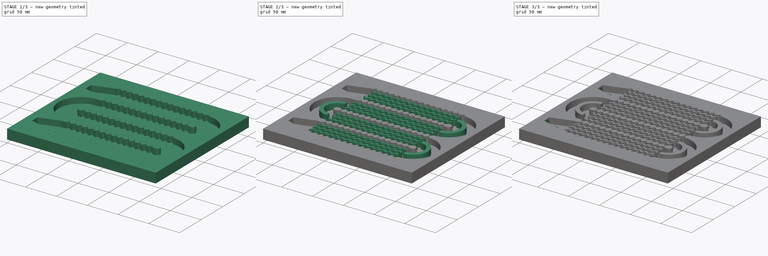
[diagram: build sequence overview — one tinted view per stage of 3, left to right]
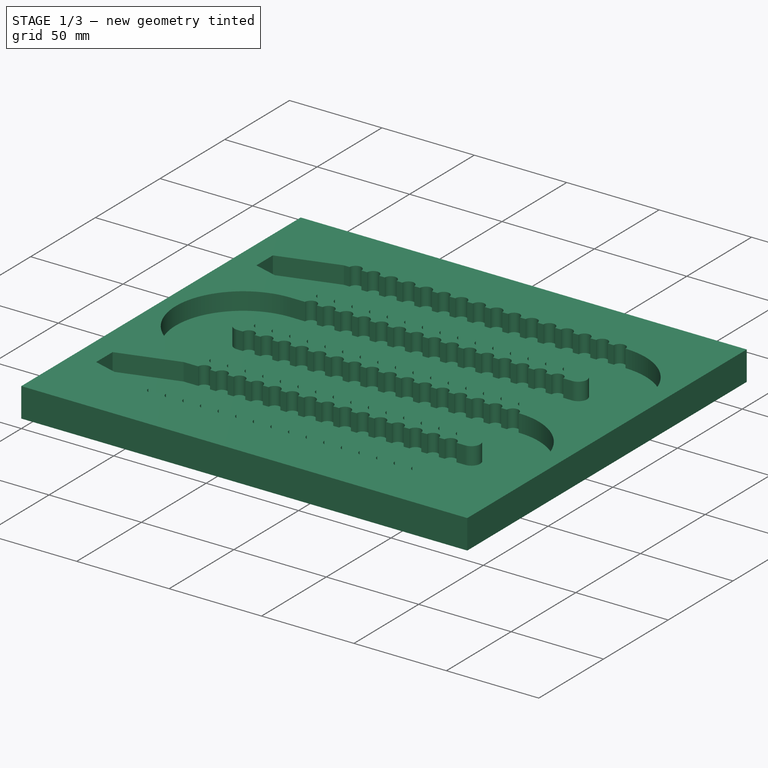
[diagram: stage 1 of 3 — iso view after this stage's code; geometry added in this stage tinted green]
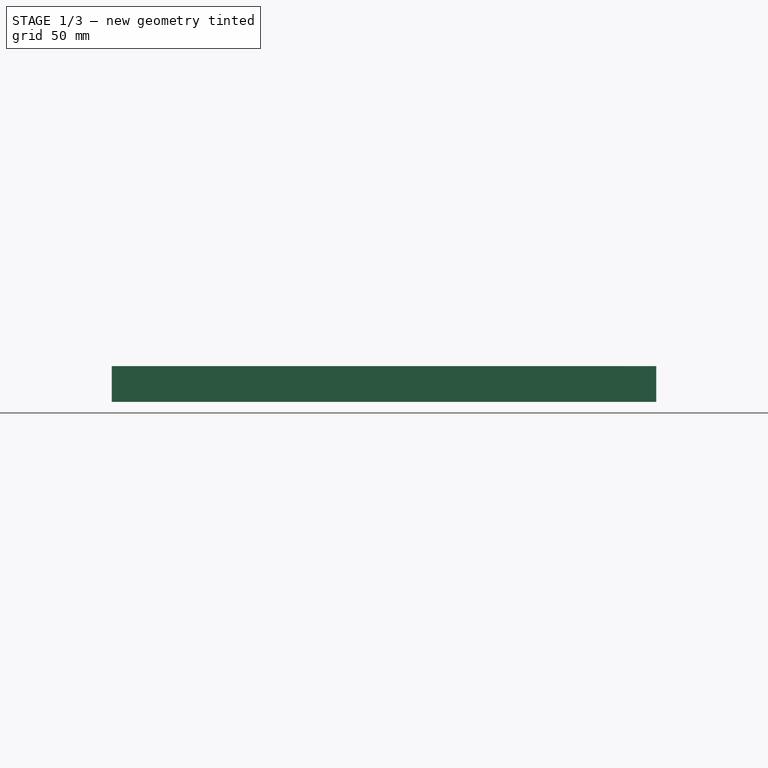
[diagram: stage 1 of 3 — front view after this stage's code; geometry added in this stage tinted green]
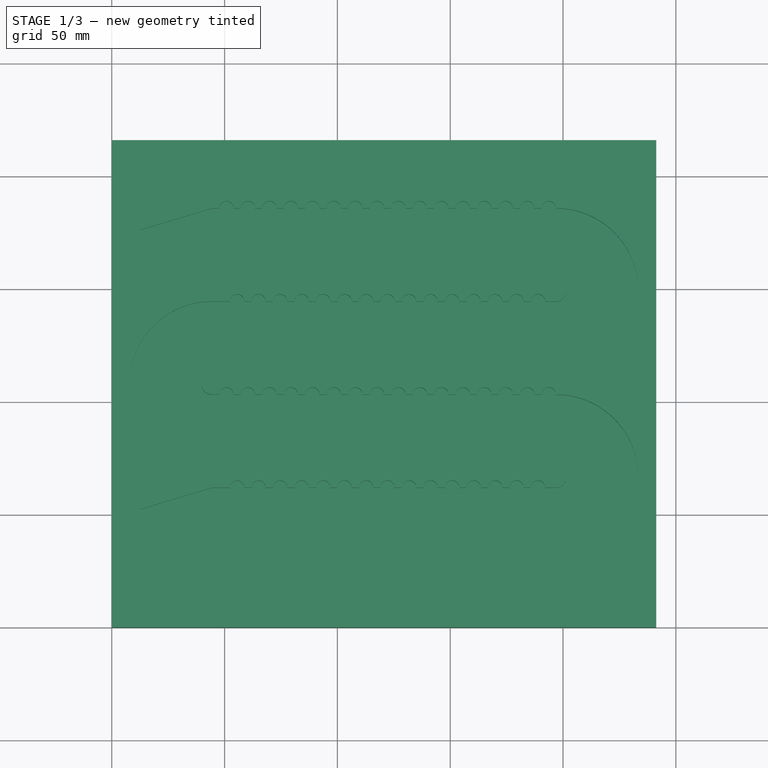
[diagram: stage 1 of 3 — top view after this stage's code; geometry added in this stage tinted green]
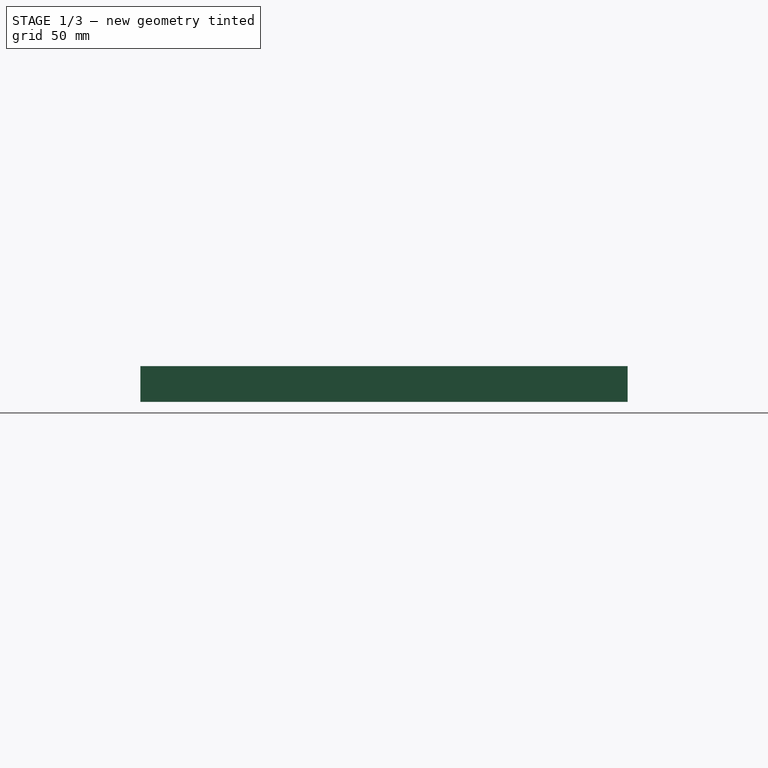
[diagram: stage 1 of 3 — right view after this stage's code; geometry added in this stage tinted green]
FCSTD DOCUMENT  (FreeCAD 0.19R24291 (Git))
Label: Heatsink plate
License: All rights reserved
LicenseURL: http://en.wikipedia.org/wiki/All_rights_reserved
objects: Sketcher::SketchObject×7, PartDesign::Pad×4, PartDesign::Pocket×2, PartDesign::Groove×1, PartDesign::Body×1
note: 22 computed .brp shape members not serialized (recipe doc carries the construction recipe); baked Part::Feature solids carry a one-line shape summary decoded from their .brp

FEATURE [Sketcher::SketchObject] Sketch
  FullyConstrained = true
  MapMode = 5
  Support = -> [XY_Plane]
  sketch-geometry (4):
    g0: LineSegment StartX=0 StartY=0 StartZ=0 EndX=241.3 EndY=0 EndZ=0
    g1: LineSegment StartX=241.3 StartY=0 StartZ=0 EndX=241.3 EndY=215.9 EndZ=0
    g2: LineSegment StartX=241.3 StartY=215.9 StartZ=0 EndX=0 EndY=215.9 EndZ=0
    g3: LineSegment StartX=0 StartY=215.9 StartZ=0 EndX=0 EndY=0 EndZ=0
  constraints (11):
    c: Coincident(g0,g1)
    c: Coincident(g1,g2)
    c: Coincident(g2,g3)
    c: Coincident(g3,g0)
    c: Horizontal(g0)
    c: Horizontal(g2)
    c: Vertical(g1)
    c: Vertical(g3)
    c: Coincident(g0,g-1)
    c: DistanceX(g0,g0) = 241.3
    c: DistanceY(g3,g3) = 215.9
FEATURE [PartDesign::Pad] Pad
  Direction = (1,1,1)
  Length = 15.875
  Length2 = 99.9998
  Profile = -> Sketch
  Type = 0
FEATURE [Sketcher::SketchObject] Sketch012
  FullyConstrained = true
  MapMode = 5
  Placement = pos=(0,0,15.875) rot=(0,0,1;0rad)
  sketch-geometry (264):
    g0: LineSegment StartX=44.45 StartY=30.1625 StartZ=0 EndX=47.625 EndY=30.1625 EndZ=0
    g1: LineSegment StartX=44.45 StartY=61.9125 StartZ=0 EndX=52.3875 EndY=61.9125 EndZ=0
    g2: LineSegment StartX=44.45 StartY=71.4375 StartZ=0 EndX=52.3875 EndY=71.4375 EndZ=0
    g3: LineSegment StartX=44.45 StartY=103.187 StartZ=0 EndX=47.625 EndY=103.187 EndZ=0
    g4: LineSegment StartX=44.45 StartY=112.712 StartZ=0 EndX=47.625 EndY=112.712 EndZ=0
    g5: LineSegment StartX=44.45 StartY=144.462 StartZ=0 EndX=52.3875 EndY=144.462 EndZ=0
    g6: LineSegment StartX=44.45 StartY=153.987 StartZ=0 EndX=52.3875 EndY=153.987 EndZ=0
    g7: LineSegment StartX=44.45 StartY=185.737 StartZ=0 EndX=47.625 EndY=185.737 EndZ=0
    g8: LineSegment StartX=12.7 StartY=52.3875 StartZ=0 EndX=12.7 EndY=39.6875 EndZ=0
    g9: LineSegment StartX=12.7 StartY=176.212 StartZ=0 EndX=12.7 EndY=163.512 EndZ=0
    g10: ArcOfCircle CenterX=196.85 CenterY=66.675 CenterZ=0 NormalX=0 NormalY=0 NormalZ=1 AngleXU=0 Radius=4.7625 StartAngle=4.71239 EndAngle=7.85398
    g11: ArcOfCircle CenterX=196.85 CenterY=149.225 CenterZ=0 NormalX=0 NormalY=0 NormalZ=1 AngleXU=0 Radius=4.7625 StartAngle=4.71239 EndAngle=7.85398
    g12: ArcOfCircle CenterX=196.85 CenterY=149.225 CenterZ=0 NormalX=0 NormalY=0 NormalZ=1 AngleXU=0 Radius=36.5125 StartAngle=4.71239 EndAngle=7.85398
    g13: ArcOfCircle CenterX=196.85 CenterY=66.675 CenterZ=0 NormalX=0 NormalY=0 NormalZ=1 AngleXU=0 Radius=36.5125 StartAngle=4.71239 EndAngle=7.85398
    g14: ArcOfCircle CenterX=44.45 CenterY=107.95 CenterZ=0 NormalX=0 NormalY=0 NormalZ=1 AngleXU=0 Radius=4.7625 StartAngle=1.5708 EndAngle=4.71239
    g15: ArcOfCircle CenterX=44.45 CenterY=107.95 CenterZ=0 NormalX=0 NormalY=0 NormalZ=1 AngleXU=0 Radius=36.5125 StartAngle=1.5708 EndAngle=4.71239
    g16: LineSegment StartX=12.7 StartY=176.212 StartZ=0 EndX=44.45 EndY=185.737 EndZ=0
    g17: LineSegment StartX=12.7 StartY=163.512 StartZ=0 EndX=44.45 EndY=153.987 EndZ=0
    g18: LineSegment StartX=12.7 StartY=52.3875 StartZ=0 EndX=44.45 EndY=61.9125 EndZ=0
    g19: LineSegment StartX=12.7 StartY=39.6875 StartZ=0 EndX=44.45 EndY=30.1625 EndZ=0
    g20: ArcOfCircle CenterX=50.8 CenterY=30.1625 CenterZ=0 NormalX=0 NormalY=0 NormalZ=1 AngleXU=0 Radius=3.175 StartAngle=3.14159 EndAngle=6.28319
    g21: ArcOfCircle CenterX=60.325 CenterY=30.1625 CenterZ=0 NormalX=0 NormalY=0 NormalZ=1 AngleXU=0 Radius=3.175 StartAngle=3.14159 EndAngle=6.28319
    g22: ArcOfCircle CenterX=69.85 CenterY=30.1625 CenterZ=0 NormalX=0 NormalY=0 NormalZ=1 AngleXU=0 Radius=3.175 StartAngle=3.14159 EndAngle=6.28319
    g23: ArcOfCircle CenterX=79.375 CenterY=30.1625 CenterZ=0 NormalX=0 NormalY=0 NormalZ=1 AngleXU=0 Radius=3.175 StartAngle=3.14159 EndAngle=6.28319
    g24: ArcOfCircle CenterX=88.9 CenterY=30.1625 CenterZ=0 NormalX=0 NormalY=0 NormalZ=1 AngleXU=0 Radius=3.175 StartAngle=3.14159 EndAngle=6.28319
    g25: ArcOfCircle CenterX=98.425 CenterY=30.1625 CenterZ=0 NormalX=0 NormalY=0 NormalZ=1 AngleXU=0 Radius=3.175 StartAngle=3.14159 EndAngle=6.28319
    g26: ArcOfCircle CenterX=107.95 CenterY=30.1625 CenterZ=0 NormalX=0 NormalY=0 NormalZ=1 AngleXU=0 Radius=3.175 StartAngle=3.14159 EndAngle=6.28319
    g27: ArcOfCircle CenterX=117.475 CenterY=30.1625 CenterZ=0 NormalX=0 NormalY=0 NormalZ=1 AngleXU=0 Radius=3.175 StartAngle=3.14159 EndAngle=6.28319
    g28: ArcOfCircle CenterX=127 CenterY=30.1625 CenterZ=0 NormalX=0 NormalY=0 NormalZ=1 AngleXU=0 Radius=3.175 StartAngle=3.14159 EndAngle=6.28319
    g29: ArcOfCircle CenterX=136.525 CenterY=30.1625 CenterZ=0 NormalX=0 NormalY=0 NormalZ=1 AngleXU=0 Radius=3.175 StartAngle=3.14159 EndAngle=6.28319
    g30: ArcOfCircle CenterX=146.05 CenterY=30.1625 CenterZ=0 NormalX=0 NormalY=0 NormalZ=1 AngleXU=0 Radius=3.175 StartAngle=3.14159 EndAngle=6.28319
    g31: ArcOfCircle CenterX=155.575 CenterY=30.1625 CenterZ=0 NormalX=0 NormalY=0 NormalZ=1 AngleXU=0 Radius=3.175 StartAngle=3.14159 EndAngle=6.28319
    g32: ArcOfCircle CenterX=165.1 CenterY=30.1625 CenterZ=0 NormalX=0 NormalY=0 NormalZ=1 AngleXU=0 Radius=3.175 StartAngle=3.14159 EndAngle=6.28319
    g33: ArcOfCircle CenterX=174.625 CenterY=30.1625 CenterZ=0 NormalX=0 NormalY=0 NormalZ=1 AngleXU=0 Radius=3.175 StartAngle=3.14159 EndAngle=6.28319
    g34: ArcOfCircle CenterX=184.15 CenterY=30.1625 CenterZ=0 NormalX=0 NormalY=0 NormalZ=1 AngleXU=0 Radius=3.175 StartAngle=3.14159 EndAngle=6.28319
    g35: ArcOfCircle CenterX=193.675 CenterY=30.1625 CenterZ=0 NormalX=0 NormalY=0 NormalZ=1 AngleXU=0 Radius=3.175 StartAngle=3.14159 EndAngle=6.28319
    g36: ArcOfCircle CenterX=55.5625 CenterY=61.9125 CenterZ=0 NormalX=0 NormalY=0 NormalZ=1 AngleXU=0 Radius=3.175 StartAngle=0 EndAngle=3.14159
    g37: ArcOfCircle CenterX=65.0875 CenterY=61.9125 CenterZ=0 NormalX=0 NormalY=0 NormalZ=1 AngleXU=0 Radius=3.175 StartAngle=0 EndAngle=3.14159
    g38: ArcOfCircle CenterX=74.6125 CenterY=61.9125 CenterZ=0 NormalX=0 NormalY=0 NormalZ=1 AngleXU=0 Radius=3.175 StartAngle=0 EndAngle=3.14159
    g39: ArcOfCircle CenterX=84.1375 CenterY=61.9125 CenterZ=0 NormalX=0 NormalY=0 NormalZ=1 AngleXU=0 Radius=3.175 StartAngle=0 EndAngle=3.14159
    g40: ArcOfCircle CenterX=93.6625 CenterY=61.9125 CenterZ=0 NormalX=0 NormalY=0 NormalZ=1 AngleXU=0 Radius=3.175 StartAngle=0 EndAngle=3.14159
    g41: ArcOfCircle CenterX=103.188 CenterY=61.9125 CenterZ=0 NormalX=0 NormalY=0 NormalZ=1 AngleXU=0 Radius=3.175 StartAngle=0 EndAngle=3.14159
    g42: ArcOfCircle CenterX=112.713 CenterY=61.9125 CenterZ=0 NormalX=0 NormalY=0 NormalZ=1 AngleXU=0 Radius=3.175 StartAngle=0 EndAngle=3.14159
    g43: ArcOfCircle CenterX=122.238 CenterY=61.9125 CenterZ=0 NormalX=0 NormalY=0 NormalZ=1 AngleXU=0 Radius=3.175 StartAngle=0 EndAngle=3.14159
    g44: ArcOfCircle CenterX=131.763 CenterY=61.9125 CenterZ=0 NormalX=0 NormalY=0 NormalZ=1 AngleXU=0 Radius=3.175 StartAngle=0 EndAngle=3.14159
    g45: ArcOfCircle CenterX=141.287 CenterY=61.9125 CenterZ=0 NormalX=0 NormalY=0 NormalZ=1 AngleXU=0 Radius=3.175 StartAngle=0 EndAngle=3.14159
    g46: ArcOfCircle CenterX=150.812 CenterY=61.9125 CenterZ=0 NormalX=0 NormalY=0 NormalZ=1 AngleXU=0 Radius=3.175 StartAngle=0 EndAngle=3.14159
    g47: ArcOfCircle CenterX=160.338 CenterY=61.9125 CenterZ=0 NormalX=0 NormalY=0 NormalZ=1 AngleXU=0 Radius=3.175 StartAngle=0 EndAngle=3.14159
    g48: ArcOfCircle CenterX=169.863 CenterY=61.9125 CenterZ=0 NormalX=0 NormalY=0 NormalZ=1 AngleXU=0 Radius=3.175 StartAngle=0 EndAngle=3.14159
    g49: ArcOfCircle CenterX=179.388 CenterY=61.9125 CenterZ=0 NormalX=0 NormalY=0 NormalZ=1 AngleXU=0 Radius=3.175 StartAngle=0 EndAngle=3.14159
    g50: ArcOfCircle CenterX=188.912 CenterY=61.9125 CenterZ=0 NormalX=0 NormalY=0 NormalZ=1 AngleXU=0 Radius=3.175 StartAngle=0 EndAngle=3.14159
    g51: ArcOfCircle CenterX=55.5625 CenterY=71.4375 CenterZ=0 NormalX=0 NormalY=0 NormalZ=1 AngleXU=0 Radius=3.175 StartAngle=3.14159 EndAngle=6.28319
    g52: ArcOfCircle CenterX=65.0875 CenterY=71.4375 CenterZ=0 NormalX=0 NormalY=0 NormalZ=1 AngleXU=0 Radius=3.175 StartAngle=3.14159 EndAngle=6.28319
    g53: ArcOfCircle CenterX=74.6125 CenterY=71.4375 CenterZ=0 NormalX=0 NormalY=0 NormalZ=1 AngleXU=0 Radius=3.175 StartAngle=3.14159 EndAngle=6.28319
    g54: ArcOfCircle CenterX=84.1375 CenterY=71.4375 CenterZ=0 NormalX=0 NormalY=0 NormalZ=1 AngleXU=0 Radius=3.175 StartAngle=3.14159 EndAngle=6.28319
    g55: ArcOfCircle CenterX=93.6625 CenterY=71.4375 CenterZ=0 NormalX=0 NormalY=0 NormalZ=1 AngleXU=0 Radius=3.175 StartAngle=3.14159 EndAngle=6.28319
    g56: ArcOfCircle CenterX=103.188 CenterY=71.4375 CenterZ=0 NormalX=0 NormalY=0 NormalZ=1 AngleXU=0 Radius=3.175 StartAngle=3.14159 EndAngle=6.28319
    g57: ArcOfCircle CenterX=112.713 CenterY=71.4375 CenterZ=0 NormalX=0 NormalY=0 NormalZ=1 AngleXU=0 Radius=3.175 StartAngle=3.14159 EndAngle=6.28319
    g58: ArcOfCircle CenterX=122.238 CenterY=71.4375 CenterZ=0 NormalX=0 NormalY=0 NormalZ=1 AngleXU=0 Radius=3.175 StartAngle=3.14159 EndAngle=6.28319
    g59: ArcOfCircle CenterX=131.763 CenterY=71.4375 CenterZ=0 NormalX=0 NormalY=0 NormalZ=1 AngleXU=0 Radius=3.175 StartAngle=3.14159 EndAngle=6.28319
    g60: ArcOfCircle CenterX=141.287 CenterY=71.4375 CenterZ=0 NormalX=0 NormalY=0 NormalZ=1 AngleXU=0 Radius=3.175 StartAngle=3.14159 EndAngle=6.28319
    g61: ArcOfCircle CenterX=150.812 CenterY=71.4375 CenterZ=0 NormalX=0 NormalY=0 NormalZ=1 AngleXU=0 Radius=3.175 StartAngle=3.14159 EndAngle=6.28319
    g62: ArcOfCircle CenterX=160.338 CenterY=71.4375 CenterZ=0 NormalX=0 NormalY=0 NormalZ=1 AngleXU=0 Radius=3.175 StartAngle=3.14159 EndAngle=6.28319
    g63: ArcOfCircle CenterX=169.863 CenterY=71.4375 CenterZ=0 NormalX=0 NormalY=0 NormalZ=1 AngleXU=0 Radius=3.175 StartAngle=3.14159 EndAngle=6.28319
    g64: ArcOfCircle CenterX=179.388 CenterY=71.4375 CenterZ=0 NormalX=0 NormalY=0 NormalZ=1 AngleXU=0 Radius=3.175 StartAngle=3.14159 EndAngle=6.28319
    g65: ArcOfCircle CenterX=188.912 CenterY=71.4375 CenterZ=0 NormalX=0 NormalY=0 NormalZ=1 AngleXU=0 Radius=3.175 StartAngle=3.14159 EndAngle=6.28319
    g66: ArcOfCircle CenterX=50.8 CenterY=185.737 CenterZ=0 NormalX=0 NormalY=0 NormalZ=1 AngleXU=0 Radius=3.175 StartAngle=0 EndAngle=3.14159
    g67: ArcOfCircle CenterX=60.325 CenterY=185.737 CenterZ=0 NormalX=0 NormalY=0 NormalZ=1 AngleXU=0 Radius=3.175 StartAngle=0 EndAngle=3.14159
    g68: ArcOfCircle CenterX=69.85 CenterY=185.737 CenterZ=0 NormalX=0 NormalY=0 NormalZ=1 AngleXU=0 Radius=3.175 StartAngle=0 EndAngle=3.14159
    g69: ArcOfCircle CenterX=79.375 CenterY=185.737 CenterZ=0 NormalX=0 NormalY=0 NormalZ=1 AngleXU=0 Radius=3.175 StartAngle=0 EndAngle=3.14159
    g70: ArcOfCircle CenterX=88.9 CenterY=185.737 CenterZ=0 NormalX=0 NormalY=0 NormalZ=1 AngleXU=0 Radius=3.175 StartAngle=0 EndAngle=3.14159
    g71: ArcOfCircle CenterX=98.425 CenterY=185.737 CenterZ=0 NormalX=0 NormalY=0 NormalZ=1 AngleXU=0 Radius=3.175 StartAngle=0 EndAngle=3.14159
    g72: ArcOfCircle CenterX=107.95 CenterY=185.737 CenterZ=0 NormalX=0 NormalY=0 NormalZ=1 AngleXU=0 Radius=3.175 StartAngle=0 EndAngle=3.14159
    g73: ArcOfCircle CenterX=117.475 CenterY=185.737 CenterZ=0 NormalX=0 NormalY=0 NormalZ=1 AngleXU=0 Radius=3.175 StartAngle=0 EndAngle=3.14159
    g74: ArcOfCircle CenterX=127 CenterY=185.737 CenterZ=0 NormalX=0 NormalY=0 NormalZ=1 AngleXU=0 Radius=3.175 StartAngle=0 EndAngle=3.14159
    g75: ArcOfCircle CenterX=136.525 CenterY=185.737 CenterZ=0 NormalX=0 NormalY=0 NormalZ=1 AngleXU=0 Radius=3.175 StartAngle=0 EndAngle=3.14159
    g76: ArcOfCircle CenterX=146.05 CenterY=185.737 CenterZ=0 NormalX=0 NormalY=0 NormalZ=1 AngleXU=0 Radius=3.175 StartAngle=0 EndAngle=3.14159
    g77: ArcOfCircle CenterX=155.575 CenterY=185.737 CenterZ=0 NormalX=0 NormalY=0 NormalZ=1 AngleXU=0 Radius=3.175 StartAngle=0 EndAngle=3.14159
    g78: ArcOfCircle CenterX=165.1 CenterY=185.737 CenterZ=0 NormalX=0 NormalY=0 NormalZ=1 AngleXU=0 Radius=3.175 StartAngle=0 EndAngle=3.14159
    g79: ArcOfCircle CenterX=174.625 CenterY=185.737 CenterZ=0 NormalX=0 NormalY=0 NormalZ=1 AngleXU=0 Radius=3.175 StartAngle=0 EndAngle=3.14159
    g80: ArcOfCircle CenterX=184.15 CenterY=185.737 CenterZ=0 NormalX=0 NormalY=0 NormalZ=1 AngleXU=0 Radius=3.175 StartAngle=0 EndAngle=3.14159
    g81: ArcOfCircle CenterX=193.675 CenterY=185.737 CenterZ=0 NormalX=0 NormalY=0 NormalZ=1 AngleXU=0 Radius=3.175 StartAngle=-4.345e-12 EndAngle=3.14159
    g82: ArcOfCircle CenterX=55.5625 CenterY=153.987 CenterZ=0 NormalX=0 NormalY=0 NormalZ=1 AngleXU=0 Radius=3.175 StartAngle=3.14159 EndAngle=6.28319
    g83: ArcOfCircle CenterX=65.0875 CenterY=153.987 CenterZ=0 NormalX=0 NormalY=0 NormalZ=1 AngleXU=0 Radius=3.175 StartAngle=3.14159 EndAngle=6.28319
    g84: ArcOfCircle CenterX=74.6125 CenterY=153.987 CenterZ=0 NormalX=0 NormalY=0 NormalZ=1 AngleXU=0 Radius=3.175 StartAngle=3.14159 EndAngle=6.28319
    g85: ArcOfCircle CenterX=84.1375 CenterY=153.987 CenterZ=0 NormalX=0 NormalY=0 NormalZ=1 AngleXU=0 Radius=3.175 StartAngle=3.14159 EndAngle=6.28319
    g86: ArcOfCircle CenterX=93.6625 CenterY=153.987 CenterZ=0 NormalX=0 NormalY=0 NormalZ=1 AngleXU=0 Radius=3.175 StartAngle=3.14159 EndAngle=6.28319
    g87: ArcOfCircle CenterX=103.188 CenterY=153.987 CenterZ=0 NormalX=0 NormalY=0 NormalZ=1 AngleXU=0 Radius=3.175 StartAngle=3.14159 EndAngle=6.28319
    g88: ArcOfCircle CenterX=112.713 CenterY=153.987 CenterZ=0 NormalX=0 NormalY=0 NormalZ=1 AngleXU=0 Radius=3.175 StartAngle=3.14159 EndAngle=6.28319
    g89: ArcOfCircle CenterX=122.238 CenterY=153.987 CenterZ=0 NormalX=0 NormalY=0 NormalZ=1 AngleXU=0 Radius=3.175 StartAngle=3.14159 EndAngle=6.28319
    g90: ArcOfCircle CenterX=131.763 CenterY=153.987 CenterZ=0 NormalX=0 NormalY=0 NormalZ=1 AngleXU=0 Radius=3.175 StartAngle=3.14159 EndAngle=6.28319
    g91: ArcOfCircle CenterX=141.287 CenterY=153.987 CenterZ=0 NormalX=0 NormalY=0 NormalZ=1 AngleXU=0 Radius=3.175 StartAngle=3.14159 EndAngle=6.28319
    g92: ArcOfCircle CenterX=150.812 CenterY=153.987 CenterZ=0 NormalX=0 NormalY=0 NormalZ=1 AngleXU=0 Radius=3.175 StartAngle=3.14159 EndAngle=6.28319
    g93: ArcOfCircle CenterX=160.338 CenterY=153.987 CenterZ=0 NormalX=0 NormalY=0 NormalZ=1 AngleXU=0 Radius=3.175 StartAngle=3.14159 EndAngle=6.28319
    g94: ArcOfCircle CenterX=169.863 CenterY=153.987 CenterZ=0 NormalX=0 NormalY=0 NormalZ=1 AngleXU=0 Radius=3.175 StartAngle=3.14159 EndAngle=6.28319
    g95: ArcOfCircle CenterX=179.388 CenterY=153.987 CenterZ=0 NormalX=0 NormalY=0 NormalZ=1 AngleXU=0 Radius=3.175 StartAngle=3.14159 EndAngle=6.28319
    g96: ArcOfCircle CenterX=188.912 CenterY=153.987 CenterZ=0 NormalX=0 NormalY=0 NormalZ=1 AngleXU=0 Radius=3.175 StartAngle=3.14159 EndAngle=6.28319
    g97: ArcOfCircle CenterX=188.912 CenterY=144.462 CenterZ=0 NormalX=0 NormalY=0 NormalZ=1 AngleXU=0 Radius=3.175 StartAngle=0 EndAngle=3.14159
    g98: ArcOfCircle CenterX=179.388 CenterY=144.462 CenterZ=0 NormalX=0 NormalY=0 NormalZ=1 AngleXU=0 Radius=3.175 StartAngle=0 EndAngle=3.14159
    g99: ArcOfCircle CenterX=169.863 CenterY=144.462 CenterZ=0 NormalX=0 NormalY=0 NormalZ=1 AngleXU=0 Radius=3.175 StartAngle=0 EndAngle=3.14159
    g100: ArcOfCircle CenterX=160.338 CenterY=144.462 CenterZ=0 NormalX=0 NormalY=0 NormalZ=1 AngleXU=0 Radius=3.175 StartAngle=0 EndAngle=3.14159
    g101: ArcOfCircle CenterX=150.812 CenterY=144.462 CenterZ=0 NormalX=0 NormalY=0 NormalZ=1 AngleXU=0 Radius=3.175 StartAngle=0 EndAngle=3.14159
    g102: ArcOfCircle CenterX=141.287 CenterY=144.462 CenterZ=0 NormalX=0 NormalY=0 NormalZ=1 AngleXU=0 Radius=3.175 StartAngle=0 EndAngle=3.14159
    g103: ArcOfCircle CenterX=131.763 CenterY=144.462 CenterZ=0 NormalX=0 NormalY=0 NormalZ=1 AngleXU=0 Radius=3.175 StartAngle=0 EndAngle=3.14159
    g104: ArcOfCircle CenterX=122.238 CenterY=144.462 CenterZ=0 NormalX=0 NormalY=0 NormalZ=1 AngleXU=0 Radius=3.175 StartAngle=0 EndAngle=3.14159
    g105: ArcOfCircle CenterX=112.713 CenterY=144.462 CenterZ=0 NormalX=0 NormalY=0 NormalZ=1 AngleXU=0 Radius=3.175 StartAngle=0 EndAngle=3.14159
    g106: ArcOfCircle CenterX=103.188 CenterY=144.462 CenterZ=0 NormalX=0 NormalY=0 NormalZ=1 AngleXU=0 Radius=3.175 StartAngle=0 EndAngle=3.14159
    g107: ArcOfCircle CenterX=93.6625 CenterY=144.462 CenterZ=0 NormalX=0 NormalY=0 NormalZ=1 AngleXU=0 Radius=3.175 StartAngle=2.3e-15 EndAngle=3.14159
    g108: ArcOfCircle CenterX=84.1375 CenterY=144.462 CenterZ=0 NormalX=0 NormalY=0 NormalZ=1 AngleXU=0 Radius=3.175 StartAngle=0 EndAngle=3.14159
    g109: ArcOfCircle CenterX=74.6125 CenterY=144.462 CenterZ=0 NormalX=0 NormalY=0 NormalZ=1 AngleXU=0 Radius=3.175 StartAngle=0 EndAngle=3.14159
    g110: ArcOfCircle CenterX=65.0875 CenterY=144.462 CenterZ=0 NormalX=0 NormalY=0 NormalZ=1 AngleXU=0 Radius=3.175 StartAngle=0 EndAngle=3.14159
    g111: ArcOfCircle CenterX=55.5625 CenterY=144.462 CenterZ=0 NormalX=0 NormalY=0 NormalZ=1 AngleXU=0 Radius=3.175 StartAngle=0 EndAngle=3.14159
    g112: ArcOfCircle CenterX=50.8 CenterY=103.187 CenterZ=0 NormalX=0 NormalY=0 NormalZ=1 AngleXU=0 Radius=3.175 StartAngle=-1.8e-15 EndAngle=3.14159
    g113: ArcOfCircle CenterX=50.8 CenterY=112.712 CenterZ=0 NormalX=0 NormalY=0 NormalZ=1 AngleXU=0 Radius=3.175 StartAngle=3.14159 EndAngle=6.28319
    g114: ArcOfCircle CenterX=60.325 CenterY=103.187 CenterZ=0 NormalX=0 NormalY=0 NormalZ=1 AngleXU=0 Radius=3.175 StartAngle=0 EndAngle=3.14159
    g115: ArcOfCircle CenterX=69.85 CenterY=103.187 CenterZ=0 NormalX=0 NormalY=0 NormalZ=1 AngleXU=0 Radius=3.175 StartAngle=0 EndAngle=3.14159
    g116: ArcOfCircle CenterX=79.375 CenterY=103.187 CenterZ=0 NormalX=0 NormalY=0 NormalZ=1 AngleXU=0 Radius=3.175 StartAngle=0 EndAngle=3.14159
    g117: ArcOfCircle CenterX=88.9 CenterY=103.187 CenterZ=0 NormalX=0 NormalY=0 NormalZ=1 AngleXU=0 Radius=3.175 StartAngle=0 EndAngle=3.14159
    g118: ArcOfCircle CenterX=98.425 CenterY=103.187 CenterZ=0 NormalX=0 NormalY=0 NormalZ=1 AngleXU=0 Radius=3.175 StartAngle=0 EndAngle=3.14159
    g119: ArcOfCircle CenterX=107.95 CenterY=103.187 CenterZ=0 NormalX=0 NormalY=0 NormalZ=1 AngleXU=0 Radius=3.175 StartAngle=0 EndAngle=3.14159
    g120: ArcOfCircle CenterX=117.475 CenterY=103.187 CenterZ=0 NormalX=0 NormalY=0 NormalZ=1 AngleXU=0 Radius=3.175 StartAngle=0 EndAngle=3.14159
    g121: ArcOfCircle CenterX=127 CenterY=103.187 CenterZ=0 NormalX=0 NormalY=0 NormalZ=1 AngleXU=0 Radius=3.175 StartAngle=0 EndAngle=3.14159
    g122: ArcOfCircle CenterX=136.525 CenterY=103.187 CenterZ=0 NormalX=0 NormalY=0 NormalZ=1 AngleXU=0 Radius=3.175 StartAngle=0 EndAngle=3.14159
    g123: ArcOfCircle CenterX=146.05 CenterY=103.187 CenterZ=0 NormalX=0 NormalY=0 NormalZ=1 AngleXU=0 Radius=3.175 StartAngle=0 EndAngle=3.14159
    g124: ArcOfCircle CenterX=155.575 CenterY=103.187 CenterZ=0 NormalX=0 NormalY=0 NormalZ=1 AngleXU=0 Radius=3.175 StartAngle=0 EndAngle=3.14159
    g125: ArcOfCircle CenterX=165.1 CenterY=103.187 CenterZ=0 NormalX=0 NormalY=0 NormalZ=1 AngleXU=0 Radius=3.175 StartAngle=0 EndAngle=3.14159
    g126: ArcOfCircle CenterX=174.625 CenterY=103.187 CenterZ=0 NormalX=0 NormalY=0 NormalZ=1 AngleXU=0 Radius=3.175 StartAngle=0 EndAngle=3.14159
    g127: ArcOfCircle CenterX=184.15 CenterY=103.187 CenterZ=0 NormalX=0 NormalY=0 NormalZ=1 AngleXU=0 Radius=3.175 StartAngle=0 EndAngle=3.14159
    g128: ArcOfCircle CenterX=193.675 CenterY=103.187 CenterZ=0 NormalX=0 NormalY=0 NormalZ=1 AngleXU=0 Radius=3.175 StartAngle=8.4221e-12 EndAngle=3.14159
    g129: ArcOfCircle CenterX=193.675 CenterY=112.712 CenterZ=0 NormalX=0 NormalY=0 NormalZ=1 AngleXU=0 Radius=3.175 StartAngle=3.14159 EndAngle=6.28319
    g130: ArcOfCircle CenterX=184.15 CenterY=112.712 CenterZ=0 NormalX=0 NormalY=0 NormalZ=1 AngleXU=0 Radius=3.175 StartAngle=3.14159 EndAngle=6.28319
    g131: ArcOfCircle CenterX=174.625 CenterY=112.712 CenterZ=0 NormalX=0 NormalY=0 NormalZ=1 AngleXU=0 Radius=3.175 StartAngle=3.14159 EndAngle=6.28319
    g132: ArcOfCircle CenterX=165.1 CenterY=112.712 CenterZ=0 NormalX=0 NormalY=0 NormalZ=1 AngleXU=0 Radius=3.175 StartAngle=3.14159 EndAngle=6.28319
    g133: ArcOfCircle CenterX=155.575 CenterY=112.712 CenterZ=0 NormalX=0 NormalY=0 NormalZ=1 AngleXU=0 Radius=3.175 StartAngle=3.14159 EndAngle=6.28319
    g134: ArcOfCircle CenterX=146.05 CenterY=112.712 CenterZ=0 NormalX=0 NormalY=0 NormalZ=1 AngleXU=0 Radius=3.175 StartAngle=3.14159 EndAngle=6.28319
    g135: ArcOfCircle CenterX=136.525 CenterY=112.712 CenterZ=0 NormalX=0 NormalY=0 NormalZ=1 AngleXU=0 Radius=3.175 StartAngle=3.14159 EndAngle=6.28319
    g136: ArcOfCircle CenterX=127 CenterY=112.712 CenterZ=0 NormalX=0 NormalY=0 NormalZ=1 AngleXU=0 Radius=3.175 StartAngle=3.14159 EndAngle=6.28319
    g137: ArcOfCircle CenterX=117.475 CenterY=112.712 CenterZ=0 NormalX=0 NormalY=0 NormalZ=1 AngleXU=0 Radius=3.175 StartAngle=3.14159 EndAngle=6.28319
    g138: ArcOfCircle CenterX=107.95 CenterY=112.712 CenterZ=0 NormalX=0 NormalY=0 NormalZ=1 AngleXU=0 Radius=3.175 StartAngle=3.14159 EndAngle=6.28319
    g139: ArcOfCircle CenterX=98.425 CenterY=112.712 CenterZ=0 NormalX=0 NormalY=0 NormalZ=1 AngleXU=0 Radius=3.175 StartAngle=3.14159 EndAngle=6.28319
    g140: ArcOfCircle CenterX=88.9 CenterY=112.712 CenterZ=0 NormalX=0 NormalY=0 NormalZ=1 AngleXU=0 Radius=3.175 StartAngle=3.14159 EndAngle=6.28319
    g141: ArcOfCircle CenterX=79.375 CenterY=112.712 CenterZ=0 NormalX=0 NormalY=0 NormalZ=1 AngleXU=0 Radius=3.175 StartAngle=3.14159 EndAngle=6.28319
    g142: ArcOfCircle CenterX=69.85 CenterY=112.712 CenterZ=0 NormalX=0 NormalY=0 NormalZ=1 AngleXU=0 Radius=3.175 StartAngle=3.14159 EndAngle=6.28319
    g143: ArcOfCircle CenterX=60.325 CenterY=112.712 CenterZ=0 NormalX=0 NormalY=0 NormalZ=1 AngleXU=0 Radius=3.175 StartAngle=3.14159 EndAngle=6.28319
    g144: LineSegment StartX=53.975 StartY=30.1625 StartZ=0 EndX=57.15 EndY=30.1625 EndZ=0
    g145: LineSegment StartX=63.5 StartY=30.1625 StartZ=0 EndX=66.675 EndY=30.1625 EndZ=0
    g146: LineSegment StartX=73.025 StartY=30.1625 StartZ=0 EndX=76.2 EndY=30.1625 EndZ=0
    g147: LineSegment StartX=82.55 StartY=30.1625 StartZ=0 EndX=85.725 EndY=30.1625 EndZ=0
    g148: LineSegment StartX=92.075 StartY=30.1625 StartZ=0 EndX=95.25 EndY=30.1625 EndZ=0
    g149: LineSegment StartX=101.6 StartY=30.1625 StartZ=0 EndX=104.775 EndY=30.1625 EndZ=0
    g150: LineSegment StartX=111.125 StartY=30.1625 StartZ=0 EndX=114.3 EndY=30.1625 EndZ=0
    g151: LineSegment StartX=120.65 StartY=30.1625 StartZ=0 EndX=123.825 EndY=30.1625 EndZ=0
    g152: LineSegment StartX=130.175 StartY=30.1625 StartZ=0 EndX=133.35 EndY=30.1625 EndZ=0
    g153: LineSegment StartX=139.7 StartY=30.1625 StartZ=0 EndX=142.875 EndY=30.1625 EndZ=0
    g154: LineSegment StartX=149.225 StartY=30.1625 StartZ=0 EndX=152.4 EndY=30.1625 EndZ=0
    g155: LineSegment StartX=158.75 StartY=30.1625 StartZ=0 EndX=161.925 EndY=30.1625 EndZ=0
    g156: LineSegment StartX=168.275 StartY=30.1625 StartZ=0 EndX=171.45 EndY=30.1625 EndZ=0
    g157: LineSegment StartX=177.8 StartY=30.1625 StartZ=0 EndX=180.975 EndY=30.1625 EndZ=0
    g158: LineSegment StartX=187.325 StartY=30.1625 StartZ=0 EndX=190.5 EndY=30.1625 EndZ=0
    g159: LineSegment StartX=58.7375 StartY=61.9125 StartZ=0 EndX=61.9125 EndY=61.9125 EndZ=0
    g160: LineSegment StartX=68.2625 StartY=61.9125 StartZ=0 EndX=71.4375 EndY=61.9125 EndZ=0
    g161: LineSegment StartX=77.7875 StartY=61.9125 StartZ=0 EndX=80.9625 EndY=61.9125 EndZ=0
    g162: LineSegment StartX=87.3125 StartY=61.9125 StartZ=0 EndX=90.4875 EndY=61.9125 EndZ=0
    g163: LineSegment StartX=96.8375 StartY=61.9125 StartZ=0 EndX=100.013 EndY=61.9125 EndZ=0
    g164: LineSegment StartX=58.7375 StartY=71.4375 StartZ=0 EndX=61.9125 EndY=71.4375 EndZ=0
    g165: LineSegment StartX=68.2625 StartY=71.4375 StartZ=0 EndX=71.4375 EndY=71.4375 EndZ=0
    g166: LineSegment StartX=77.7875 StartY=71.4375 StartZ=0 EndX=80.9625 EndY=71.4375 EndZ=0
    g167: LineSegment StartX=87.3125 StartY=71.4375 StartZ=0 EndX=90.4875 EndY=71.4375 EndZ=0
    g168: LineSegment StartX=96.8375 StartY=71.4375 StartZ=0 EndX=100.013 EndY=71.4375 EndZ=0
    g169: LineSegment StartX=106.363 StartY=71.4375 StartZ=0 EndX=109.538 EndY=71.4375 EndZ=0
    g170: LineSegment StartX=106.363 StartY=61.9125 StartZ=0 EndX=109.538 EndY=61.9125 EndZ=0
    g171: LineSegment StartX=115.888 StartY=61.9125 StartZ=0 EndX=119.062 EndY=61.9125 EndZ=0
    g172: LineSegment StartX=125.413 StartY=61.9125 StartZ=0 EndX=128.588 EndY=61.9125 EndZ=0
    g173: LineSegment StartX=134.938 StartY=61.9125 StartZ=0 EndX=138.113 EndY=61.9125 EndZ=0
    g174: LineSegment StartX=144.463 StartY=61.9125 StartZ=0 EndX=147.638 EndY=61.9125 EndZ=0
    g175: LineSegment StartX=115.888 StartY=71.4375 StartZ=0 EndX=119.062 EndY=71.4375 EndZ=0
    g176: LineSegment StartX=125.413 StartY=71.4375 StartZ=0 EndX=128.588 EndY=71.4375 EndZ=0
    g177: LineSegment StartX=134.938 StartY=71.4375 StartZ=0 EndX=138.113 EndY=71.4375 EndZ=0
    g178: LineSegment StartX=144.463 StartY=71.4375 StartZ=0 EndX=147.638 EndY=71.4375 EndZ=0
    g179: LineSegment StartX=153.988 StartY=71.4375 StartZ=0 EndX=157.162 EndY=71.4375 EndZ=0
    g180: LineSegment StartX=163.513 StartY=71.4375 StartZ=0 EndX=166.688 EndY=71.4375 EndZ=0
    g181: LineSegment StartX=173.037 StartY=71.4375 StartZ=0 EndX=176.213 EndY=71.4375 EndZ=0
    g182: LineSegment StartX=182.562 StartY=71.4375 StartZ=0 EndX=185.738 EndY=71.4375 EndZ=0
    g183: LineSegment StartX=192.088 StartY=71.4375 StartZ=0 EndX=196.85 EndY=71.4375 EndZ=0
    g184: LineSegment StartX=192.088 StartY=61.9125 StartZ=0 EndX=196.85 EndY=61.9125 EndZ=0
    g185: LineSegment StartX=182.562 StartY=61.9125 StartZ=0 EndX=185.738 EndY=61.9125 EndZ=0
    g186: LineSegment StartX=173.037 StartY=61.9125 StartZ=0 EndX=176.213 EndY=61.9125 EndZ=0
    g187: LineSegment StartX=163.513 StartY=61.9125 StartZ=0 EndX=166.688 EndY=61.9125 EndZ=0
    g188: LineSegment StartX=153.988 StartY=61.9125 StartZ=0 EndX=157.162 EndY=61.9125 EndZ=0
    g189: LineSegment StartX=53.975 StartY=112.712 StartZ=0 EndX=57.15 EndY=112.712 EndZ=0
    g190: LineSegment StartX=63.5 StartY=112.712 StartZ=0 EndX=66.675 EndY=112.712 EndZ=0
    g191: LineSegment StartX=73.025 StartY=112.712 StartZ=0 EndX=76.2 EndY=112.712 EndZ=0
    g192: LineSegment StartX=82.55 StartY=112.712 StartZ=0 EndX=85.725 EndY=112.712 EndZ=0
    g193: LineSegment StartX=92.075 StartY=112.712 StartZ=0 EndX=95.25 EndY=112.712 EndZ=0
    g194: LineSegment StartX=101.6 StartY=112.712 StartZ=0 EndX=104.775 EndY=112.712 EndZ=0
    g195: LineSegment StartX=53.975 StartY=103.187 StartZ=0 EndX=57.15 EndY=103.187 EndZ=0
    g196: LineSegment StartX=63.5 StartY=103.187 StartZ=0 EndX=66.675 EndY=103.187 EndZ=0
    g197: LineSegment StartX=73.025 StartY=103.187 StartZ=0 EndX=76.2 EndY=103.187 EndZ=0
    g198: LineSegment StartX=82.55 StartY=103.187 StartZ=0 EndX=85.725 EndY=103.187 EndZ=0
    g199: LineSegment StartX=92.075 StartY=103.187 StartZ=0 EndX=95.25 EndY=103.187 EndZ=0
    g200: LineSegment StartX=101.6 StartY=103.187 StartZ=0 EndX=104.775 EndY=103.187 EndZ=0
    g201: LineSegment StartX=111.125 StartY=112.712 StartZ=0 EndX=114.3 EndY=112.712 EndZ=0
    g202: LineSegment StartX=120.65 StartY=112.712 StartZ=0 EndX=123.825 EndY=112.712 EndZ=0
    g203: LineSegment StartX=130.175 StartY=112.712 StartZ=0 EndX=133.35 EndY=112.712 EndZ=0
    g204: LineSegment StartX=139.7 StartY=112.712 StartZ=0 EndX=142.875 EndY=112.712 EndZ=0
    g205: LineSegment StartX=149.225 StartY=112.712 StartZ=0 EndX=152.4 EndY=112.712 EndZ=0
    g206: LineSegment StartX=158.75 StartY=112.712 StartZ=0 EndX=161.925 EndY=112.712 EndZ=0
    g207: LineSegment StartX=158.75 StartY=103.187 StartZ=0 EndX=161.925 EndY=103.187 EndZ=0
    g208: LineSegment StartX=111.125 StartY=103.187 StartZ=0 EndX=114.3 EndY=103.187 EndZ=0
    g209: LineSegment StartX=120.65 StartY=103.187 StartZ=0 EndX=123.825 EndY=103.187 EndZ=0
    g210: LineSegment StartX=130.175 StartY=103.187 StartZ=0 EndX=133.35 EndY=103.187 EndZ=0
    g211: LineSegment StartX=139.7 StartY=103.187 StartZ=0 EndX=142.875 EndY=103.187 EndZ=0
    g212: LineSegment StartX=149.225 StartY=103.187 StartZ=0 EndX=152.4 EndY=103.187 EndZ=0
    g213: LineSegment StartX=168.275 StartY=112.712 StartZ=0 EndX=171.45 EndY=112.712 EndZ=0
    g214: LineSegment StartX=177.8 StartY=112.712 StartZ=0 EndX=180.975 EndY=112.712 EndZ=0
    g215: LineSegment StartX=187.325 StartY=112.712 StartZ=0 EndX=190.5 EndY=112.712 EndZ=0
    g216: LineSegment StartX=187.325 StartY=103.187 StartZ=0 EndX=190.5 EndY=103.187 EndZ=0
    g217: LineSegment StartX=177.8 StartY=103.187 StartZ=0 EndX=180.975 EndY=103.187 EndZ=0
    g218: LineSegment StartX=168.275 StartY=103.187 StartZ=0 EndX=171.45 EndY=103.187 EndZ=0
    g219: LineSegment StartX=58.7375 StartY=153.987 StartZ=0 EndX=61.9125 EndY=153.987 EndZ=0
    g220: LineSegment StartX=68.2625 StartY=153.987 StartZ=0 EndX=71.4375 EndY=153.987 EndZ=0
    g221: LineSegment StartX=77.7875 StartY=153.987 StartZ=0 EndX=80.9625 EndY=153.987 EndZ=0
    g222: LineSegment StartX=87.3125 StartY=153.987 StartZ=0 EndX=90.4875 EndY=153.987 EndZ=0
    g223: LineSegment StartX=96.8375 StartY=153.987 StartZ=0 EndX=100.013 EndY=153.987 EndZ=0
    g224: LineSegment StartX=96.8375 StartY=144.462 StartZ=0 EndX=100.013 EndY=144.462 EndZ=0
    g225: LineSegment StartX=58.7375 StartY=144.462 StartZ=0 EndX=61.9125 EndY=144.462 EndZ=0
    g226: LineSegment StartX=68.2625 StartY=144.462 StartZ=0 EndX=71.4375 EndY=144.462 EndZ=0
    g227: LineSegment StartX=77.7875 StartY=144.462 StartZ=0 EndX=80.9625 EndY=144.462 EndZ=0
    g228: LineSegment StartX=87.3125 StartY=144.462 StartZ=0 EndX=90.4875 EndY=144.462 EndZ=0
    g229: LineSegment StartX=106.363 StartY=144.462 StartZ=0 EndX=109.538 EndY=144.462 EndZ=0
    g230: LineSegment StartX=106.363 StartY=153.987 StartZ=0 EndX=109.538 EndY=153.987 EndZ=0
    g231: LineSegment StartX=115.888 StartY=153.987 StartZ=0 EndX=119.062 EndY=153.987 EndZ=0
    g232: LineSegment StartX=125.413 StartY=153.987 StartZ=0 EndX=128.588 EndY=153.987 EndZ=0
    g233: LineSegment StartX=134.938 StartY=153.987 StartZ=0 EndX=138.113 EndY=153.987 EndZ=0
    g234: LineSegment StartX=144.463 StartY=153.987 StartZ=0 EndX=147.638 EndY=153.987 EndZ=0
    g235: LineSegment StartX=153.988 StartY=153.987 StartZ=0 EndX=157.162 EndY=153.987 EndZ=0
    g236: LineSegment StartX=115.888 StartY=144.462 StartZ=0 EndX=119.062 EndY=144.462 EndZ=0
    g237: LineSegment StartX=125.413 StartY=144.462 StartZ=0 EndX=128.588 EndY=144.462 EndZ=0
    g238: LineSegment StartX=134.938 StartY=144.462 StartZ=0 EndX=138.113 EndY=144.462 EndZ=0
    g239: LineSegment StartX=144.463 StartY=144.462 StartZ=0 EndX=147.638 EndY=144.462 EndZ=0
    g240: LineSegment StartX=153.988 StartY=144.462 StartZ=0 EndX=157.162 EndY=144.462 EndZ=0
    g241: LineSegment StartX=163.513 StartY=144.462 StartZ=0 EndX=166.688 EndY=144.462 EndZ=0
    g242: LineSegment StartX=173.037 StartY=144.462 StartZ=0 EndX=176.213 EndY=144.462 EndZ=0
    g243: LineSegment StartX=173.037 StartY=153.987 StartZ=0 EndX=176.213 EndY=153.987 EndZ=0
    g244: LineSegment StartX=163.513 StartY=153.987 StartZ=0 EndX=166.688 EndY=153.987 EndZ=0
    g245: LineSegment StartX=182.562 StartY=153.987 StartZ=0 EndX=185.738 EndY=153.987 EndZ=0
    g246: LineSegment StartX=192.088 StartY=153.987 StartZ=0 EndX=196.85 EndY=153.987 EndZ=0
    g247: LineSegment StartX=192.088 StartY=144.462 StartZ=0 EndX=196.85 EndY=144.462 EndZ=0
    g248: LineSegment StartX=182.562 StartY=144.462 StartZ=0 EndX=185.738 EndY=144.462 EndZ=0
    g249: LineSegment StartX=53.975 StartY=185.737 StartZ=0 EndX=57.15 EndY=185.737 EndZ=0
    g250: LineSegment StartX=63.5 StartY=185.737 StartZ=0 EndX=66.675 EndY=185.737 EndZ=0
    g251: LineSegment StartX=73.025 StartY=185.737 StartZ=0 EndX=76.2 EndY=185.737 EndZ=0
    g252: LineSegment StartX=82.55 StartY=185.737 StartZ=0 EndX=85.725 EndY=185.737 EndZ=0
    g253: LineSegment StartX=92.075 StartY=185.737 StartZ=0 EndX=95.25 EndY=185.737 EndZ=0
    g254: LineSegment StartX=101.6 StartY=185.737 StartZ=0 EndX=104.775 EndY=185.737 EndZ=0
    g255: LineSegment StartX=111.125 StartY=185.737 StartZ=0 EndX=114.3 EndY=185.737 EndZ=0
    g256: LineSegment StartX=120.65 StartY=185.737 StartZ=0 EndX=123.825 EndY=185.737 EndZ=0
    g257: LineSegment StartX=130.175 StartY=185.737 StartZ=0 EndX=133.35 EndY=185.737 EndZ=0
    g258: LineSegment StartX=139.7 StartY=185.737 StartZ=0 EndX=142.875 EndY=185.737 EndZ=0
    g259: LineSegment StartX=149.225 StartY=185.737 StartZ=0 EndX=152.4 EndY=185.737 EndZ=0
    g260: LineSegment StartX=158.75 StartY=185.737 StartZ=0 EndX=161.925 EndY=185.737 EndZ=0
    g261: LineSegment StartX=168.275 StartY=185.737 StartZ=0 EndX=171.45 EndY=185.737 EndZ=0
    g262: LineSegment StartX=177.8 StartY=185.737 StartZ=0 EndX=180.975 EndY=185.737 EndZ=0
    g263: LineSegment StartX=187.325 StartY=185.737 StartZ=0 EndX=190.5 EndY=185.737 EndZ=0
  constraints (1025):
    c: Horizontal(g0)
    c: Horizontal(g1)
    c: Horizontal(g2)
    c: Horizontal(g3)
    c: Horizontal(g4)
    c: Horizontal(g5)
    c: Horizontal(g6)
    c: Horizontal(g7)
    c: Vertical(g0,g1)
    c: Vertical(g0,g2)
    c: Vertical(g0,g3)
    c: Vertical(g0,g4)
    c: Vertical(g0,g5)
    c: Vertical(g5,g6)
    c: Vertical(g6,g7)
    c: Vertical(g184,g183)
    c: Vertical(g246,g247)
    c: DistanceY(g0,g1) = 31.75
    c: DistanceY(g1,g2) = 9.525
    c: DistanceY(g3,g4) = 9.525
    c: DistanceY(g5,g6) = 9.525
    c: DistanceY(g-1,g0) = 30.1625
    c: DistanceX(g-1,g0) = 44.45
    c: DistanceX(g0,g13) = 152.4
    c: Vertical(g8)
    c: Vertical(g9)
    c: DistanceX(g-1,g8) = 12.7
    c: DistanceY(g8,g8) = 12.7
    c: DistanceY(g9,g9) = 12.7
    c: Vertical(g9,g8)
    c: DistanceY(g0,g8) = 9.525
    c: DistanceY(g6,g9) = 9.525
    c: Coincident(g10,g184)
    c: Coincident(g10,g183)
    c: DistanceX(g-1,g10) = 196.85
    c: Coincident(g11,g246)
    c: Coincident(g11,g247)
    c: Coincident(g12,g11)
    c: Coincident(g13,g10)
    c: Coincident(g14,g4)
    c: Coincident(g14,g3)
    c: Vertical(g11,g10)
    c: Coincident(g15,g14)
    c: Coincident(g15,g5)
    c: Coincident(g15,g2)
    c: Vertical(g14,g3)
    c: Coincident(g16,g9)
    c: Coincident(g16,g7)
    c: Coincident(g17,g9)
    c: Coincident(g17,g6)
    c: Coincident(g18,g8)
    c: Coincident(g18,g1)
    c: Coincident(g19,g8)
    c: Coincident(g19,g0)
    c: PointOnObject(g20,g0)
    c: PointOnObject(g21,g0)
    c: PointOnObject(g22,g0)
    c: PointOnObject(g23,g0)
    c: PointOnObject(g24,g0)
    c: PointOnObject(g25,g0)
    c: PointOnObject(g26,g0)
    c: PointOnObject(g27,g0)
    c: PointOnObject(g28,g0)
    c: PointOnObject(g29,g0)
    c: PointOnObject(g30,g0)
    c: PointOnObject(g31,g0)
    c: PointOnObject(g32,g0)
    c: PointOnObject(g33,g0)
    c: PointOnObject(g34,g0)
    c: PointOnObject(g35,g0)
    c: PointOnObject(g36,g1)
    c: PointOnObject(g37,g1)
    c: PointOnObject(g38,g1)
    c: PointOnObject(g39,g1)
    c: PointOnObject(g40,g1)
    c: PointOnObject(g41,g1)
    c: PointOnObject(g42,g1)
    c: PointOnObject(g44,g1)
    c: PointOnObject(g45,g1)
    c: PointOnObject(g46,g1)
    c: PointOnObject(g47,g1)
    c: PointOnObject(g48,g1)
    c: PointOnObject(g49,g1)
    c: PointOnObject(g50,g1)
    c: PointOnObject(g51,g2)
    c: PointOnObject(g52,g2)
    c: PointOnObject(g53,g2)
    c: PointOnObject(g54,g2)
    c: PointOnObject(g55,g2)
    c: PointOnObject(g56,g2)
    c: PointOnObject(g57,g2)
    c: PointOnObject(g58,g2)
    c: PointOnObject(g59,g2)
    c: PointOnObject(g60,g2)
    c: PointOnObject(g61,g2)
    c: PointOnObject(g62,g2)
    c: PointOnObject(g63,g2)
    c: PointOnObject(g64,g2)
    c: PointOnObject(g65,g2)
    c: PointOnObject(g66,g7)
    c: PointOnObject(g67,g7)
    c: PointOnObject(g68,g7)
    c: PointOnObject(g69,g7)
    c: PointOnObject(g70,g7)
    c: PointOnObject(g71,g7)
    c: PointOnObject(g72,g7)
    c: PointOnObject(g73,g7)
    c: PointOnObject(g74,g7)
    c: PointOnObject(g75,g7)
    c: PointOnObject(g76,g7)
    c: PointOnObject(g77,g7)
    c: PointOnObject(g78,g7)
    c: PointOnObject(g79,g7)
    c: PointOnObject(g80,g7)
    c: PointOnObject(g81,g7)
    c: PointOnObject(g82,g6)
    c: PointOnObject(g83,g6)
    c: PointOnObject(g84,g6)
    c: PointOnObject(g85,g6)
    c: PointOnObject(g86,g6)
    c: PointOnObject(g87,g6)
    c: PointOnObject(g88,g6)
    c: PointOnObject(g89,g6)
    c: PointOnObject(g90,g6)
    c: PointOnObject(g91,g6)
    c: PointOnObject(g92,g6)
    c: PointOnObject(g93,g6)
    c: PointOnObject(g94,g6)
    c: PointOnObject(g95,g6)
    c: PointOnObject(g96,g6)
    c: PointOnObject(g97,g5)
    c: PointOnObject(g98,g5)
    c: PointOnObject(g99,g5)
    c: PointOnObject(g100,g5)
    c: PointOnObject(g101,g5)
    c: PointOnObject(g102,g5)
    c: PointOnObject(g103,g5)
    c: PointOnObject(g104,g5)
    c: PointOnObject(g105,g5)
    c: PointOnObject(g106,g5)
    c: PointOnObject(g107,g5)
    c: PointOnObject(g108,g5)
    c: PointOnObject(g109,g5)
    c: PointOnObject(g110,g5)
    c: PointOnObject(g111,g5)
    c: PointOnObject(g112,g3)
    c: PointOnObject(g113,g4)
    c: PointOnObject(g114,g3)
    c: PointOnObject(g115,g3)
    c: PointOnObject(g116,g3)
    c: PointOnObject(g117,g3)
    c: PointOnObject(g118,g3)
    c: PointOnObject(g119,g3)
    c: PointOnObject(g120,g3)
    c: PointOnObject(g121,g3)
    c: PointOnObject(g122,g3)
    c: PointOnObject(g123,g3)
    c: PointOnObject(g124,g3)
    c: PointOnObject(g125,g3)
    c: PointOnObject(g126,g3)
    c: PointOnObject(g127,g3)
    c: PointOnObject(g128,g3)
    c: PointOnObject(g129,g4)
    c: PointOnObject(g130,g4)
    c: PointOnObject(g131,g4)
    c: PointOnObject(g132,g4)
    c: PointOnObject(g133,g4)
    c: PointOnObject(g134,g4)
    c: PointOnObject(g135,g4)
    c: PointOnObject(g136,g4)
    c: PointOnObject(g137,g4)
    c: PointOnObject(g138,g4)
    c: PointOnObject(g139,g4)
    c: PointOnObject(g140,g4)
    c: PointOnObject(g141,g4)
    c: PointOnObject(g142,g4)
    c: PointOnObject(g143,g4)
    c: Diameter(g20) = 6.35
    c: Equal(g20,g21)
    c: Equal(g21,g22)
    c: Equal(g22,g23)
    c: Equal(g23,g24)
    c: Equal(g24,g25)
    c: Equal(g25,g26)
    c: Equal(g26,g27)
    c: Equal(g27,g28)
    c: Equal(g28,g29)
    c: Equal(g29,g30)
    c: Equal(g30,g31)
    c: Equal(g31,g32)
    c: Equal(g32,g33)
    c: Equal(g33,g34)
    c: Equal(g34,g35)
    c: Equal(g20,g36)
    c: Equal(g36,g51)
    c: Equal(g51,g112)
    c: Equal(g112,g113)
    c: Equal(g113,g111)
    c: Equal(g111,g82)
    c: Equal(g82,g66)
    c: Equal(g37,g36)
    c: Equal(g37,g52)
    c: Equal(g52,g53)
    c: Equal(g53,g38)
    c: Equal(g38,g39)
    c: Equal(g39,g54)
    c: Equal(g54,g55)
    c: Equal(g55,g40)
    c: Equal(g40,g41)
    c: Equal(g41,g56)
    c: Equal(g56,g57)
    c: Equal(g57,g42)
    c: Equal(g42,g43)
    c: Equal(g43,g58)
    c: Equal(g58,g59)
    c: Equal(g59,g44)
    c: Equal(g44,g45)
    c: Equal(g45,g60)
    c: Equal(g60,g61)
    c: Equal(g61,g46)
    c: Equal(g46,g47)
    c: Equal(g47,g62)
    c: Equal(g62,g63)
    c: Equal(g63,g48)
    c: Equal(g48,g49)
    c: Equal(g49,g64)
    c: Equal(g64,g65)
    c: Equal(g65,g50)
    c: Equal(g112,g114)
    c: Equal(g114,g143)
    c: Equal(g143,g142)
    c: Equal(g142,g115)
    c: Equal(g115,g116)
    c: Equal(g116,g141)
    c: Equal(g141,g140)
    c: Equal(g140,g117)
    c: Equal(g117,g118)
    c: Equal(g118,g139)
    c: Equal(g139,g138)
    c: Equal(g138,g119)
    c: Equal(g119,g120)
    c: Equal(g120,g137)
    c: Equal(g137,g136)
    c: Equal(g136,g121)
    c: Equal(g121,g122)
    c: Equal(g122,g135)
    c: Equal(g123,g135)
    c: Equal(g123,g134)
    c: Equal(g134,g133)
    c: Equal(g133,g124)
    c: Equal(g124,g125)
    c: Equal(g125,g132)
    c: Equal(g132,g131)
    c: Equal(g131,g126)
    c: Equal(g127,g126)
    c: Equal(g130,g127)
    c: Equal(g130,g129)
    c: Equal(g129,g128)
    c: DistanceX(g0,g20) = 6.35
    c: Equal(g82,g83)
    c: Equal(g83,g110)
    c: Equal(g110,g84)
    c: Equal(g84,g109)
    c: Equal(g109,g85)
    c: Equal(g85,g108)
    c: Equal(g108,g86)
    c: Equal(g86,g107)
    c: Equal(g107,g87)
    c: Equal(g87,g106)
    c: Equal(g106,g88)
    c: Equal(g88,g105)
    c: Equal(g105,g89)
    c: Equal(g89,g104)
    c: Equal(g104,g103)
    c: Equal(g103,g90)
    c: Equal(g90,g91)
    c: Equal(g91,g102)
    c: Equal(g102,g101)
    c: Equal(g101,g92)
    c: Equal(g92,g93)
    c: Equal(g93,g100)
    c: Equal(g100,g94)
    c: Equal(g94,g99)
    c: Equal(g99,g95)
    c: Equal(g95,g98)
    c: Equal(g98,g96)
    c: Equal(g96,g97)
    c: Equal(g66,g67)
    c: Equal(g67,g68)
    c: Equal(g68,g69)
    c: Equal(g69,g70)
    c: Equal(g70,g71)
    c: Equal(g71,g72)
    c: Equal(g72,g73)
    c: Equal(g73,g74)
    c: Equal(g74,g75)
    c: Equal(g75,g76)
    c: Equal(g76,g77)
    c: Equal(g77,g78)
    c: Equal(g78,g79)
    c: Equal(g79,g80)
    c: Equal(g80,g81)
    c: DistanceX(g20,g21) = 9.525
    c: DistanceX(g21,g22) = 9.525
    c: DistanceX(g22,g23) = 9.525
    c: DistanceX(g23,g24) = 9.525
    c: DistanceX(g24,g25) = 9.525
    c: DistanceX(g25,g26) = 9.525
    c: DistanceX(g26,g27) = 9.525
    c: DistanceX(g27,g28) = 9.525
    c: DistanceX(g28,g29) = 9.525
    c: DistanceX(g29,g30) = 9.525
    c: DistanceX(g30,g31) = 9.525
    c: DistanceX(g31,g32) = 9.525
    c: DistanceX(g32,g33) = 9.525
    c: DistanceX(g33,g34) = 9.525
    c: DistanceX(g1,g36) = 11.1125
    c: DistanceX(g36,g37) = 9.525
    c: DistanceX(g37,g38) = 9.525
    c: DistanceX(g38,g39) = 9.525
    c: DistanceX(g39,g40) = 9.525
    c: DistanceX(g40,g41) = 9.525
    c: DistanceX(g41,g42) = 9.525
    c: DistanceX(g42,g43) = 9.525
    c: DistanceX(g43,g44) = 9.525
    c: PointOnObject(g43,g1)
    c: DistanceX(g44,g45) = 9.525
    c: DistanceX(g45,g46) = 9.525
    c: DistanceX(g46,g47) = 9.525
    c: DistanceX(g47,g48) = 9.525
    c: DistanceX(g48,g49) = 9.525
    c: DistanceX(g49,g50) = 9.525
    c: Vertical(g112,g20)
    c: Vertical(g51,g36)
    c: Vertical(g37,g52)
    c: Vertical(g53,g38)
    c: Vertical(g39,g54)
    c: Vertical(g55,g40)
    c: Vertical(g56,g41)
    c: Vertical(g42,g57)
    c: Vertical(g58,g43)
    c: Vertical(g44,g59)
    c: Vertical(g60,g45)
    c: Vertical(g61,g46)
    c: Vertical(g47,g62)
    c: Vertical(g63,g48)
    c: Vertical(g49,g64)
    c: Vertical(g65,g50)
    c: Vertical(g114,g21)
    c: Vertical(g22,g115)
    c: Vertical(g116,g23)
    c: Vertical(g24,g117)
    c: Vertical(g118,g25)
    c: Vertical(g119,g26)
    c: Vertical(g27,g120)
    c: Vertical(g121,g28)
    c: Vertical(g29,g122)
    c: Vertical(g123,g30)
    c: Vertical(g31,g124)
    c: Vertical(g125,g32)
    c: Vertical(g33,g126)
    c: Vertical(g127,g34)
    c: Vertical(g112,g113)
    c: Vertical(g143,g114)
    c: Vertical(g142,g115)
    c: Vertical(g116,g141)
    c: Vertical(g140,g117)
    c: Vertical(g118,g139)
    c: Vertical(g138,g119)
    c: Vertical(g137,g120)
    c: Vertical(g136,g121)
    c: Vertical(g122,g135)
    c: Vertical(g134,g123)
    c: Vertical(g124,g133)
    c: Vertical(g132,g125)
    c: Vertical(g126,g131)
    c: Vertical(g130,g127)
    c: Vertical(g111,g51)
    c: Vertical(g52,g110)
    c: Vertical(g109,g53)
    c: Vertical(g54,g108)
    c: Vertical(g107,g55)
    c: Vertical(g56,g106)
    c: Vertical(g105,g57)
    c: Vertical(g58,g104)
    c: Vertical(g103,g59)
    c: Vertical(g60,g102)
    c: Vertical(g101,g61)
    c: Vertical(g62,g100)
    c: Vertical(g99,g63)
    c: Vertical(g64,g98)
    c: Vertical(g97,g65)
    c: Vertical(g111,g82)
    c: Vertical(g83,g110)
    c: Vertical(g109,g84)
    c: Vertical(g85,g108)
    c: Vertical(g107,g86)
    c: Vertical(g87,g106)
    c: Vertical(g105,g88)
    c: Vertical(g89,g104)
    c: Vertical(g103,g90)
    c: Vertical(g91,g102)
    c: Vertical(g101,g92)
    c: Vertical(g93,g100)
    c: Vertical(g99,g94)
    c: Vertical(g95,g98)
    c: Vertical(g97,g96)
    c: Vertical(g66,g113)
    c: Vertical(g143,g67)
    c: Vertical(g68,g142)
    c: Vertical(g141,g69)
    c: Vertical(g70,g140)
    c: Vertical(g139,g71)
    c: Vertical(g72,g138)
    c: Vertical(g137,g73)
    c: Vertical(g74,g136)
    c: Vertical(g135,g75)
    c: Vertical(g76,g134)
    c: Vertical(g133,g77)
    c: Vertical(g78,g132)
    c: Vertical(g131,g79)
    c: Vertical(g80,g130)
    c: PointOnObject(g67,g7)
    c: PointOnObject(g67,g7)
    c: PointOnObject(g68,g7)
    c: PointOnObject(g68,g7)
    c: PointOnObject(g69,g7)
    c: PointOnObject(g69,g7)
    c: PointOnObject(g70,g7)
    c: PointOnObject(g70,g7)
    c: PointOnObject(g71,g7)
    c: PointOnObject(g71,g7)
    c: PointOnObject(g72,g7)
    c: PointOnObject(g72,g7)
    c: PointOnObject(g73,g7)
    c: PointOnObject(g73,g7)
    c: PointOnObject(g74,g7)
    c: PointOnObject(g74,g7)
    c: PointOnObject(g75,g7)
    c: PointOnObject(g75,g7)
    c: PointOnObject(g76,g7)
    c: PointOnObject(g76,g7)
    c: PointOnObject(g77,g7)
    c: PointOnObject(g77,g7)
    c: PointOnObject(g78,g7)
    c: PointOnObject(g78,g7)
    c: PointOnObject(g79,g7)
    c: PointOnObject(g79,g7)
    c: PointOnObject(g80,g7)
    c: PointOnObject(g80,g7)
    c: Coincident(g81,g12)
    c: PointOnObject(g81,g7)
    c: PointOnObject(g83,g6)
    c: PointOnObject(g83,g6)
    c: PointOnObject(g84,g6)
    c: PointOnObject(g84,g6)
    c: PointOnObject(g85,g6)
    c: PointOnObject(g85,g6)
    c: PointOnObject(g86,g6)
    c: PointOnObject(g86,g6)
    c: PointOnObject(g87,g6)
    c: PointOnObject(g87,g6)
    c: PointOnObject(g88,g6)
    c: PointOnObject(g88,g6)
    c: PointOnObject(g89,g6)
    c: PointOnObject(g89,g6)
    c: PointOnObject(g90,g6)
    c: PointOnObject(g90,g6)
    c: PointOnObject(g91,g6)
    c: PointOnObject(g91,g6)
    c: PointOnObject(g92,g6)
    c: PointOnObject(g92,g6)
    c: PointOnObject(g93,g6)
    c: PointOnObject(g93,g6)
    c: PointOnObject(g94,g6)
    c: PointOnObject(g94,g6)
    c: PointOnObject(g95,g6)
    c: PointOnObject(g95,g6)
    c: PointOnObject(g96,g6)
    c: PointOnObject(g96,g6)
    c: PointOnObject(g97,g5)
    c: PointOnObject(g97,g5)
    c: PointOnObject(g98,g5)
    c: PointOnObject(g98,g5)
    c: PointOnObject(g99,g5)
    c: PointOnObject(g99,g5)
    c: PointOnObject(g100,g5)
    c: PointOnObject(g100,g5)
    c: PointOnObject(g101,g5)
    c: PointOnObject(g101,g5)
    c: PointOnObject(g102,g5)
    c: PointOnObject(g102,g5)
    c: PointOnObject(g103,g5)
    c: PointOnObject(g103,g5)
    c: PointOnObject(g104,g5)
    c: PointOnObject(g104,g5)
    c: PointOnObject(g105,g5)
    c: PointOnObject(g105,g5)
    c: PointOnObject(g106,g5)
    c: PointOnObject(g106,g5)
    c: PointOnObject(g108,g5)
    c: PointOnObject(g108,g5)
    c: PointOnObject(g109,g5)
    c: PointOnObject(g109,g5)
    c: PointOnObject(g110,g5)
    c: PointOnObject(g110,g5)
    c: PointOnObject(g143,g4)
    c: PointOnObject(g143,g4)
    c: PointOnObject(g142,g4)
    c: PointOnObject(g142,g4)
    c: PointOnObject(g141,g4)
    c: PointOnObject(g141,g4)
    c: PointOnObject(g140,g4)
    c: PointOnObject(g140,g4)
    c: PointOnObject(g139,g4)
    c: PointOnObject(g139,g4)
    c: PointOnObject(g138,g4)
    c: PointOnObject(g138,g4)
    c: PointOnObject(g137,g4)
    c: PointOnObject(g137,g4)
    c: PointOnObject(g136,g4)
    c: PointOnObject(g136,g4)
    c: PointOnObject(g135,g4)
    c: PointOnObject(g135,g4)
    c: PointOnObject(g134,g4)
    c: PointOnObject(g134,g4)
    c: PointOnObject(g133,g4)
    c: PointOnObject(g133,g4)
    c: PointOnObject(g132,g4)
    c: PointOnObject(g132,g4)
    c: PointOnObject(g131,g4)
    c: PointOnObject(g131,g4)
    c: PointOnObject(g130,g4)
    c: PointOnObject(g130,g4)
    c: PointOnObject(g129,g4)
    c: Coincident(g129,g12)
    c: PointOnObject(g114,g3)
    c: PointOnObject(g114,g3)
    c: PointOnObject(g115,g3)
    c: PointOnObject(g115,g3)
    c: PointOnObject(g116,g3)
    c: PointOnObject(g116,g3)
    c: PointOnObject(g117,g3)
    c: PointOnObject(g117,g3)
    c: PointOnObject(g118,g3)
    c: PointOnObject(g118,g3)
    c: PointOnObject(g119,g3)
    c: PointOnObject(g119,g3)
    c: PointOnObject(g120,g3)
    c: PointOnObject(g120,g3)
    c: PointOnObject(g121,g3)
    c: PointOnObject(g121,g3)
    c: PointOnObject(g122,g3)
    c: PointOnObject(g122,g3)
    c: PointOnObject(g123,g3)
    c: PointOnObject(g123,g3)
    c: PointOnObject(g124,g3)
    c: PointOnObject(g124,g3)
    c: PointOnObject(g125,g3)
    c: PointOnObject(g125,g3)
    c: PointOnObject(g126,g3)
    c: PointOnObject(g126,g3)
    c: PointOnObject(g127,g3)
    c: PointOnObject(g127,g3)
    c: Coincident(g128,g13)
    c: PointOnObject(g128,g3)
    c: PointOnObject(g65,g2)
    c: PointOnObject(g65,g2)
    c: PointOnObject(g64,g2)
    c: PointOnObject(g64,g2)
    c: PointOnObject(g63,g2)
    c: PointOnObject(g63,g2)
    c: PointOnObject(g62,g2)
    c: PointOnObject(g62,g2)
    c: PointOnObject(g61,g2)
    c: PointOnObject(g61,g2)
    c: PointOnObject(g60,g2)
    c: PointOnObject(g60,g2)
    c: PointOnObject(g59,g2)
    c: PointOnObject(g59,g2)
    c: PointOnObject(g58,g2)
    c: PointOnObject(g58,g2)
    c: PointOnObject(g57,g2)
    c: PointOnObject(g57,g2)
    c: PointOnObject(g56,g2)
    c: PointOnObject(g56,g2)
    c: PointOnObject(g55,g2)
    c: PointOnObject(g55,g2)
    c: PointOnObject(g54,g2)
    c: PointOnObject(g54,g2)
    c: PointOnObject(g53,g2)
    c: PointOnObject(g53,g2)
    c: PointOnObject(g52,g2)
    c: PointOnObject(g52,g2)
    c: PointOnObject(g37,g1)
    c: PointOnObject(g37,g1)
    c: PointOnObject(g38,g1)
    c: PointOnObject(g38,g1)
    c: PointOnObject(g39,g1)
    c: PointOnObject(g39,g1)
    c: PointOnObject(g40,g1)
    c: PointOnObject(g40,g1)
    c: PointOnObject(g41,g1)
    c: PointOnObject(g41,g1)
    c: PointOnObject(g42,g1)
    c: PointOnObject(g42,g1)
    c: PointOnObject(g43,g1)
    c: PointOnObject(g43,g1)
    c: PointOnObject(g44,g1)
    c: PointOnObject(g44,g1)
    c: PointOnObject(g45,g1)
    c: PointOnObject(g45,g1)
    c: PointOnObject(g46,g1)
    c: PointOnObject(g46,g1)
    c: PointOnObject(g47,g1)
    c: PointOnObject(g47,g1)
    c: PointOnObject(g48,g1)
    c: PointOnObject(g48,g1)
    c: PointOnObject(g49,g1)
    c: PointOnObject(g49,g1)
    c: PointOnObject(g50,g1)
    c: PointOnObject(g50,g1)
    c: PointOnObject(g35,g0)
    c: Coincident(g35,g13)
    c: PointOnObject(g34,g0)
    c: PointOnObject(g34,g0)
    c: PointOnObject(g33,g0)
    c: PointOnObject(g33,g0)
    c: PointOnObject(g32,g0)
    c: PointOnObject(g32,g0)
    c: PointOnObject(g31,g0)
    c: PointOnObject(g31,g0)
    c: PointOnObject(g30,g0)
    c: PointOnObject(g30,g0)
    c: PointOnObject(g29,g0)
    c: PointOnObject(g29,g0)
    c: PointOnObject(g28,g0)
    c: PointOnObject(g28,g0)
    c: PointOnObject(g27,g0)
    c: PointOnObject(g27,g0)
    c: PointOnObject(g26,g0)
    c: PointOnObject(g26,g0)
    c: PointOnObject(g25,g0)
    c: PointOnObject(g25,g0)
    c: PointOnObject(g24,g0)
    c: PointOnObject(g24,g0)
    c: PointOnObject(g23,g0)
    c: PointOnObject(g23,g0)
    c: PointOnObject(g22,g0)
    c: PointOnObject(g22,g0)
    c: PointOnObject(g21,g0)
    c: PointOnObject(g21,g0)
    c: Coincident(g0,g20)
    c: Coincident(g144,g20)
    c: Tangent(g0,g144)
    c: PointOnObject(g144,g21)
    c: PointOnObject(g145,g21)
    c: Tangent(g144,g145)
    c: PointOnObject(g145,g22)
    c: PointOnObject(g146,g22)
    c: Tangent(g145,g146)
    c: PointOnObject(g146,g23)
    c: PointOnObject(g147,g23)
    c: Tangent(g146,g147)
    c: PointOnObject(g147,g24)
    c: PointOnObject(g148,g24)
    c: Tangent(g147,g148)
    c: PointOnObject(g148,g25)
    c: PointOnObject(g149,g25)
    c: Tangent(g148,g149)
    c: PointOnObject(g149,g26)
    c: PointOnObject(g150,g26)
    c: Tangent(g149,g150)
    c: PointOnObject(g150,g27)
    c: PointOnObject(g151,g27)
    c: Tangent(g150,g151)
    c: PointOnObject(g151,g28)
    c: PointOnObject(g152,g28)
    c: Tangent(g151,g152)
    c: PointOnObject(g152,g29)
    c: PointOnObject(g153,g29)
    c: Tangent(g152,g153)
    c: PointOnObject(g153,g30)
    c: PointOnObject(g154,g30)
    c: Tangent(g153,g154)
    c: PointOnObject(g154,g31)
    c: PointOnObject(g155,g31)
    c: Tangent(g154,g155)
    c: PointOnObject(g155,g32)
    c: PointOnObject(g156,g32)
    c: Tangent(g155,g156)
    c: PointOnObject(g156,g33)
    c: PointOnObject(g157,g33)
    c: Tangent(g156,g157)
    c: PointOnObject(g157,g34)
    c: PointOnObject(g158,g34)
    c: Tangent(g157,g158)
    c: PointOnObject(g158,g35)
    c: Coincident(g1,g36)
    c: Coincident(g159,g36)
    c: Tangent(g1,g159)
    c: PointOnObject(g159,g37)
    c: PointOnObject(g160,g37)
    c: Tangent(g159,g160)
    c: PointOnObject(g160,g38)
    c: PointOnObject(g161,g38)
    c: Tangent(g160,g161)
    c: PointOnObject(g161,g39)
    c: PointOnObject(g162,g39)
    c: Tangent(g161,g162)
    c: PointOnObject(g162,g40)
    c: PointOnObject(g163,g40)
    c: Tangent(g162,g163)
    c: Coincident(g2,g51)
    c: Coincident(g164,g51)
    c: Tangent(g2,g164)
    c: PointOnObject(g164,g52)
    c: PointOnObject(g165,g52)
    c: Tangent(g164,g165)
    c: PointOnObject(g165,g53)
    c: PointOnObject(g166,g53)
    c: Tangent(g165,g166)
    c: PointOnObject(g166,g54)
    c: PointOnObject(g167,g54)
    c: Tangent(g166,g167)
    c: PointOnObject(g167,g55)
    c: PointOnObject(g168,g55)
    c: Tangent(g167,g168)
    c: PointOnObject(g168,g56)
    c: PointOnObject(g169,g56)
    c: Tangent(g168,g169)
    c: PointOnObject(g163,g41)
    c: PointOnObject(g170,g41)
    c: Tangent(g163,g170)
    c: PointOnObject(g170,g42)
    c: PointOnObject(g171,g42)
    c: Tangent(g170,g171)
    c: PointOnObject(g171,g43)
    c: PointOnObject(g172,g43)
    c: Tangent(g171,g172)
    c: PointOnObject(g172,g44)
    c: PointOnObject(g173,g44)
    c: Tangent(g172,g173)
    c: PointOnObject(g173,g45)
    c: PointOnObject(g174,g45)
    c: Tangent(g173,g174)
    c: PointOnObject(g169,g57)
    c: PointOnObject(g175,g57)
    c: Tangent(g169,g175)
    c: PointOnObject(g175,g58)
    c: PointOnObject(g176,g58)
    c: Tangent(g175,g176)
    c: PointOnObject(g176,g59)
    c: PointOnObject(g177,g59)
    c: Tangent(g176,g177)
    c: PointOnObject(g177,g60)
    c: PointOnObject(g178,g60)
    c: Tangent(g177,g178)
    c: PointOnObject(g178,g61)
    c: PointOnObject(g179,g61)
    c: Tangent(g178,g179)
    c: PointOnObject(g179,g62)
    c: PointOnObject(g180,g62)
    c: Tangent(g179,g180)
    c: PointOnObject(g180,g63)
    c: PointOnObject(g181,g63)
    c: Tangent(g180,g181)
    c: PointOnObject(g181,g64)
    c: PointOnObject(g182,g64)
    c: Tangent(g181,g182)
    c: PointOnObject(g182,g65)
    c: PointOnObject(g183,g65)
    c: Tangent(g182,g183)
    c: PointOnObject(g185,g50)
    c: PointOnObject(g184,g50)
    c: Tangent(g174,g184)
    c: PointOnObject(g186,g49)
    c: PointOnObject(g185,g49)
    c: Tangent(g174,g185)
    c: PointOnObject(g187,g48)
    c: PointOnObject(g186,g48)
    c: Tangent(g174,g186)
    c: PointOnObject(g188,g47)
    c: PointOnObject(g187,g47)
    c: Tangent(g174,g187)
    c: PointOnObject(g174,g46)
    c: PointOnObject(g188,g46)
    c: Tangent(g174,g188)
    c: Coincident(g4,g113)
    c: Coincident(g189,g113)
    c: Tangent(g4,g189)
    c: PointOnObject(g189,g143)
    c: PointOnObject(g190,g143)
    c: Tangent(g189,g190)
    c: PointOnObject(g190,g142)
    c: PointOnObject(g191,g142)
    c: Tangent(g190,g191)
    c: PointOnObject(g191,g141)
    c: PointOnObject(g192,g141)
    c: Tangent(g191,g192)
    c: PointOnObject(g192,g140)
    c: PointOnObject(g193,g140)
    c: Tangent(g192,g193)
    c: PointOnObject(g193,g139)
    c: PointOnObject(g194,g139)
    c: Tangent(g193,g194)
    c: Coincident(g3,g112)
    c: Coincident(g195,g112)
    c: Tangent(g3,g195)
    c: PointOnObject(g195,g114)
    c: PointOnObject(g196,g114)
    c: Tangent(g195,g196)
    c: PointOnObject(g196,g115)
    c: PointOnObject(g197,g115)
    c: Tangent(g196,g197)
    c: PointOnObject(g197,g116)
    c: PointOnObject(g198,g116)
    c: Tangent(g197,g198)
    c: PointOnObject(g198,g117)
    c: PointOnObject(g199,g117)
    c: Tangent(g198,g199)
    c: PointOnObject(g199,g118)
    c: PointOnObject(g200,g118)
    c: Tangent(g199,g200)
    c: PointOnObject(g194,g138)
    c: PointOnObject(g201,g138)
    c: Tangent(g194,g201)
    c: PointOnObject(g201,g137)
    c: PointOnObject(g202,g137)
    c: Tangent(g201,g202)
    c: PointOnObject(g202,g136)
    c: PointOnObject(g203,g136)
    c: Tangent(g202,g203)
    c: PointOnObject(g203,g135)
    c: PointOnObject(g204,g135)
    c: Tangent(g203,g204)
    c: PointOnObject(g204,g134)
    c: PointOnObject(g205,g134)
    c: Tangent(g204,g205)
    c: PointOnObject(g205,g133)
    c: PointOnObject(g206,g133)
    c: Tangent(g205,g206)
    c: PointOnObject(g212,g124)
    c: PointOnObject(g207,g124)
    c: Tangent(g200,g207)
    c: PointOnObject(g200,g119)
    c: PointOnObject(g208,g119)
    c: Tangent(g200,g208)
    c: PointOnObject(g208,g120)
    c: PointOnObject(g209,g120)
    c: Tangent(g208,g209)
    c: PointOnObject(g209,g121)
    c: PointOnObject(g210,g121)
    c: Tangent(g209,g210)
    c: PointOnObject(g210,g122)
    c: PointOnObject(g211,g122)
    c: Tangent(g210,g211)
    c: PointOnObject(g211,g123)
    c: PointOnObject(g212,g123)
    c: Tangent(g211,g212)
    c: PointOnObject(g206,g132)
    c: PointOnObject(g213,g132)
    c: Tangent(g206,g213)
    c: PointOnObject(g213,g131)
    c: PointOnObject(g214,g131)
    c: Tangent(g213,g214)
    c: PointOnObject(g214,g130)
    c: PointOnObject(g215,g130)
    c: Tangent(g214,g215)
    c: PointOnObject(g215,g129)
    c: PointOnObject(g216,g128)
    c: PointOnObject(g217,g127)
    c: PointOnObject(g216,g127)
    c: Tangent(g207,g216)
    c: PointOnObject(g218,g126)
    c: PointOnObject(g217,g126)
    c: Tangent(g207,g217)
    c: PointOnObject(g207,g125)
    c: PointOnObject(g218,g125)
    c: Tangent(g207,g218)
    c: Coincident(g6,g82)
    c: Coincident(g219,g82)
    c: Tangent(g6,g219)
    c: PointOnObject(g219,g83)
    c: PointOnObject(g220,g83)
    c: Tangent(g219,g220)
    c: PointOnObject(g220,g84)
    c: PointOnObject(g221,g84)
    c: Tangent(g220,g221)
    c: PointOnObject(g221,g85)
    c: PointOnObject(g222,g85)
    c: Tangent(g221,g222)
    c: PointOnObject(g222,g86)
    c: PointOnObject(g223,g86)
    c: Tangent(g222,g223)
    c: Coincident(g228,g107)
    c: Coincident(g224,g107)
    c: Tangent(g5,g224)
    c: Coincident(g5,g111)
    c: Coincident(g225,g111)
    c: Tangent(g5,g225)
    c: PointOnObject(g225,g110)
    c: PointOnObject(g226,g110)
    c: Tangent(g225,g226)
    c: PointOnObject(g226,g109)
    c: PointOnObject(g227,g109)
    c: Tangent(g226,g227)
    c: PointOnObject(g227,g108)
    c: PointOnObject(g228,g108)
    c: Tangent(g227,g228)
    c: PointOnObject(g224,g106)
    c: PointOnObject(g229,g106)
    c: Tangent(g224,g229)
    c: PointOnObject(g223,g87)
    c: PointOnObject(g230,g87)
    c: Tangent(g223,g230)
    c: PointOnObject(g230,g88)
    c: PointOnObject(g231,g88)
    c: Tangent(g230,g231)
    c: PointOnObject(g231,g89)
    c: PointOnObject(g232,g89)
    c: Tangent(g231,g232)
    c: PointOnObject(g232,g90)
    c: PointOnObject(g233,g90)
    c: Tangent(g232,g233)
    c: PointOnObject(g233,g91)
    c: PointOnObject(g234,g91)
    c: Tangent(g233,g234)
    c: PointOnObject(g234,g92)
    c: PointOnObject(g235,g92)
    c: Tangent(g234,g235)
    c: PointOnObject(g229,g105)
    c: PointOnObject(g236,g105)
    c: Tangent(g229,g236)
    c: PointOnObject(g236,g104)
    c: PointOnObject(g237,g104)
    c: Tangent(g236,g237)
    c: PointOnObject(g237,g103)
    c: PointOnObject(g238,g103)
    c: Tangent(g237,g238)
    c: PointOnObject(g238,g102)
    c: PointOnObject(g239,g102)
    c: Tangent(g238,g239)
    c: PointOnObject(g239,g101)
    c: PointOnObject(g240,g101)
    c: Tangent(g239,g240)
    c: PointOnObject(g240,g100)
    c: PointOnObject(g241,g100)
    c: Tangent(g240,g241)
    c: PointOnObject(g241,g99)
    c: PointOnObject(g242,g99)
    c: Tangent(g241,g242)
    c: PointOnObject(g244,g94)
    c: PointOnObject(g243,g94)
    c: Tangent(g235,g243)
    c: PointOnObject(g235,g93)
    c: PointOnObject(g244,g93)
    c: Tangent(g235,g244)
    c: PointOnObject(g243,g95)
    c: PointOnObject(g245,g95)
    c: Tangent(g243,g245)
    c: PointOnObject(g245,g96)
    c: PointOnObject(g246,g96)
    c: Tangent(g245,g246)
    c: PointOnObject(g248,g97)
    c: PointOnObject(g247,g97)
    c: Tangent(g242,g247)
    c: PointOnObject(g242,g98)
    c: PointOnObject(g248,g98)
    c: Tangent(g242,g248)
    c: Coincident(g7,g66)
    c: Coincident(g249,g66)
    c: Tangent(g7,g249)
    c: PointOnObject(g249,g67)
    c: PointOnObject(g250,g67)
    c: Tangent(g249,g250)
    c: PointOnObject(g250,g68)
    c: PointOnObject(g251,g68)
    c: Tangent(g250,g251)
    c: PointOnObject(g251,g69)
    c: PointOnObject(g252,g69)
    c: Tangent(g251,g252)
    c: PointOnObject(g252,g70)
    c: PointOnObject(g253,g70)
    c: Tangent(g252,g253)
    c: PointOnObject(g253,g71)
    c: PointOnObject(g254,g71)
    c: Tangent(g253,g254)
    c: PointOnObject(g254,g72)
    c: PointOnObject(g255,g72)
    c: Tangent(g254,g255)
    c: PointOnObject(g255,g73)
    c: PointOnObject(g256,g73)
    c: Tangent(g255,g256)
    c: PointOnObject(g256,g74)
    c: PointOnObject(g257,g74)
    c: Tangent(g256,g257)
    c: PointOnObject(g257,g75)
    c: PointOnObject(g258,g75)
    c: Tangent(g257,g258)
    c: PointOnObject(g258,g76)
    c: PointOnObject(g259,g76)
    c: Tangent(g258,g259)
    c: PointOnObject(g259,g77)
    c: PointOnObject(g260,g77)
    c: Tangent(g259,g260)
    c: PointOnObject(g260,g78)
    c: PointOnObject(g261,g78)
    c: Tangent(g260,g261)
    c: PointOnObject(g261,g79)
    c: PointOnObject(g262,g79)
    c: Tangent(g261,g262)
    c: PointOnObject(g262,g80)
    c: PointOnObject(g263,g80)
    c: Tangent(g262,g263)
    c: PointOnObject(g263,g81)
    c: DistanceX(g184,g184) = 4.7625
    c: DistanceY(g8,g9) = 111.125
    c: DistanceY(g9,g7) = 9.525
    c: Diameter(g13) = 73.025
    c: Diameter(g12) = 73.025
    c: Vertical(g81,g35)
    c: Vertical(g35,g128)
    c: Vertical(g128,g129)
    c: DistanceX(g247,g247) = 4.7625
FEATURE [PartDesign::Pocket] Pocket
  BaseFeature = -> Pad
  Length = 9.525
  Length2 = 99.9998
  Profile = -> Sketch012
  Type = 0
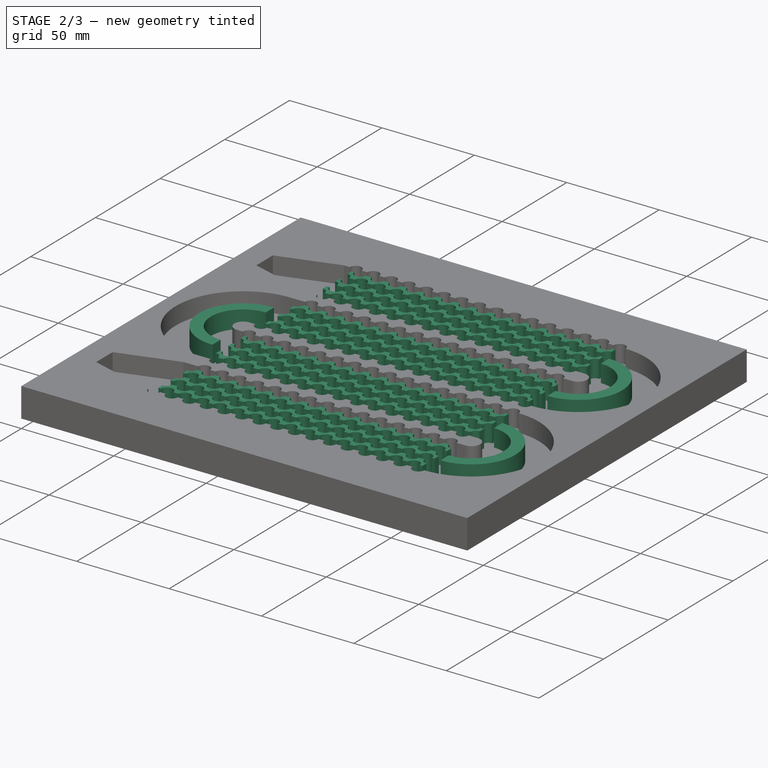
[diagram: stage 2 of 3 — iso view after this stage's code; geometry added in this stage tinted green]
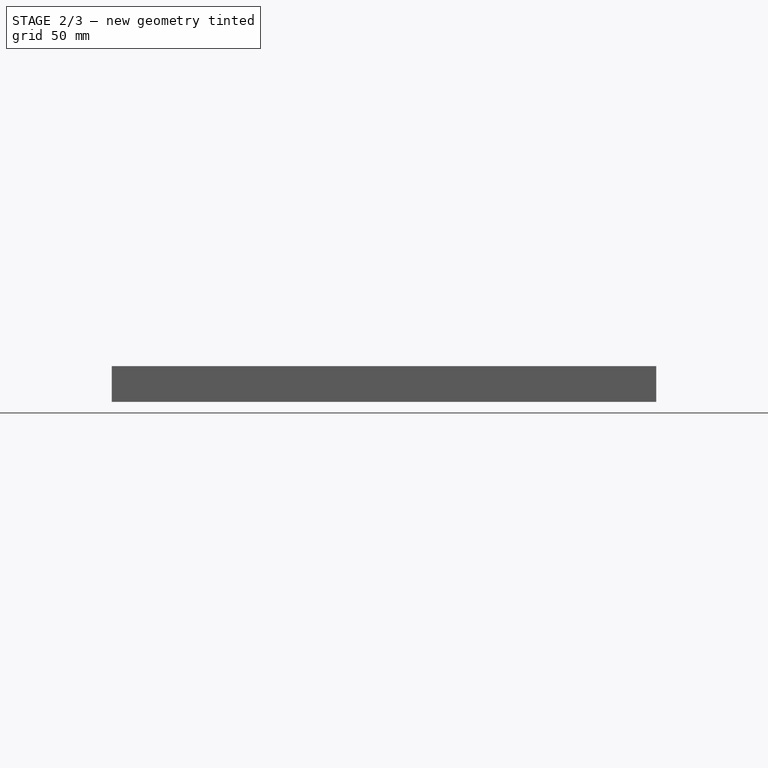
[diagram: stage 2 of 3 — front view after this stage's code; geometry added in this stage tinted green]
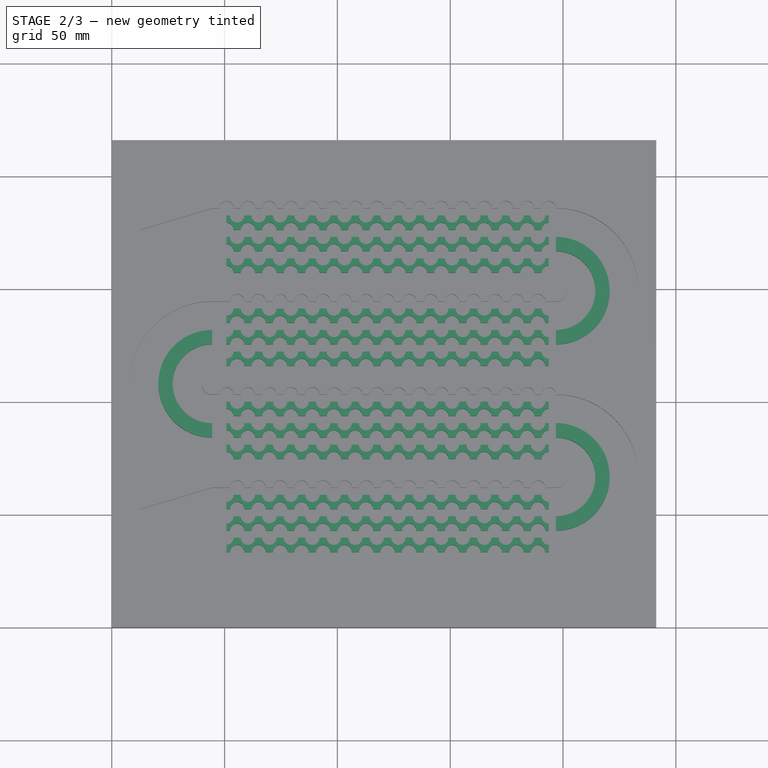
[diagram: stage 2 of 3 — top view after this stage's code; geometry added in this stage tinted green]
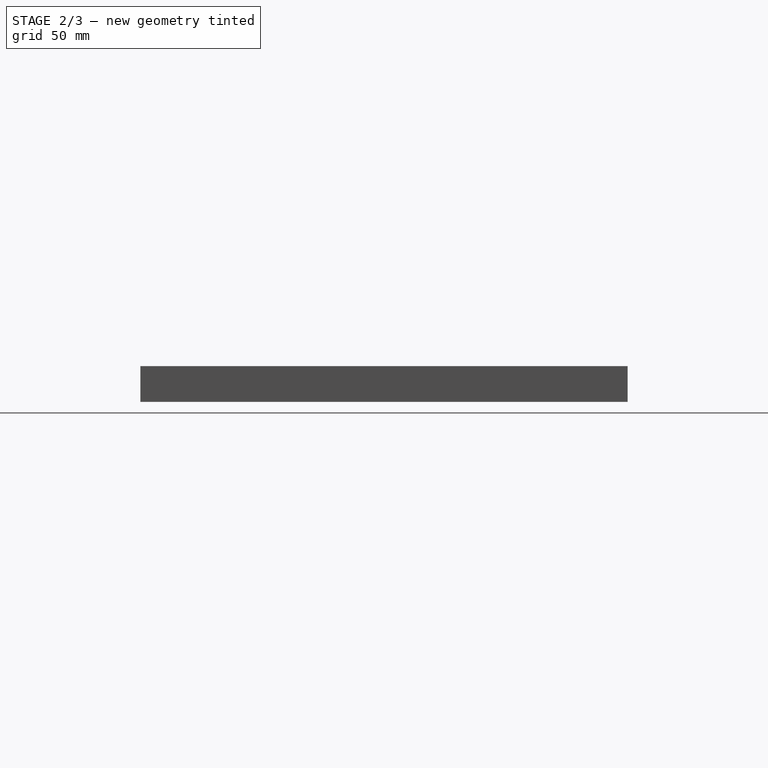
[diagram: stage 2 of 3 — right view after this stage's code; geometry added in this stage tinted green]
FEATURE [Sketcher::SketchObject] Sketch013
  FullyConstrained = true
  MapMode = 5
  Placement = pos=(0,0,6.35) rot=(0,0,1;0rad)
  Support = -> [Pocket]
  sketch-geometry (384):
    g0: ArcOfCircle CenterX=60.325 CenterY=58.7375 CenterZ=0 NormalX=0 NormalY=0 NormalZ=1 AngleXU=0 Radius=3.175 StartAngle=3.14159 EndAngle=6.28319
    g1: ArcOfCircle CenterX=50.8 CenterY=58.7375 CenterZ=0 NormalX=0 NormalY=0 NormalZ=1 AngleXU=0 Radius=3.175 StartAngle=4.71239 EndAngle=6.28319
    g2: ArcOfCircle CenterX=69.85 CenterY=58.7375 CenterZ=0 NormalX=0 NormalY=0 NormalZ=1 AngleXU=0 Radius=3.175 StartAngle=3.14159 EndAngle=6.28319
    g3: ArcOfCircle CenterX=79.375 CenterY=58.7375 CenterZ=0 NormalX=0 NormalY=0 NormalZ=1 AngleXU=0 Radius=3.175 StartAngle=3.14159 EndAngle=6.28319
    g4: ArcOfCircle CenterX=88.9 CenterY=58.7375 CenterZ=0 NormalX=0 NormalY=0 NormalZ=1 AngleXU=0 Radius=3.175 StartAngle=3.14159 EndAngle=6.28319
    g5: ArcOfCircle CenterX=98.425 CenterY=58.7375 CenterZ=0 NormalX=0 NormalY=0 NormalZ=1 AngleXU=0 Radius=3.175 StartAngle=3.14159 EndAngle=6.28319
    g6: ArcOfCircle CenterX=107.95 CenterY=58.7375 CenterZ=0 NormalX=0 NormalY=0 NormalZ=1 AngleXU=0 Radius=3.175 StartAngle=3.14159 EndAngle=6.28319
    g7: ArcOfCircle CenterX=117.475 CenterY=58.7375 CenterZ=0 NormalX=0 NormalY=0 NormalZ=1 AngleXU=0 Radius=3.175 StartAngle=3.14159 EndAngle=6.28319
    g8: ArcOfCircle CenterX=127 CenterY=58.7375 CenterZ=0 NormalX=0 NormalY=0 NormalZ=1 AngleXU=0 Radius=3.175 StartAngle=3.14159 EndAngle=6.28319
    g9: ArcOfCircle CenterX=136.525 CenterY=58.7375 CenterZ=0 NormalX=0 NormalY=0 NormalZ=1 AngleXU=0 Radius=3.175 StartAngle=3.14159 EndAngle=6.28319
    g10: ArcOfCircle CenterX=146.05 CenterY=58.7375 CenterZ=0 NormalX=0 NormalY=0 NormalZ=1 AngleXU=0 Radius=3.175 StartAngle=3.14159 EndAngle=6.28319
    g11: ArcOfCircle CenterX=155.575 CenterY=58.7375 CenterZ=0 NormalX=0 NormalY=0 NormalZ=1 AngleXU=0 Radius=3.175 StartAngle=3.14159 EndAngle=6.28319
    g12: ArcOfCircle CenterX=165.1 CenterY=58.7375 CenterZ=0 NormalX=0 NormalY=0 NormalZ=1 AngleXU=0 Radius=3.175 StartAngle=3.14159 EndAngle=6.28319
    g13: ArcOfCircle CenterX=174.625 CenterY=58.7375 CenterZ=0 NormalX=0 NormalY=0 NormalZ=1 AngleXU=0 Radius=3.175 StartAngle=3.14159 EndAngle=6.28319
    g14: ArcOfCircle CenterX=184.15 CenterY=58.7375 CenterZ=0 NormalX=0 NormalY=0 NormalZ=1 AngleXU=0 Radius=3.175 StartAngle=3.14159 EndAngle=6.28319
    g15: ArcOfCircle CenterX=193.675 CenterY=58.7375 CenterZ=0 NormalX=0 NormalY=0 NormalZ=1 AngleXU=0 Radius=3.175 StartAngle=3.14159 EndAngle=4.71239
    g16: ArcOfCircle CenterX=55.5625 CenterY=52.3875 CenterZ=0 NormalX=0 NormalY=0 NormalZ=1 AngleXU=0 Radius=3.175 StartAngle=0 EndAngle=3.14159
    g17: ArcOfCircle CenterX=65.0875 CenterY=52.3875 CenterZ=0 NormalX=0 NormalY=0 NormalZ=1 AngleXU=0 Radius=3.175 StartAngle=0 EndAngle=3.14159
    g18: ArcOfCircle CenterX=74.6125 CenterY=52.3875 CenterZ=0 NormalX=0 NormalY=0 NormalZ=1 AngleXU=0 Radius=3.175 StartAngle=0 EndAngle=3.14159
    g19: ArcOfCircle CenterX=84.1375 CenterY=52.3875 CenterZ=0 NormalX=0 NormalY=0 NormalZ=1 AngleXU=0 Radius=3.175 StartAngle=0 EndAngle=3.14159
    g20: ArcOfCircle CenterX=93.6625 CenterY=52.3875 CenterZ=0 NormalX=0 NormalY=0 NormalZ=1 AngleXU=0 Radius=3.175 StartAngle=0 EndAngle=3.14159
    g21: ArcOfCircle CenterX=103.188 CenterY=52.3875 CenterZ=0 NormalX=0 NormalY=0 NormalZ=1 AngleXU=0 Radius=3.175 StartAngle=0 EndAngle=3.14159
    g22: ArcOfCircle CenterX=112.713 CenterY=52.3875 CenterZ=0 NormalX=0 NormalY=0 NormalZ=1 AngleXU=0 Radius=3.175 StartAngle=0 EndAngle=3.14159
    g23: ArcOfCircle CenterX=122.237 CenterY=52.3875 CenterZ=0 NormalX=0 NormalY=0 NormalZ=1 AngleXU=0 Radius=3.175 StartAngle=0 EndAngle=3.14159
    g24: ArcOfCircle CenterX=131.762 CenterY=52.3875 CenterZ=0 NormalX=0 NormalY=0 NormalZ=1 AngleXU=0 Radius=3.175 StartAngle=0 EndAngle=3.14159
    g25: ArcOfCircle CenterX=141.287 CenterY=52.3875 CenterZ=0 NormalX=0 NormalY=0 NormalZ=1 AngleXU=0 Radius=3.175 StartAngle=0 EndAngle=3.14159
    g26: ArcOfCircle CenterX=150.812 CenterY=52.3875 CenterZ=0 NormalX=0 NormalY=0 NormalZ=1 AngleXU=0 Radius=3.175 StartAngle=0 EndAngle=3.14159
    g27: ArcOfCircle CenterX=160.338 CenterY=52.3875 CenterZ=0 NormalX=0 NormalY=0 NormalZ=1 AngleXU=0 Radius=3.175 StartAngle=0 EndAngle=3.14159
    g28: ArcOfCircle CenterX=169.863 CenterY=52.3875 CenterZ=0 NormalX=0 NormalY=0 NormalZ=1 AngleXU=0 Radius=3.175 StartAngle=0 EndAngle=3.14159
    g29: ArcOfCircle CenterX=179.387 CenterY=52.3875 CenterZ=0 NormalX=0 NormalY=0 NormalZ=1 AngleXU=0 Radius=3.175 StartAngle=0 EndAngle=3.14159
    g30: ArcOfCircle CenterX=188.912 CenterY=52.3875 CenterZ=0 NormalX=0 NormalY=0 NormalZ=1 AngleXU=0 Radius=3.175 StartAngle=0 EndAngle=3.14159
    g31: LineSegment StartX=53.975 StartY=58.7375 StartZ=0 EndX=57.15 EndY=58.7375 EndZ=0
    g32: LineSegment StartX=63.5 StartY=58.7375 StartZ=0 EndX=66.675 EndY=58.7375 EndZ=0
    g33: LineSegment StartX=73.025 StartY=58.7375 StartZ=0 EndX=76.2 EndY=58.7375 EndZ=0
    g34: LineSegment StartX=82.55 StartY=58.7375 StartZ=0 EndX=85.725 EndY=58.7375 EndZ=0
    g35: LineSegment StartX=92.075 StartY=58.7375 StartZ=0 EndX=95.25 EndY=58.7375 EndZ=0
    g36: LineSegment StartX=101.6 StartY=58.7375 StartZ=0 EndX=104.775 EndY=58.7375 EndZ=0
    g37: LineSegment StartX=111.125 StartY=58.7375 StartZ=0 EndX=114.3 EndY=58.7375 EndZ=0
    g38: LineSegment StartX=120.65 StartY=58.7375 StartZ=0 EndX=123.825 EndY=58.7375 EndZ=0
    g39: LineSegment StartX=130.175 StartY=58.7375 StartZ=0 EndX=133.35 EndY=58.7375 EndZ=0
    g40: LineSegment StartX=139.7 StartY=58.7375 StartZ=0 EndX=142.875 EndY=58.7375 EndZ=0
    g41: LineSegment StartX=149.225 StartY=58.7375 StartZ=0 EndX=152.4 EndY=58.7375 EndZ=0
    g42: LineSegment StartX=158.75 StartY=58.7375 StartZ=0 EndX=161.925 EndY=58.7375 EndZ=0
    g43: LineSegment StartX=168.275 StartY=58.7375 StartZ=0 EndX=171.45 EndY=58.7375 EndZ=0
    g44: LineSegment StartX=177.8 StartY=58.7375 StartZ=0 EndX=180.975 EndY=58.7375 EndZ=0
    g45: LineSegment StartX=187.325 StartY=58.7375 StartZ=0 EndX=190.5 EndY=58.7375 EndZ=0
    g46: LineSegment StartX=193.675 StartY=55.5625 StartZ=0 EndX=193.675 EndY=52.3875 EndZ=0
    g47: LineSegment StartX=193.675 StartY=52.3875 StartZ=0 EndX=192.088 EndY=52.3875 EndZ=0
    g48: LineSegment StartX=185.737 StartY=52.3875 StartZ=0 EndX=182.562 EndY=52.3875 EndZ=0
    g49: LineSegment StartX=173.038 StartY=52.3875 StartZ=0 EndX=176.212 EndY=52.3875 EndZ=0
    g50: LineSegment StartX=50.8 StartY=55.5625 StartZ=0 EndX=50.8 EndY=52.3875 EndZ=0
    g51: LineSegment StartX=50.8 StartY=52.3875 StartZ=0 EndX=52.3875 EndY=52.3875 EndZ=0
    g52: LineSegment StartX=58.7375 StartY=52.3875 StartZ=0 EndX=61.9125 EndY=52.3875 EndZ=0
    g53: LineSegment StartX=68.2625 StartY=52.3875 StartZ=0 EndX=71.4375 EndY=52.3875 EndZ=0
    g54: LineSegment StartX=77.7875 StartY=52.3875 StartZ=0 EndX=80.9625 EndY=52.3875 EndZ=0
    g55: LineSegment StartX=87.3125 StartY=52.3875 StartZ=0 EndX=90.4875 EndY=52.3875 EndZ=0
    g56: LineSegment StartX=96.8375 StartY=52.3875 StartZ=0 EndX=100.013 EndY=52.3875 EndZ=0
    g57: LineSegment StartX=106.362 StartY=52.3875 StartZ=0 EndX=109.538 EndY=52.3875 EndZ=0
    g58: LineSegment StartX=115.888 StartY=52.3875 StartZ=0 EndX=119.062 EndY=52.3875 EndZ=0
    g59: LineSegment StartX=125.412 StartY=52.3875 StartZ=0 EndX=128.587 EndY=52.3875 EndZ=0
    g60: LineSegment StartX=134.938 StartY=52.3875 StartZ=0 EndX=138.112 EndY=52.3875 EndZ=0
    g61: LineSegment StartX=144.463 StartY=52.3875 StartZ=0 EndX=147.637 EndY=52.3875 EndZ=0
    g62: LineSegment StartX=153.988 StartY=52.3875 StartZ=0 EndX=157.162 EndY=52.3875 EndZ=0
    g63: LineSegment StartX=163.513 StartY=52.3875 StartZ=0 EndX=166.688 EndY=52.3875 EndZ=0
    g64: ArcOfCircle CenterX=60.325 CenterY=49.2125 CenterZ=0 NormalX=0 NormalY=0 NormalZ=1 AngleXU=0 Radius=3.175 StartAngle=3.14159 EndAngle=6.28319
    g65: ArcOfCircle CenterX=50.8 CenterY=49.2125 CenterZ=0 NormalX=0 NormalY=0 NormalZ=1 AngleXU=0 Radius=3.175 StartAngle=4.71239 EndAngle=6.28319
    g66: ArcOfCircle CenterX=69.85 CenterY=49.2125 CenterZ=0 NormalX=0 NormalY=0 NormalZ=1 AngleXU=0 Radius=3.175 StartAngle=3.14159 EndAngle=6.28319
    g67: ArcOfCircle CenterX=79.375 CenterY=49.2125 CenterZ=0 NormalX=0 NormalY=0 NormalZ=1 AngleXU=0 Radius=3.175 StartAngle=3.14159 EndAngle=6.28319
    g68: ArcOfCircle CenterX=88.9 CenterY=49.2125 CenterZ=0 NormalX=0 NormalY=0 NormalZ=1 AngleXU=0 Radius=3.175 StartAngle=3.14159 EndAngle=6.28319
    g69: ArcOfCircle CenterX=98.425 CenterY=49.2125 CenterZ=0 NormalX=0 NormalY=0 NormalZ=1 AngleXU=0 Radius=3.175 StartAngle=3.14159 EndAngle=6.28319
    g70: ArcOfCircle CenterX=107.95 CenterY=49.2125 CenterZ=0 NormalX=0 NormalY=0 NormalZ=1 AngleXU=0 Radius=3.175 StartAngle=3.14159 EndAngle=6.28319
    g71: ArcOfCircle CenterX=117.475 CenterY=49.2125 CenterZ=0 NormalX=0 NormalY=0 NormalZ=1 AngleXU=0 Radius=3.175 StartAngle=3.14159 EndAngle=6.28319
    g72: ArcOfCircle CenterX=127 CenterY=49.2125 CenterZ=0 NormalX=0 NormalY=0 NormalZ=1 AngleXU=0 Radius=3.175 StartAngle=3.14159 EndAngle=6.28319
    g73: ArcOfCircle CenterX=136.525 CenterY=49.2125 CenterZ=0 NormalX=0 NormalY=0 NormalZ=1 AngleXU=0 Radius=3.175 StartAngle=3.14159 EndAngle=6.28319
    g74: ArcOfCircle CenterX=146.05 CenterY=49.2125 CenterZ=0 NormalX=0 NormalY=0 NormalZ=1 AngleXU=0 Radius=3.175 StartAngle=3.14159 EndAngle=6.28319
    g75: ArcOfCircle CenterX=155.575 CenterY=49.2125 CenterZ=0 NormalX=0 NormalY=0 NormalZ=1 AngleXU=0 Radius=3.175 StartAngle=3.14159 EndAngle=6.28319
    g76: ArcOfCircle CenterX=165.1 CenterY=49.2125 CenterZ=0 NormalX=0 NormalY=0 NormalZ=1 AngleXU=0 Radius=3.175 StartAngle=3.14159 EndAngle=6.28319
    g77: ArcOfCircle CenterX=174.625 CenterY=49.2125 CenterZ=0 NormalX=0 NormalY=0 NormalZ=1 AngleXU=0 Radius=3.175 StartAngle=3.14159 EndAngle=6.28319
    g78: ArcOfCircle CenterX=184.15 CenterY=49.2125 CenterZ=0 NormalX=0 NormalY=0 NormalZ=1 AngleXU=0 Radius=3.175 StartAngle=3.14159 EndAngle=6.28319
    g79: ArcOfCircle CenterX=193.675 CenterY=49.2125 CenterZ=0 NormalX=0 NormalY=0 NormalZ=1 AngleXU=0 Radius=3.175 StartAngle=3.14159 EndAngle=4.71239
    g80: ArcOfCircle CenterX=55.5625 CenterY=42.8625 CenterZ=0 NormalX=0 NormalY=0 NormalZ=1 AngleXU=0 Radius=3.175 StartAngle=0 EndAngle=3.14159
    g81: ArcOfCircle CenterX=65.0875 CenterY=42.8625 CenterZ=0 NormalX=0 NormalY=0 NormalZ=1 AngleXU=0 Radius=3.175 StartAngle=0 EndAngle=3.14159
    g82: ArcOfCircle CenterX=74.6125 CenterY=42.8625 CenterZ=0 NormalX=0 NormalY=0 NormalZ=1 AngleXU=0 Radius=3.175 StartAngle=0 EndAngle=3.14159
    g83: ArcOfCircle CenterX=84.1375 CenterY=42.8625 CenterZ=0 NormalX=0 NormalY=0 NormalZ=1 AngleXU=0 Radius=3.175 StartAngle=0 EndAngle=3.14159
    g84: ArcOfCircle CenterX=93.6625 CenterY=42.8625 CenterZ=0 NormalX=0 NormalY=0 NormalZ=1 AngleXU=0 Radius=3.175 StartAngle=0 EndAngle=3.14159
    g85: ArcOfCircle CenterX=103.188 CenterY=42.8625 CenterZ=0 NormalX=0 NormalY=0 NormalZ=1 AngleXU=0 Radius=3.175 StartAngle=0 EndAngle=3.14159
    g86: ArcOfCircle CenterX=112.713 CenterY=42.8625 CenterZ=0 NormalX=0 NormalY=0 NormalZ=1 AngleXU=0 Radius=3.175 StartAngle=0 EndAngle=3.14159
    g87: ArcOfCircle CenterX=122.237 CenterY=42.8625 CenterZ=0 NormalX=0 NormalY=0 NormalZ=1 AngleXU=0 Radius=3.175 StartAngle=0 EndAngle=3.14159
    g88: ArcOfCircle CenterX=131.762 CenterY=42.8625 CenterZ=0 NormalX=0 NormalY=0 NormalZ=1 AngleXU=0 Radius=3.175 StartAngle=0 EndAngle=3.14159
    g89: ArcOfCircle CenterX=141.287 CenterY=42.8625 CenterZ=0 NormalX=0 NormalY=0 NormalZ=1 AngleXU=0 Radius=3.175 StartAngle=0 EndAngle=3.14159
    g90: ArcOfCircle CenterX=150.812 CenterY=42.8625 CenterZ=0 NormalX=0 NormalY=0 NormalZ=1 AngleXU=0 Radius=3.175 StartAngle=0 EndAngle=3.14159
    g91: ArcOfCircle CenterX=160.338 CenterY=42.8625 CenterZ=0 NormalX=0 NormalY=0 NormalZ=1 AngleXU=0 Radius=3.175 StartAngle=0 EndAngle=3.14159
    g92: ArcOfCircle CenterX=169.863 CenterY=42.8625 CenterZ=0 NormalX=0 NormalY=0 NormalZ=1 AngleXU=0 Radius=3.175 StartAngle=0 EndAngle=3.14159
    g93: ArcOfCircle CenterX=179.387 CenterY=42.8625 CenterZ=0 NormalX=0 NormalY=0 NormalZ=1 AngleXU=0 Radius=3.175 StartAngle=0 EndAngle=3.14159
    g94: ArcOfCircle CenterX=188.912 CenterY=42.8625 CenterZ=0 NormalX=0 NormalY=0 NormalZ=1 AngleXU=0 Radius=3.175 StartAngle=0 EndAngle=3.14159
    g95: LineSegment StartX=53.975 StartY=49.2125 StartZ=0 EndX=57.15 EndY=49.2125 EndZ=0
    g96: LineSegment StartX=63.5 StartY=49.2125 StartZ=0 EndX=66.675 EndY=49.2125 EndZ=0
    g97: LineSegment StartX=73.025 StartY=49.2125 StartZ=0 EndX=76.2 EndY=49.2125 EndZ=0
    g98: LineSegment StartX=82.55 StartY=49.2125 StartZ=0 EndX=85.725 EndY=49.2125 EndZ=0
    g99: LineSegment StartX=92.075 StartY=49.2125 StartZ=0 EndX=95.25 EndY=49.2125 EndZ=0
    g100: LineSegment StartX=101.6 StartY=49.2125 StartZ=0 EndX=104.775 EndY=49.2125 EndZ=0
    g101: LineSegment StartX=111.125 StartY=49.2125 StartZ=0 EndX=114.3 EndY=49.2125 EndZ=0
    g102: LineSegment StartX=120.65 StartY=49.2125 StartZ=0 EndX=123.825 EndY=49.2125 EndZ=0
    g103: LineSegment StartX=130.175 StartY=49.2125 StartZ=0 EndX=133.35 EndY=49.2125 EndZ=0
    g104: LineSegment StartX=139.7 StartY=49.2125 StartZ=0 EndX=142.875 EndY=49.2125 EndZ=0
    g105: LineSegment StartX=149.225 StartY=49.2125 StartZ=0 EndX=152.4 EndY=49.2125 EndZ=0
    g106: LineSegment StartX=158.75 StartY=49.2125 StartZ=0 EndX=161.925 EndY=49.2125 EndZ=0
    g107: LineSegment StartX=168.275 StartY=49.2125 StartZ=0 EndX=171.45 EndY=49.2125 EndZ=0
    g108: LineSegment StartX=177.8 StartY=49.2125 StartZ=0 EndX=180.975 EndY=49.2125 EndZ=0
    g109: LineSegment StartX=187.325 StartY=49.2125 StartZ=0 EndX=190.5 EndY=49.2125 EndZ=0
    g110: LineSegment StartX=193.675 StartY=46.0375 StartZ=0 EndX=193.675 EndY=42.8625 EndZ=0
    g111: LineSegment StartX=193.675 StartY=42.8625 StartZ=0 EndX=192.088 EndY=42.8625 EndZ=0
    g112: LineSegment StartX=185.737 StartY=42.8625 StartZ=0 EndX=182.562 EndY=42.8625 EndZ=0
    g113: LineSegment StartX=173.038 StartY=42.8625 StartZ=0 EndX=176.212 EndY=42.8625 EndZ=0
    g114: LineSegment StartX=50.8 StartY=46.0375 StartZ=0 EndX=50.8 EndY=42.8625 EndZ=0
    g115: LineSegment StartX=50.8 StartY=42.8625 StartZ=0 EndX=52.3875 EndY=42.8625 EndZ=0
    g116: LineSegment StartX=58.7375 StartY=42.8625 StartZ=0 EndX=61.9125 EndY=42.8625 EndZ=0
    g117: LineSegment StartX=68.2625 StartY=42.8625 StartZ=0 EndX=71.4375 EndY=42.8625 EndZ=0
    g118: LineSegment StartX=77.7875 StartY=42.8625 StartZ=0 EndX=80.9625 EndY=42.8625 EndZ=0
    g119: LineSegment StartX=87.3125 StartY=42.8625 StartZ=0 EndX=90.4875 EndY=42.8625 EndZ=0
    g120: LineSegment StartX=96.8375 StartY=42.8625 StartZ=0 EndX=100.013 EndY=42.8625 EndZ=0
    g121: LineSegment StartX=106.362 StartY=42.8625 StartZ=0 EndX=109.538 EndY=42.8625 EndZ=0
    g122: LineSegment StartX=115.888 StartY=42.8625 StartZ=0 EndX=119.062 EndY=42.8625 EndZ=0
    g123: LineSegment StartX=125.412 StartY=42.8625 StartZ=0 EndX=128.587 EndY=42.8625 EndZ=0
    g124: LineSegment StartX=134.938 StartY=42.8625 StartZ=0 EndX=138.112 EndY=42.8625 EndZ=0
    g125: LineSegment StartX=144.463 StartY=42.8625 StartZ=0 EndX=147.637 EndY=42.8625 EndZ=0
    g126: LineSegment StartX=153.988 StartY=42.8625 StartZ=0 EndX=157.162 EndY=42.8625 EndZ=0
    g127: LineSegment StartX=163.513 StartY=42.8625 StartZ=0 EndX=166.688 EndY=42.8625 EndZ=0
    g128: ArcOfCircle CenterX=60.325 CenterY=39.6875 CenterZ=0 NormalX=0 NormalY=0 NormalZ=1 AngleXU=0 Radius=3.175 StartAngle=3.14159 EndAngle=6.28319
    g129: ArcOfCircle CenterX=50.8 CenterY=39.6875 CenterZ=0 NormalX=0 NormalY=0 NormalZ=1 AngleXU=0 Radius=3.175 StartAngle=4.71239 EndAngle=6.28319
    g130: ArcOfCircle CenterX=69.85 CenterY=39.6875 CenterZ=0 NormalX=0 NormalY=0 NormalZ=1 AngleXU=0 Radius=3.175 StartAngle=3.14159 EndAngle=6.28319
    g131: ArcOfCircle CenterX=79.375 CenterY=39.6875 CenterZ=0 NormalX=0 NormalY=0 NormalZ=1 AngleXU=0 Radius=3.175 StartAngle=3.14159 EndAngle=6.28319
    g132: ArcOfCircle CenterX=88.9 CenterY=39.6875 CenterZ=0 NormalX=0 NormalY=0 NormalZ=1 AngleXU=0 Radius=3.175 StartAngle=3.14159 EndAngle=6.28319
    g133: ArcOfCircle CenterX=98.425 CenterY=39.6875 CenterZ=0 NormalX=0 NormalY=0 NormalZ=1 AngleXU=0 Radius=3.175 StartAngle=3.14159 EndAngle=6.28319
    g134: ArcOfCircle CenterX=107.95 CenterY=39.6875 CenterZ=0 NormalX=0 NormalY=0 NormalZ=1 AngleXU=0 Radius=3.175 StartAngle=3.14159 EndAngle=6.28319
    g135: ArcOfCircle CenterX=117.475 CenterY=39.6875 CenterZ=0 NormalX=0 NormalY=0 NormalZ=1 AngleXU=0 Radius=3.175 StartAngle=3.14159 EndAngle=6.28319
    g136: ArcOfCircle CenterX=127 CenterY=39.6875 CenterZ=0 NormalX=0 NormalY=0 NormalZ=1 AngleXU=0 Radius=3.175 StartAngle=3.14159 EndAngle=6.28319
    g137: ArcOfCircle CenterX=136.525 CenterY=39.6875 CenterZ=0 NormalX=0 NormalY=0 NormalZ=1 AngleXU=0 Radius=3.175 StartAngle=3.14159 EndAngle=6.28319
    g138: ArcOfCircle CenterX=146.05 CenterY=39.6875 CenterZ=0 NormalX=0 NormalY=0 NormalZ=1 AngleXU=0 Radius=3.175 StartAngle=3.14159 EndAngle=6.28319
    g139: ArcOfCircle CenterX=155.575 CenterY=39.6875 CenterZ=0 NormalX=0 NormalY=0 NormalZ=1 AngleXU=0 Radius=3.175 StartAngle=3.14159 EndAngle=6.28319
    g140: ArcOfCircle CenterX=165.1 CenterY=39.6875 CenterZ=0 NormalX=0 NormalY=0 NormalZ=1 AngleXU=0 Radius=3.175 StartAngle=3.14159 EndAngle=6.28319
    g141: ArcOfCircle CenterX=174.625 CenterY=39.6875 CenterZ=0 NormalX=0 NormalY=0 NormalZ=1 AngleXU=0 Radius=3.175 StartAngle=3.14159 EndAngle=6.28319
    g142: ArcOfCircle CenterX=184.15 CenterY=39.6875 CenterZ=0 NormalX=0 NormalY=0 NormalZ=1 AngleXU=0 Radius=3.175 StartAngle=3.14159 EndAngle=6.28319
    g143: ArcOfCircle CenterX=193.675 CenterY=39.6875 CenterZ=0 NormalX=0 NormalY=0 NormalZ=1 AngleXU=0 Radius=3.175 StartAngle=3.14159 EndAngle=4.71239
    g144: ArcOfCircle CenterX=55.5625 CenterY=33.3375 CenterZ=0 NormalX=0 NormalY=0 NormalZ=1 AngleXU=0 Radius=3.175 StartAngle=0 EndAngle=3.14159
    g145: ArcOfCircle CenterX=65.0875 CenterY=33.3375 CenterZ=0 NormalX=0 NormalY=0 NormalZ=1 AngleXU=0 Radius=3.175 StartAngle=0 EndAngle=3.14159
    g146: ArcOfCircle CenterX=74.6125 CenterY=33.3375 CenterZ=0 NormalX=0 NormalY=0 NormalZ=1 AngleXU=0 Radius=3.175 StartAngle=0 EndAngle=3.14159
    g147: ArcOfCircle CenterX=84.1375 CenterY=33.3375 CenterZ=0 NormalX=0 NormalY=0 NormalZ=1 AngleXU=0 Radius=3.175 StartAngle=0 EndAngle=3.14159
    g148: ArcOfCircle CenterX=93.6625 CenterY=33.3375 CenterZ=0 NormalX=0 NormalY=0 NormalZ=1 AngleXU=0 Radius=3.175 StartAngle=0 EndAngle=3.14159
    g149: ArcOfCircle CenterX=103.188 CenterY=33.3375 CenterZ=0 NormalX=0 NormalY=0 NormalZ=1 AngleXU=0 Radius=3.175 StartAngle=0 EndAngle=3.14159
    g150: ArcOfCircle CenterX=112.713 CenterY=33.3375 CenterZ=0 NormalX=0 NormalY=0 NormalZ=1 AngleXU=0 Radius=3.175 StartAngle=0 EndAngle=3.14159
    g151: ArcOfCircle CenterX=122.237 CenterY=33.3375 CenterZ=0 NormalX=0 NormalY=0 NormalZ=1 AngleXU=0 Radius=3.175 StartAngle=0 EndAngle=3.14159
    g152: ArcOfCircle CenterX=131.762 CenterY=33.3375 CenterZ=0 NormalX=0 NormalY=0 NormalZ=1 AngleXU=0 Radius=3.175 StartAngle=0 EndAngle=3.14159
    g153: ArcOfCircle CenterX=141.287 CenterY=33.3375 CenterZ=0 NormalX=0 NormalY=0 NormalZ=1 AngleXU=0 Radius=3.175 StartAngle=0 EndAngle=3.14159
    g154: ArcOfCircle CenterX=150.812 CenterY=33.3375 CenterZ=0 NormalX=0 NormalY=0 NormalZ=1 AngleXU=0 Radius=3.175 StartAngle=0 EndAngle=3.14159
    g155: ArcOfCircle CenterX=160.338 CenterY=33.3375 CenterZ=0 NormalX=0 NormalY=0 NormalZ=1 AngleXU=0 Radius=3.175 StartAngle=0 EndAngle=3.14159
    g156: ArcOfCircle CenterX=169.863 CenterY=33.3375 CenterZ=0 NormalX=0 NormalY=0 NormalZ=1 AngleXU=0 Radius=3.175 StartAngle=0 EndAngle=3.14159
    g157: ArcOfCircle CenterX=179.387 CenterY=33.3375 CenterZ=0 NormalX=0 NormalY=0 NormalZ=1 AngleXU=0 Radius=3.175 StartAngle=0 EndAngle=3.14159
    g158: ArcOfCircle CenterX=188.912 CenterY=33.3375 CenterZ=0 NormalX=0 NormalY=0 NormalZ=1 AngleXU=0 Radius=3.175 StartAngle=0 EndAngle=3.14159
    g159: LineSegment StartX=53.975 StartY=39.6875 StartZ=0 EndX=57.15 EndY=39.6875 EndZ=0
    g160: LineSegment StartX=63.5 StartY=39.6875 StartZ=0 EndX=66.675 EndY=39.6875 EndZ=0
    g161: LineSegment StartX=73.025 StartY=39.6875 StartZ=0 EndX=76.2 EndY=39.6875 EndZ=0
    g162: LineSegment StartX=82.55 StartY=39.6875 StartZ=0 EndX=85.725 EndY=39.6875 EndZ=0
    g163: LineSegment StartX=92.075 StartY=39.6875 StartZ=0 EndX=95.25 EndY=39.6875 EndZ=0
    g164: LineSegment StartX=101.6 StartY=39.6875 StartZ=0 EndX=104.775 EndY=39.6875 EndZ=0
    g165: LineSegment StartX=111.125 StartY=39.6875 StartZ=0 EndX=114.3 EndY=39.6875 EndZ=0
    g166: LineSegment StartX=120.65 StartY=39.6875 StartZ=0 EndX=123.825 EndY=39.6875 EndZ=0
    g167: LineSegment StartX=130.175 StartY=39.6875 StartZ=0 EndX=133.35 EndY=39.6875 EndZ=0
    g168: LineSegment StartX=139.7 StartY=39.6875 StartZ=0 EndX=142.875 EndY=39.6875 EndZ=0
    g169: LineSegment StartX=149.225 StartY=39.6875 StartZ=0 EndX=152.4 EndY=39.6875 EndZ=0
    g170: LineSegment StartX=158.75 StartY=39.6875 StartZ=0 EndX=161.925 EndY=39.6875 EndZ=0
    g171: LineSegment StartX=168.275 StartY=39.6875 StartZ=0 EndX=171.45 EndY=39.6875 EndZ=0
    g172: LineSegment StartX=177.8 StartY=39.6875 StartZ=0 EndX=180.975 EndY=39.6875 EndZ=0
    g173: LineSegment StartX=187.325 StartY=39.6875 StartZ=0 EndX=190.5 EndY=39.6875 EndZ=0
    g174: LineSegment StartX=193.675 StartY=36.5125 StartZ=0 EndX=193.675 EndY=33.3375 EndZ=0
    g175: LineSegment StartX=193.675 StartY=33.3375 StartZ=0 EndX=192.088 EndY=33.3375 EndZ=0
    g176: LineSegment StartX=185.737 StartY=33.3375 StartZ=0 EndX=182.562 EndY=33.3375 EndZ=0
    g177: LineSegment StartX=173.038 StartY=33.3375 StartZ=0 EndX=176.212 EndY=33.3375 EndZ=0
    g178: LineSegment StartX=50.8 StartY=36.5125 StartZ=0 EndX=50.8 EndY=33.3375 EndZ=0
    g179: LineSegment StartX=50.8 StartY=33.3375 StartZ=0 EndX=52.3875 EndY=33.3375 EndZ=0
    g180: LineSegment StartX=58.7375 StartY=33.3375 StartZ=0 EndX=61.9125 EndY=33.3375 EndZ=0
    g181: LineSegment StartX=68.2625 StartY=33.3375 StartZ=0 EndX=71.4375 EndY=33.3375 EndZ=0
    g182: LineSegment StartX=77.7875 StartY=33.3375 StartZ=0 EndX=80.9625 EndY=33.3375 EndZ=0
    g183: LineSegment StartX=87.3125 StartY=33.3375 StartZ=0 EndX=90.4875 EndY=33.3375 EndZ=0
    g184: LineSegment StartX=96.8375 StartY=33.3375 StartZ=0 EndX=100.013 EndY=33.3375 EndZ=0
    g185: LineSegment StartX=106.362 StartY=33.3375 StartZ=0 EndX=109.538 EndY=33.3375 EndZ=0
    g186: LineSegment StartX=115.888 StartY=33.3375 StartZ=0 EndX=119.062 EndY=33.3375 EndZ=0
    g187: LineSegment StartX=125.412 StartY=33.3375 StartZ=0 EndX=128.587 EndY=33.3375 EndZ=0
    g188: LineSegment StartX=134.938 StartY=33.3375 StartZ=0 EndX=138.112 EndY=33.3375 EndZ=0
    g189: LineSegment StartX=144.463 StartY=33.3375 StartZ=0 EndX=147.637 EndY=33.3375 EndZ=0
    g190: LineSegment StartX=153.988 StartY=33.3375 StartZ=0 EndX=157.162 EndY=33.3375 EndZ=0
    g191: LineSegment StartX=163.513 StartY=33.3375 StartZ=0 EndX=166.688 EndY=33.3375 EndZ=0
    g192: ArcOfCircle CenterX=60.325 CenterY=141.287 CenterZ=0 NormalX=0 NormalY=0 NormalZ=1 AngleXU=0 Radius=3.175 StartAngle=3.14159 EndAngle=6.28319
    g193: ArcOfCircle CenterX=50.8 CenterY=141.287 CenterZ=0 NormalX=0 NormalY=0 NormalZ=1 AngleXU=0 Radius=3.175 StartAngle=4.71239 EndAngle=6.28319
    g194: ArcOfCircle CenterX=69.85 CenterY=141.287 CenterZ=0 NormalX=0 NormalY=0 NormalZ=1 AngleXU=0 Radius=3.175 StartAngle=3.14159 EndAngle=6.28319
    g195: ArcOfCircle CenterX=79.375 CenterY=141.287 CenterZ=0 NormalX=0 NormalY=0 NormalZ=1 AngleXU=0 Radius=3.175 StartAngle=3.14159 EndAngle=6.28319
    g196: ArcOfCircle CenterX=88.9 CenterY=141.287 CenterZ=0 NormalX=0 NormalY=0 NormalZ=1 AngleXU=0 Radius=3.175 StartAngle=3.14159 EndAngle=6.28319
    g197: ArcOfCircle CenterX=98.425 CenterY=141.287 CenterZ=0 NormalX=0 NormalY=0 NormalZ=1 AngleXU=0 Radius=3.175 StartAngle=3.14159 EndAngle=6.28319
    g198: ArcOfCircle CenterX=107.95 CenterY=141.287 CenterZ=0 NormalX=0 NormalY=0 NormalZ=1 AngleXU=0 Radius=3.175 StartAngle=3.14159 EndAngle=6.28319
    g199: ArcOfCircle CenterX=117.475 CenterY=141.287 CenterZ=0 NormalX=0 NormalY=0 NormalZ=1 AngleXU=0 Radius=3.175 StartAngle=3.14159 EndAngle=6.28319
    g200: ArcOfCircle CenterX=127 CenterY=141.287 CenterZ=0 NormalX=0 NormalY=0 NormalZ=1 AngleXU=0 Radius=3.175 StartAngle=3.14159 EndAngle=6.28319
    g201: ArcOfCircle CenterX=136.525 CenterY=141.287 CenterZ=0 NormalX=0 NormalY=0 NormalZ=1 AngleXU=0 Radius=3.175 StartAngle=3.14159 EndAngle=6.28319
    g202: ArcOfCircle CenterX=146.05 CenterY=141.287 CenterZ=0 NormalX=0 NormalY=0 NormalZ=1 AngleXU=0 Radius=3.175 StartAngle=3.14159 EndAngle=6.28319
    g203: ArcOfCircle CenterX=155.575 CenterY=141.287 CenterZ=0 NormalX=0 NormalY=0 NormalZ=1 AngleXU=0 Radius=3.175 StartAngle=3.14159 EndAngle=6.28319
    g204: ArcOfCircle CenterX=165.1 CenterY=141.287 CenterZ=0 NormalX=0 NormalY=0 NormalZ=1 AngleXU=0 Radius=3.175 StartAngle=3.14159 EndAngle=6.28319
    g205: ArcOfCircle CenterX=174.625 CenterY=141.287 CenterZ=0 NormalX=0 NormalY=0 NormalZ=1 AngleXU=0 Radius=3.175 StartAngle=3.14159 EndAngle=6.28319
    g206: ArcOfCircle CenterX=184.15 CenterY=141.287 CenterZ=0 NormalX=0 NormalY=0 NormalZ=1 AngleXU=0 Radius=3.175 StartAngle=3.14159 EndAngle=6.28319
    g207: ArcOfCircle CenterX=193.675 CenterY=141.287 CenterZ=0 NormalX=0 NormalY=0 NormalZ=1 AngleXU=0 Radius=3.175 StartAngle=3.14159 EndAngle=4.71239
    g208: ArcOfCircle CenterX=55.5625 CenterY=134.938 CenterZ=0 NormalX=0 NormalY=0 NormalZ=1 AngleXU=0 Radius=3.175 StartAngle=0 EndAngle=3.14159
    g209: ArcOfCircle CenterX=65.0875 CenterY=134.938 CenterZ=0 NormalX=0 NormalY=0 NormalZ=1 AngleXU=0 Radius=3.175 StartAngle=0 EndAngle=3.14159
    g210: ArcOfCircle CenterX=74.6125 CenterY=134.938 CenterZ=0 NormalX=0 NormalY=0 NormalZ=1 AngleXU=0 Radius=3.175 StartAngle=0 EndAngle=3.14159
    g211: ArcOfCircle CenterX=84.1375 CenterY=134.938 CenterZ=0 NormalX=0 NormalY=0 NormalZ=1 AngleXU=0 Radius=3.175 StartAngle=0 EndAngle=3.14159
    g212: ArcOfCircle CenterX=93.6625 CenterY=134.938 CenterZ=0 NormalX=0 NormalY=0 NormalZ=1 AngleXU=0 Radius=3.175 StartAngle=0 EndAngle=3.14159
    g213: ArcOfCircle CenterX=103.188 CenterY=134.938 CenterZ=0 NormalX=0 NormalY=0 NormalZ=1 AngleXU=0 Radius=3.175 StartAngle=0 EndAngle=3.14159
    g214: ArcOfCircle CenterX=112.713 CenterY=134.938 CenterZ=0 NormalX=0 NormalY=0 NormalZ=1 AngleXU=0 Radius=3.175 StartAngle=0 EndAngle=3.14159
    g215: ArcOfCircle CenterX=122.237 CenterY=134.938 CenterZ=0 NormalX=0 NormalY=0 NormalZ=1 AngleXU=0 Radius=3.175 StartAngle=0 EndAngle=3.14159
    g216: ArcOfCircle CenterX=131.762 CenterY=134.938 CenterZ=0 NormalX=0 NormalY=0 NormalZ=1 AngleXU=0 Radius=3.175 StartAngle=0 EndAngle=3.14159
    g217: ArcOfCircle CenterX=141.287 CenterY=134.938 CenterZ=0 NormalX=0 NormalY=0 NormalZ=1 AngleXU=0 Radius=3.175 StartAngle=0 EndAngle=3.14159
    g218: ArcOfCircle CenterX=150.812 CenterY=134.938 CenterZ=0 NormalX=0 NormalY=0 NormalZ=1 AngleXU=0 Radius=3.175 StartAngle=0 EndAngle=3.14159
    g219: ArcOfCircle CenterX=160.338 CenterY=134.938 CenterZ=0 NormalX=0 NormalY=0 NormalZ=1 AngleXU=0 Radius=3.175 StartAngle=0 EndAngle=3.14159
    g220: ArcOfCircle CenterX=169.863 CenterY=134.938 CenterZ=0 NormalX=0 NormalY=0 NormalZ=1 AngleXU=0 Radius=3.175 StartAngle=0 EndAngle=3.14159
    g221: ArcOfCircle CenterX=179.387 CenterY=134.938 CenterZ=0 NormalX=0 NormalY=0 NormalZ=1 AngleXU=0 Radius=3.175 StartAngle=0 EndAngle=3.14159
    g222: ArcOfCircle CenterX=188.912 CenterY=134.938 CenterZ=0 NormalX=0 NormalY=0 NormalZ=1 AngleXU=0 Radius=3.175 StartAngle=0 EndAngle=3.14159
    g223: LineSegment StartX=53.975 StartY=141.287 StartZ=0 EndX=57.15 EndY=141.287 EndZ=0
    g224: LineSegment StartX=63.5 StartY=141.287 StartZ=0 EndX=66.675 EndY=141.287 EndZ=0
    g225: LineSegment StartX=73.025 StartY=141.287 StartZ=0 EndX=76.2 EndY=141.287 EndZ=0
    g226: LineSegment StartX=82.55 StartY=141.287 StartZ=0 EndX=85.725 EndY=141.287 EndZ=0
    g227: LineSegment StartX=92.075 StartY=141.287 StartZ=0 EndX=95.25 EndY=141.287 EndZ=0
    g228: LineSegment StartX=101.6 StartY=141.287 StartZ=0 EndX=104.775 EndY=141.287 EndZ=0
    g229: LineSegment StartX=111.125 StartY=141.287 StartZ=0 EndX=114.3 EndY=141.287 EndZ=0
    g230: LineSegment StartX=120.65 StartY=141.287 StartZ=0 EndX=123.825 EndY=141.287 EndZ=0
    g231: LineSegment StartX=130.175 StartY=141.287 StartZ=0 EndX=133.35 EndY=141.287 EndZ=0
    g232: LineSegment StartX=139.7 StartY=141.287 StartZ=0 EndX=142.875 EndY=141.287 EndZ=0
    g233: LineSegment StartX=149.225 StartY=141.287 StartZ=0 EndX=152.4 EndY=141.287 EndZ=0
    g234: LineSegment StartX=158.75 StartY=141.287 StartZ=0 EndX=161.925 EndY=141.287 EndZ=0
    g235: LineSegment StartX=168.275 StartY=141.287 StartZ=0 EndX=171.45 EndY=141.287 EndZ=0
    g236: LineSegment StartX=177.8 StartY=141.287 StartZ=0 EndX=180.975 EndY=141.287 EndZ=0
    g237: LineSegment StartX=187.325 StartY=141.287 StartZ=0 EndX=190.5 EndY=141.287 EndZ=0
    g238: LineSegment StartX=193.675 StartY=138.112 StartZ=0 EndX=193.675 EndY=134.938 EndZ=0
    g239: LineSegment StartX=193.675 StartY=134.938 StartZ=0 EndX=192.088 EndY=134.938 EndZ=0
    g240: LineSegment StartX=185.737 StartY=134.938 StartZ=0 EndX=182.562 EndY=134.938 EndZ=0
    g241: LineSegment StartX=173.038 StartY=134.938 StartZ=0 EndX=176.212 EndY=134.938 EndZ=0
    g242: LineSegment StartX=50.8 StartY=138.112 StartZ=0 EndX=50.8 EndY=134.938 EndZ=0
    g243: LineSegment StartX=50.8 StartY=134.938 StartZ=0 EndX=52.3875 EndY=134.938 EndZ=0
    g244: LineSegment StartX=58.7375 StartY=134.938 StartZ=0 EndX=61.9125 EndY=134.938 EndZ=0
    g245: LineSegment StartX=68.2625 StartY=134.938 StartZ=0 EndX=71.4375 EndY=134.938 EndZ=0
    g246: LineSegment StartX=77.7875 StartY=134.938 StartZ=0 EndX=80.9625 EndY=134.938 EndZ=0
    g247: LineSegment StartX=87.3125 StartY=134.938 StartZ=0 EndX=90.4875 EndY=134.938 EndZ=0
    g248: LineSegment StartX=96.8375 StartY=134.938 StartZ=0 EndX=100.013 EndY=134.938 EndZ=0
    g249: LineSegment StartX=106.362 StartY=134.938 StartZ=0 EndX=109.538 EndY=134.938 EndZ=0
    g250: LineSegment StartX=115.888 StartY=134.938 StartZ=0 EndX=119.062 EndY=134.938 EndZ=0
    g251: LineSegment StartX=125.412 StartY=134.938 StartZ=0 EndX=128.587 EndY=134.938 EndZ=0
    g252: LineSegment StartX=134.938 StartY=134.938 StartZ=0 EndX=138.112 EndY=134.938 EndZ=0
    g253: LineSegment StartX=144.463 StartY=134.938 StartZ=0 EndX=147.637 EndY=134.938 EndZ=0
    g254: LineSegment StartX=153.988 StartY=134.938 StartZ=0 EndX=157.162 EndY=134.938 EndZ=0
    g255: LineSegment StartX=163.513 StartY=134.938 StartZ=0 EndX=166.688 EndY=134.938 EndZ=0
    g256: ArcOfCircle CenterX=60.325 CenterY=131.762 CenterZ=0 NormalX=0 NormalY=0 NormalZ=1 AngleXU=0 Radius=3.175 StartAngle=3.14159 EndAngle=6.28319
    g257: ArcOfCircle CenterX=50.8 CenterY=131.762 CenterZ=0 NormalX=0 NormalY=0 NormalZ=1 AngleXU=0 Radius=3.175 StartAngle=4.71239 EndAngle=6.28319
    g258: ArcOfCircle CenterX=69.85 CenterY=131.762 CenterZ=0 NormalX=0 NormalY=0 NormalZ=1 AngleXU=0 Radius=3.175 StartAngle=3.14159 EndAngle=6.28319
    g259: ArcOfCircle CenterX=79.375 CenterY=131.762 CenterZ=0 NormalX=0 NormalY=0 NormalZ=1 AngleXU=0 Radius=3.175 StartAngle=3.14159 EndAngle=6.28319
    g260: ArcOfCircle CenterX=88.9 CenterY=131.762 CenterZ=0 NormalX=0 NormalY=0 NormalZ=1 AngleXU=0 Radius=3.175 StartAngle=3.14159 EndAngle=6.28319
    g261: ArcOfCircle CenterX=98.425 CenterY=131.762 CenterZ=0 NormalX=0 NormalY=0 NormalZ=1 AngleXU=0 Radius=3.175 StartAngle=3.14159 EndAngle=6.28319
    g262: ArcOfCircle CenterX=107.95 CenterY=131.762 CenterZ=0 NormalX=0 NormalY=0 NormalZ=1 AngleXU=0 Radius=3.175 StartAngle=3.14159 EndAngle=6.28319
    g263: ArcOfCircle CenterX=117.475 CenterY=131.762 CenterZ=0 NormalX=0 NormalY=0 NormalZ=1 AngleXU=0 Radius=3.175 StartAngle=3.14159 EndAngle=6.28319
    g264: ArcOfCircle CenterX=127 CenterY=131.762 CenterZ=0 NormalX=0 NormalY=0 NormalZ=1 AngleXU=0 Radius=3.175 StartAngle=3.14159 EndAngle=6.28319
    g265: ArcOfCircle CenterX=136.525 CenterY=131.762 CenterZ=0 NormalX=0 NormalY=0 NormalZ=1 AngleXU=0 Radius=3.175 StartAngle=3.14159 EndAngle=6.28319
    g266: ArcOfCircle CenterX=146.05 CenterY=131.762 CenterZ=0 NormalX=0 NormalY=0 NormalZ=1 AngleXU=0 Radius=3.175 StartAngle=3.14159 EndAngle=6.28319
    g267: ArcOfCircle CenterX=155.575 CenterY=131.762 CenterZ=0 NormalX=0 NormalY=0 NormalZ=1 AngleXU=0 Radius=3.175 StartAngle=3.14159 EndAngle=6.28319
    g268: ArcOfCircle CenterX=165.1 CenterY=131.762 CenterZ=0 NormalX=0 NormalY=0 NormalZ=1 AngleXU=0 Radius=3.175 StartAngle=3.14159 EndAngle=6.28319
    g269: ArcOfCircle CenterX=174.625 CenterY=131.762 CenterZ=0 NormalX=0 NormalY=0 NormalZ=1 AngleXU=0 Radius=3.175 StartAngle=3.14159 EndAngle=6.28319
    g270: ArcOfCircle CenterX=184.15 CenterY=131.762 CenterZ=0 NormalX=0 NormalY=0 NormalZ=1 AngleXU=0 Radius=3.175 StartAngle=3.14159 EndAngle=6.28319
    g271: ArcOfCircle CenterX=193.675 CenterY=131.762 CenterZ=0 NormalX=0 NormalY=0 NormalZ=1 AngleXU=0 Radius=3.175 StartAngle=3.14159 EndAngle=4.71239
    g272: ArcOfCircle CenterX=55.5625 CenterY=125.413 CenterZ=0 NormalX=0 NormalY=0 NormalZ=1 AngleXU=0 Radius=3.175 StartAngle=0 EndAngle=3.14159
    g273: ArcOfCircle CenterX=65.0875 CenterY=125.413 CenterZ=0 NormalX=0 NormalY=0 NormalZ=1 AngleXU=0 Radius=3.175 StartAngle=0 EndAngle=3.14159
    g274: ArcOfCircle CenterX=74.6125 CenterY=125.413 CenterZ=0 NormalX=0 NormalY=0 NormalZ=1 AngleXU=0 Radius=3.175 StartAngle=0 EndAngle=3.14159
    g275: ArcOfCircle CenterX=84.1375 CenterY=125.413 CenterZ=0 NormalX=0 NormalY=0 NormalZ=1 AngleXU=0 Radius=3.175 StartAngle=0 EndAngle=3.14159
    g276: ArcOfCircle CenterX=93.6625 CenterY=125.413 CenterZ=0 NormalX=0 NormalY=0 NormalZ=1 AngleXU=0 Radius=3.175 StartAngle=0 EndAngle=3.14159
    g277: ArcOfCircle CenterX=103.188 CenterY=125.413 CenterZ=0 NormalX=0 NormalY=0 NormalZ=1 AngleXU=0 Radius=3.175 StartAngle=0 EndAngle=3.14159
    g278: ArcOfCircle CenterX=112.713 CenterY=125.413 CenterZ=0 NormalX=0 NormalY=0 NormalZ=1 AngleXU=0 Radius=3.175 StartAngle=0 EndAngle=3.14159
    g279: ArcOfCircle CenterX=122.237 CenterY=125.413 CenterZ=0 NormalX=0 NormalY=0 NormalZ=1 AngleXU=0 Radius=3.175 StartAngle=0 EndAngle=3.14159
    g280: ArcOfCircle CenterX=131.762 CenterY=125.413 CenterZ=0 NormalX=0 NormalY=0 NormalZ=1 AngleXU=0 Radius=3.175 StartAngle=0 EndAngle=3.14159
    g281: ArcOfCircle CenterX=141.287 CenterY=125.413 CenterZ=0 NormalX=0 NormalY=0 NormalZ=1 AngleXU=0 Radius=3.175 StartAngle=0 EndAngle=3.14159
    g282: ArcOfCircle CenterX=150.812 CenterY=125.413 CenterZ=0 NormalX=0 NormalY=0 NormalZ=1 AngleXU=0 Radius=3.175 StartAngle=0 EndAngle=3.14159
    g283: ArcOfCircle CenterX=160.338 CenterY=125.413 CenterZ=0 NormalX=0 NormalY=0 NormalZ=1 AngleXU=0 Radius=3.175 StartAngle=0 EndAngle=3.14159
    g284: ArcOfCircle CenterX=169.863 CenterY=125.413 CenterZ=0 NormalX=0 NormalY=0 NormalZ=1 AngleXU=0 Radius=3.175 StartAngle=0 EndAngle=3.14159
    g285: ArcOfCircle CenterX=179.387 CenterY=125.413 CenterZ=0 NormalX=0 NormalY=0 NormalZ=1 AngleXU=0 Radius=3.175 StartAngle=0 EndAngle=3.14159
    g286: ArcOfCircle CenterX=188.912 CenterY=125.413 CenterZ=0 NormalX=0 NormalY=0 NormalZ=1 AngleXU=0 Radius=3.175 StartAngle=0 EndAngle=3.14159
    g287: LineSegment StartX=53.975 StartY=131.762 StartZ=0 EndX=57.15 EndY=131.762 EndZ=0
    g288: LineSegment StartX=63.5 StartY=131.762 StartZ=0 EndX=66.675 EndY=131.762 EndZ=0
    g289: LineSegment StartX=73.025 StartY=131.762 StartZ=0 EndX=76.2 EndY=131.762 EndZ=0
    g290: LineSegment StartX=82.55 StartY=131.762 StartZ=0 EndX=85.725 EndY=131.762 EndZ=0
    g291: LineSegment StartX=92.075 StartY=131.762 StartZ=0 EndX=95.25 EndY=131.762 EndZ=0
    g292: LineSegment StartX=101.6 StartY=131.762 StartZ=0 EndX=104.775 EndY=131.762 EndZ=0
    g293: LineSegment StartX=111.125 StartY=131.762 StartZ=0 EndX=114.3 EndY=131.762 EndZ=0
    g294: LineSegment StartX=120.65 StartY=131.762 StartZ=0 EndX=123.825 EndY=131.762 EndZ=0
    g295: LineSegment StartX=130.175 StartY=131.762 StartZ=0 EndX=133.35 EndY=131.762 EndZ=0
    g296: LineSegment StartX=139.7 StartY=131.762 StartZ=0 EndX=142.875 EndY=131.762 EndZ=0
    g297: LineSegment StartX=149.225 StartY=131.762 StartZ=0 EndX=152.4 EndY=131.762 EndZ=0
    g298: LineSegment StartX=158.75 StartY=131.762 StartZ=0 EndX=161.925 EndY=131.762 EndZ=0
    g299: LineSegment StartX=168.275 StartY=131.762 StartZ=0 EndX=171.45 EndY=131.762 EndZ=0
    g300: LineSegment StartX=177.8 StartY=131.762 StartZ=0 EndX=180.975 EndY=131.762 EndZ=0
    g301: LineSegment StartX=187.325 StartY=131.762 StartZ=0 EndX=190.5 EndY=131.762 EndZ=0
    g302: LineSegment StartX=193.675 StartY=128.587 StartZ=0 EndX=193.675 EndY=125.413 EndZ=0
    g303: LineSegment StartX=193.675 StartY=125.413 StartZ=0 EndX=192.088 EndY=125.413 EndZ=0
    g304: LineSegment StartX=185.737 StartY=125.413 StartZ=0 EndX=182.562 EndY=125.413 EndZ=0
    g305: LineSegment StartX=173.038 StartY=125.413 StartZ=0 EndX=176.212 EndY=125.413 EndZ=0
    g306: LineSegment StartX=50.8 StartY=128.587 StartZ=0 EndX=50.8 EndY=125.413 EndZ=0
    g307: LineSegment StartX=50.8 StartY=125.413 StartZ=0 EndX=52.3875 EndY=125.413 EndZ=0
    g308: LineSegment StartX=58.7375 StartY=125.413 StartZ=0 EndX=61.9125 EndY=125.413 EndZ=0
    g309: LineSegment StartX=68.2625 StartY=125.413 StartZ=0 EndX=71.4375 EndY=125.413 EndZ=0
    g310: LineSegment StartX=77.7875 StartY=125.413 StartZ=0 EndX=80.9625 EndY=125.413 EndZ=0
    g311: LineSegment StartX=87.3125 StartY=125.413 StartZ=0 EndX=90.4875 EndY=125.413 EndZ=0
    g312: LineSegment StartX=96.8375 StartY=125.413 StartZ=0 EndX=100.013 EndY=125.413 EndZ=0
    g313: LineSegment StartX=106.362 StartY=125.413 StartZ=0 EndX=109.538 EndY=125.413 EndZ=0
    g314: LineSegment StartX=115.888 StartY=125.413 StartZ=0 EndX=119.062 EndY=125.413 EndZ=0
    g315: LineSegment StartX=125.412 StartY=125.413 StartZ=0 EndX=128.587 EndY=125.413 EndZ=0
    g316: LineSegment StartX=134.938 StartY=125.413 StartZ=0 EndX=138.112 EndY=125.413 EndZ=0
    g317: LineSegment StartX=144.463 StartY=125.413 StartZ=0 EndX=147.637 EndY=125.413 EndZ=0
    g318: LineSegment StartX=153.988 StartY=125.413 StartZ=0 EndX=157.162 EndY=125.413 EndZ=0
    g319: LineSegment StartX=163.513 StartY=125.413 StartZ=0 EndX=166.688 EndY=125.413 EndZ=0
    g320: ArcOfCircle CenterX=60.325 CenterY=122.237 CenterZ=0 NormalX=0 NormalY=0 NormalZ=1 AngleXU=0 Radius=3.175 StartAngle=3.14159 EndAngle=6.28319
    g321: ArcOfCircle CenterX=50.8 CenterY=122.237 CenterZ=0 NormalX=0 NormalY=0 NormalZ=1 AngleXU=0 Radius=3.175 StartAngle=4.71239 EndAngle=6.28319
    g322: ArcOfCircle CenterX=69.85 CenterY=122.237 CenterZ=0 NormalX=0 NormalY=0 NormalZ=1 AngleXU=0 Radius=3.175 StartAngle=3.14159 EndAngle=6.28319
    g323: ArcOfCircle CenterX=79.375 CenterY=122.237 CenterZ=0 NormalX=0 NormalY=0 NormalZ=1 AngleXU=0 Radius=3.175 StartAngle=3.14159 EndAngle=6.28319
    g324: ArcOfCircle CenterX=88.9 CenterY=122.237 CenterZ=0 NormalX=0 NormalY=0 NormalZ=1 AngleXU=0 Radius=3.175 StartAngle=3.14159 EndAngle=6.28319
    g325: ArcOfCircle CenterX=98.425 CenterY=122.237 CenterZ=0 NormalX=0 NormalY=0 NormalZ=1 AngleXU=0 Radius=3.175 StartAngle=3.14159 EndAngle=6.28319
    g326: ArcOfCircle CenterX=107.95 CenterY=122.237 CenterZ=0 NormalX=0 NormalY=0 NormalZ=1 AngleXU=0 Radius=3.175 StartAngle=3.14159 EndAngle=6.28319
    g327: ArcOfCircle CenterX=117.475 CenterY=122.237 CenterZ=0 NormalX=0 NormalY=0 NormalZ=1 AngleXU=0 Radius=3.175 StartAngle=3.14159 EndAngle=6.28319
    g328: ArcOfCircle CenterX=127 CenterY=122.237 CenterZ=0 NormalX=0 NormalY=0 NormalZ=1 AngleXU=0 Radius=3.175 StartAngle=3.14159 EndAngle=6.28319
    g329: ArcOfCircle CenterX=136.525 CenterY=122.237 CenterZ=0 NormalX=0 NormalY=0 NormalZ=1 AngleXU=0 Radius=3.175 StartAngle=3.14159 EndAngle=6.28319
    g330: ArcOfCircle CenterX=146.05 CenterY=122.237 CenterZ=0 NormalX=0 NormalY=0 NormalZ=1 AngleXU=0 Radius=3.175 StartAngle=3.14159 EndAngle=6.28319
    g331: ArcOfCircle CenterX=155.575 CenterY=122.237 CenterZ=0 NormalX=0 NormalY=0 NormalZ=1 AngleXU=0 Radius=3.175 StartAngle=3.14159 EndAngle=6.28319
    g332: ArcOfCircle CenterX=165.1 CenterY=122.237 CenterZ=0 NormalX=0 NormalY=0 NormalZ=1 AngleXU=0 Radius=3.175 StartAngle=3.14159 EndAngle=6.28319
    g333: ArcOfCircle CenterX=174.625 CenterY=122.237 CenterZ=0 NormalX=0 NormalY=0 NormalZ=1 AngleXU=0 Radius=3.175 StartAngle=3.14159 EndAngle=6.28319
    g334: ArcOfCircle CenterX=184.15 CenterY=122.237 CenterZ=0 NormalX=0 NormalY=0 NormalZ=1 AngleXU=0 Radius=3.175 StartAngle=3.14159 EndAngle=6.28319
    g335: ArcOfCircle CenterX=193.675 CenterY=122.237 CenterZ=0 NormalX=0 NormalY=0 NormalZ=1 AngleXU=0 Radius=3.175 StartAngle=3.14159 EndAngle=4.71239
    g336: ArcOfCircle CenterX=55.5625 CenterY=115.888 CenterZ=0 NormalX=0 NormalY=0 NormalZ=1 AngleXU=0 Radius=3.175 StartAngle=0 EndAngle=3.14159
    g337: ArcOfCircle CenterX=65.0875 CenterY=115.888 CenterZ=0 NormalX=0 NormalY=0 NormalZ=1 AngleXU=0 Radius=3.175 StartAngle=0 EndAngle=3.14159
    g338: ArcOfCircle CenterX=74.6125 CenterY=115.888 CenterZ=0 NormalX=0 NormalY=0 NormalZ=1 AngleXU=0 Radius=3.175 StartAngle=0 EndAngle=3.14159
    g339: ArcOfCircle CenterX=84.1375 CenterY=115.888 CenterZ=0 NormalX=0 NormalY=0 NormalZ=1 AngleXU=0 Radius=3.175 StartAngle=0 EndAngle=3.14159
    g340: ArcOfCircle CenterX=93.6625 CenterY=115.888 CenterZ=0 NormalX=0 NormalY=0 NormalZ=1 AngleXU=0 Radius=3.175 StartAngle=0 EndAngle=3.14159
    g341: ArcOfCircle CenterX=103.188 CenterY=115.888 CenterZ=0 NormalX=0 NormalY=0 NormalZ=1 AngleXU=0 Radius=3.175 StartAngle=0 EndAngle=3.14159
    g342: ArcOfCircle CenterX=112.713 CenterY=115.888 CenterZ=0 NormalX=0 NormalY=0 NormalZ=1 AngleXU=0 Radius=3.175 StartAngle=0 EndAngle=3.14159
    g343: ArcOfCircle CenterX=122.237 CenterY=115.888 CenterZ=0 NormalX=0 NormalY=0 NormalZ=1 AngleXU=0 Radius=3.175 StartAngle=0 EndAngle=3.14159
    g344: ArcOfCircle CenterX=131.762 CenterY=115.888 CenterZ=0 NormalX=0 NormalY=0 NormalZ=1 AngleXU=0 Radius=3.175 StartAngle=0 EndAngle=3.14159
    g345: ArcOfCircle CenterX=141.287 CenterY=115.888 CenterZ=0 NormalX=0 NormalY=0 NormalZ=1 AngleXU=0 Radius=3.175 StartAngle=0 EndAngle=3.14159
    g346: ArcOfCircle CenterX=150.812 CenterY=115.888 CenterZ=0 NormalX=0 NormalY=0 NormalZ=1 AngleXU=0 Radius=3.175 StartAngle=0 EndAngle=3.14159
    g347: ArcOfCircle CenterX=160.338 CenterY=115.888 CenterZ=0 NormalX=0 NormalY=0 NormalZ=1 AngleXU=0 Radius=3.175 StartAngle=0 EndAngle=3.14159
    g348: ArcOfCircle CenterX=169.863 CenterY=115.888 CenterZ=0 NormalX=0 NormalY=0 NormalZ=1 AngleXU=0 Radius=3.175 StartAngle=0 EndAngle=3.14159
    g349: ArcOfCircle CenterX=179.387 CenterY=115.888 CenterZ=0 NormalX=0 NormalY=0 NormalZ=1 AngleXU=0 Radius=3.175 StartAngle=0 EndAngle=3.14159
    g350: ArcOfCircle CenterX=188.912 CenterY=115.888 CenterZ=0 NormalX=0 NormalY=0 NormalZ=1 AngleXU=0 Radius=3.175 StartAngle=0 EndAngle=3.14159
    g351: LineSegment StartX=53.975 StartY=122.237 StartZ=0 EndX=57.15 EndY=122.237 EndZ=0
    g352: LineSegment StartX=63.5 StartY=122.237 StartZ=0 EndX=66.675 EndY=122.237 EndZ=0
    g353: LineSegment StartX=73.025 StartY=122.237 StartZ=0 EndX=76.2 EndY=122.237 EndZ=0
    g354: LineSegment StartX=82.55 StartY=122.237 StartZ=0 EndX=85.725 EndY=122.237 EndZ=0
    g355: LineSegment StartX=92.075 StartY=122.237 StartZ=0 EndX=95.25 EndY=122.237 EndZ=0
    g356: LineSegment StartX=101.6 StartY=122.237 StartZ=0 EndX=104.775 EndY=122.237 EndZ=0
    g357: LineSegment StartX=111.125 StartY=122.237 StartZ=0 EndX=114.3 EndY=122.237 EndZ=0
    g358: LineSegment StartX=120.65 StartY=122.237 StartZ=0 EndX=123.825 EndY=122.237 EndZ=0
    g359: LineSegment StartX=130.175 StartY=122.237 StartZ=0 EndX=133.35 EndY=122.237 EndZ=0
    g360: LineSegment StartX=139.7 StartY=122.237 StartZ=0 EndX=142.875 EndY=122.237 EndZ=0
    g361: LineSegment StartX=149.225 StartY=122.237 StartZ=0 EndX=152.4 EndY=122.237 EndZ=0
    g362: LineSegment StartX=158.75 StartY=122.237 StartZ=0 EndX=161.925 EndY=122.237 EndZ=0
    g363: LineSegment StartX=168.275 StartY=122.237 StartZ=0 EndX=171.45 EndY=122.237 EndZ=0
    g364: LineSegment StartX=177.8 StartY=122.237 StartZ=0 EndX=180.975 EndY=122.237 EndZ=0
    g365: LineSegment StartX=187.325 StartY=122.237 StartZ=0 EndX=190.5 EndY=122.237 EndZ=0
    g366: LineSegment StartX=193.675 StartY=119.062 StartZ=0 EndX=193.675 EndY=115.888 EndZ=0
    g367: LineSegment StartX=193.675 StartY=115.888 StartZ=0 EndX=192.088 EndY=115.888 EndZ=0
    g368: LineSegment StartX=185.737 StartY=115.888 StartZ=0 EndX=182.562 EndY=115.888 EndZ=0
    g369: LineSegment StartX=173.038 StartY=115.888 StartZ=0 EndX=176.212 EndY=115.888 EndZ=0
    g370: LineSegment StartX=50.8 StartY=119.062 StartZ=0 EndX=50.8 EndY=115.888 EndZ=0
    g371: LineSegment StartX=50.8 StartY=115.888 StartZ=0 EndX=52.3875 EndY=115.888 EndZ=0
    g372: LineSegment StartX=58.7375 StartY=115.888 StartZ=0 EndX=61.9125 EndY=115.888 EndZ=0
    g373: LineSegment StartX=68.2625 StartY=115.888 StartZ=0 EndX=71.4375 EndY=115.888 EndZ=0
    g374: LineSegment StartX=77.7875 StartY=115.888 StartZ=0 EndX=80.9625 EndY=115.888 EndZ=0
    g375: LineSegment StartX=87.3125 StartY=115.888 StartZ=0 EndX=90.4875 EndY=115.888 EndZ=0
    g376: LineSegment StartX=96.8375 StartY=115.888 StartZ=0 EndX=100.013 EndY=115.888 EndZ=0
    g377: LineSegment StartX=106.362 StartY=115.888 StartZ=0 EndX=109.538 EndY=115.888 EndZ=0
    g378: LineSegment StartX=115.888 StartY=115.888 StartZ=0 EndX=119.062 EndY=115.888 EndZ=0
    g379: LineSegment StartX=125.412 StartY=115.888 StartZ=0 EndX=128.587 EndY=115.888 EndZ=0
    g380: LineSegment StartX=134.938 StartY=115.888 StartZ=0 EndX=138.112 EndY=115.888 EndZ=0
    g381: LineSegment StartX=144.463 StartY=115.888 StartZ=0 EndX=147.637 EndY=115.888 EndZ=0
    g382: LineSegment StartX=153.988 StartY=115.888 StartZ=0 EndX=157.162 EndY=115.888 EndZ=0
    g383: LineSegment StartX=163.513 StartY=115.888 StartZ=0 EndX=166.688 EndY=115.888 EndZ=0
  constraints (1338):
    c: Horizontal(g31)
    c: Horizontal(g32)
    c: Horizontal(g33)
    c: Horizontal(g34)
    c: Horizontal(g35)
    c: Horizontal(g36)
    c: Horizontal(g37)
    c: Horizontal(g38)
    c: Horizontal(g39)
    c: Horizontal(g40)
    c: Horizontal(g41)
    c: Horizontal(g42)
    c: Horizontal(g43)
    c: Horizontal(g44)
    c: Horizontal(g45)
    c: Vertical(g46)
    c: Coincident(g47,g46)
    c: Horizontal(g47)
    c: Horizontal(g48)
    c: Horizontal(g49)
    c: Vertical(g50)
    c: Coincident(g51,g50)
    c: Horizontal(g51)
    c: Horizontal(g52)
    c: Horizontal(g53)
    c: Horizontal(g54)
    c: Horizontal(g55)
    c: Horizontal(g56)
    c: Horizontal(g57)
    c: Horizontal(g58)
    c: Horizontal(g59)
    c: Horizontal(g60)
    c: Horizontal(g61)
    c: Horizontal(g62)
    c: Horizontal(g63)
    c: Coincident(g1,g50)
    c: Coincident(g1,g31)
    c: Coincident(g0,g31)
    c: Coincident(g0,g32)
    c: Coincident(g2,g32)
    c: Coincident(g2,g33)
    c: Coincident(g3,g33)
    c: Coincident(g3,g34)
    c: Coincident(g4,g34)
    c: Coincident(g4,g35)
    c: Coincident(g5,g35)
    c: Coincident(g5,g36)
    c: Coincident(g6,g36)
    c: Coincident(g6,g37)
    c: Coincident(g7,g37)
    c: Coincident(g7,g38)
    c: Coincident(g8,g38)
    c: Coincident(g8,g39)
    c: Coincident(g9,g39)
    c: Coincident(g9,g40)
    c: Coincident(g10,g40)
    c: Coincident(g10,g41)
    c: Coincident(g11,g41)
    c: Coincident(g11,g42)
    c: Coincident(g12,g42)
    c: Coincident(g12,g43)
    c: Coincident(g13,g43)
    c: Coincident(g13,g44)
    c: Coincident(g14,g44)
    c: Coincident(g14,g45)
    c: Coincident(g15,g45)
    c: Coincident(g15,g46)
    c: Coincident(g30,g47)
    c: Coincident(g30,g48)
    c: Coincident(g29,g48)
    c: Coincident(g29,g49)
    c: Coincident(g28,g49)
    c: Coincident(g28,g63)
    c: Coincident(g27,g63)
    c: Coincident(g27,g62)
    c: Coincident(g26,g62)
    c: Coincident(g26,g61)
    c: Coincident(g25,g61)
    c: Coincident(g25,g60)
    c: Coincident(g24,g60)
    c: Coincident(g24,g59)
    c: Coincident(g23,g59)
    c: Coincident(g23,g58)
    c: Coincident(g22,g58)
    c: Coincident(g22,g57)
    c: Coincident(g21,g57)
    c: Coincident(g21,g56)
    c: Coincident(g20,g56)
    c: Coincident(g20,g55)
    c: Coincident(g19,g55)
    c: Coincident(g19,g54)
    c: Coincident(g18,g54)
    c: Coincident(g18,g53)
    c: Coincident(g16,g52)
    c: Coincident(g16,g51)
    c: Coincident(g17,g53)
    c: Coincident(g17,g52)
    c: DistanceX(g-1,g1) = 50.8
    c: DistanceX(g1,g0) = 9.525
    c: DistanceX(g0,g2) = 9.525
    c: DistanceX(g2,g3) = 9.525
    c: DistanceX(g3,g4) = 9.525
    c: DistanceX(g4,g5) = 9.525
    c: DistanceX(g5,g6) = 9.525
    c: DistanceX(g6,g7) = 9.525
    c: DistanceX(g7,g8) = 9.525
    c: DistanceX(g8,g9) = 9.525
    c: DistanceX(g9,g10) = 9.525
    c: DistanceX(g10,g11) = 9.525
    c: DistanceX(g11,g12) = 9.525
    c: DistanceX(g12,g13) = 9.525
    c: DistanceX(g13,g14) = 9.525
    c: DistanceX(g14,g15) = 9.525
    c: DistanceX(g1,g16) = 4.7625
    c: DistanceX(g16,g17) = 9.525
    c: DistanceX(g17,g18) = 9.525
    c: DistanceX(g18,g19) = 9.525
    c: DistanceX(g19,g20) = 9.525
    c: DistanceX(g20,g21) = 9.525
    c: DistanceX(g21,g22) = 9.525
    c: DistanceX(g22,g23) = 9.525
    c: DistanceX(g23,g24) = 9.525
    c: DistanceX(g24,g25) = 9.525
    c: DistanceX(g25,g26) = 9.525
    c: DistanceX(g26,g27) = 9.525
    c: DistanceX(g27,g28) = 9.525
    c: DistanceX(g28,g29) = 9.525
    c: DistanceX(g29,g30) = 9.525
    c: DistanceX(g30,g46) = 4.7625
    c: DistanceY(g16,g1) = 6.35
    c: Diameter(g1) = 6.35
    c: Equal(g1,g0)
    c: Equal(g16,g1)
    c: Equal(g16,g17)
    c: Equal(g17,g18)
    c: Equal(g2,g17)
    c: Equal(g18,g3)
    c: Equal(g3,g19)
    c: Equal(g19,g4)
    c: Equal(g4,g20)
    c: Equal(g20,g5)
    c: Equal(g5,g21)
    c: Equal(g21,g6)
    c: Equal(g6,g22)
    c: Equal(g22,g7)
    c: Equal(g7,g23)
    c: Equal(g23,g8)
    c: Equal(g8,g24)
    c: Equal(g24,g9)
    c: Equal(g9,g25)
    c: Equal(g25,g10)
    c: Equal(g10,g26)
    c: Equal(g26,g11)
    c: Equal(g11,g27)
    c: Equal(g27,g12)
    c: Equal(g12,g28)
    c: Equal(g28,g13)
    c: Equal(g13,g29)
    c: Equal(g14,g29)
    c: Equal(g14,g30)
    c: Equal(g30,g15)
    c: Horizontal(g1,g0)
    c: DistanceY(g-1,g1) = 58.7375
    c: DistanceY(g50,g1) = 3.175
    c: Vertical(g1,g1)
    c: Horizontal(g1,g1)
    c: Horizontal(g0,g0)
    c: Horizontal(g2,g2)
    c: Horizontal(g2,g2)
    c: Horizontal(g3,g3)
    c: Horizontal(g3,g3)
    c: Horizontal(g4,g4)
    c: Horizontal(g16,g16)
    c: Horizontal(g17,g17)
    c: Horizontal(g17,g17)
    c: Horizontal(g18,g18)
    c: Horizontal(g18,g18)
    c: Horizontal(g19,g19)
    c: Horizontal(g19,g19)
    c: Horizontal(g4,g4)
    c: Horizontal(g20,g20)
    c: Horizontal(g20,g20)
    c: Horizontal(g21,g21)
    c: Horizontal(g21,g21)
    c: Horizontal(g22,g22)
    c: Horizontal(g22,g22)
    c: Horizontal(g5,g5)
    c: Horizontal(g5,g5)
    c: Horizontal(g6,g6)
    c: Horizontal(g6,g6)
    c: Horizontal(g7,g7)
    c: Horizontal(g7,g7)
    c: Horizontal(g8,g8)
    c: Horizontal(g8,g8)
    c: Horizontal(g23,g23)
    c: Horizontal(g23,g23)
    c: Horizontal(g24,g24)
    c: Horizontal(g24,g24)
    c: Horizontal(g9,g9)
    c: Horizontal(g9,g9)
    c: Horizontal(g10,g10)
    c: Horizontal(g10,g10)
    c: Horizontal(g25,g25)
    c: Horizontal(g25,g25)
    c: Horizontal(g26,g26)
    c: Horizontal(g26,g26)
    c: Horizontal(g11,g11)
    c: Horizontal(g11,g11)
    c: Horizontal(g12,g12)
    c: Horizontal(g12,g12)
    c: Horizontal(g13,g13)
    c: Horizontal(g13,g13)
    c: Horizontal(g27,g27)
    c: Horizontal(g27,g27)
    c: Horizontal(g28,g28)
    c: Horizontal(g28,g28)
    c: Horizontal(g29,g29)
    c: Horizontal(g29,g29)
    c: Horizontal(g14,g14)
    c: Horizontal(g14,g14)
    c: Horizontal(g15,g15)
    c: Horizontal(g30,g30)
    c: Horizontal(g30,g30)
    c: Horizontal(g95)
    c: Horizontal(g96)
    c: Horizontal(g97)
    c: Horizontal(g98)
    c: Horizontal(g99)
    c: Horizontal(g100)
    c: Horizontal(g101)
    c: Horizontal(g102)
    c: Horizontal(g103)
    c: Horizontal(g104)
    c: Horizontal(g105)
    c: Horizontal(g106)
    c: Horizontal(g107)
    c: Horizontal(g108)
    c: Horizontal(g109)
    c: Vertical(g110)
    c: Coincident(g111,g110)
    c: Horizontal(g111)
    c: Horizontal(g112)
    c: Horizontal(g113)
    c: Vertical(g114)
    c: Coincident(g115,g114)
    c: Horizontal(g115)
    c: Horizontal(g116)
    c: Horizontal(g117)
    c: Horizontal(g118)
    c: Horizontal(g119)
    c: Horizontal(g120)
    c: Horizontal(g121)
    c: Horizontal(g122)
    c: Horizontal(g123)
    c: Horizontal(g124)
    c: Horizontal(g125)
    c: Horizontal(g126)
    c: Horizontal(g127)
    c: Coincident(g65,g114)
    c: Coincident(g65,g95)
    c: Coincident(g64,g95)
    c: Coincident(g64,g96)
    c: Coincident(g66,g96)
    c: Coincident(g66,g97)
    c: Coincident(g67,g97)
    c: Coincident(g67,g98)
    c: Coincident(g68,g98)
    c: Coincident(g68,g99)
    c: Coincident(g69,g99)
    c: Coincident(g69,g100)
    c: Coincident(g70,g100)
    c: Coincident(g70,g101)
    c: Coincident(g71,g101)
    c: Coincident(g71,g102)
    c: Coincident(g72,g102)
    c: Coincident(g72,g103)
    c: Coincident(g73,g103)
    c: Coincident(g73,g104)
    c: Coincident(g74,g104)
    c: Coincident(g74,g105)
    c: Coincident(g75,g105)
    c: Coincident(g75,g106)
    c: Coincident(g76,g106)
    c: Coincident(g76,g107)
    c: Coincident(g77,g107)
    c: Coincident(g77,g108)
    c: Coincident(g78,g108)
    c: Coincident(g78,g109)
    c: Coincident(g79,g109)
    c: Coincident(g79,g110)
    c: Coincident(g94,g111)
    c: Coincident(g94,g112)
    c: Coincident(g93,g112)
    c: Coincident(g93,g113)
    c: Coincident(g92,g113)
    c: Coincident(g92,g127)
    c: Coincident(g91,g127)
    c: Coincident(g91,g126)
    c: Coincident(g90,g126)
    c: Coincident(g90,g125)
    c: Coincident(g89,g125)
    c: Coincident(g89,g124)
    c: Coincident(g88,g124)
    c: Coincident(g88,g123)
    c: Coincident(g87,g123)
    c: Coincident(g87,g122)
    c: Coincident(g86,g122)
    c: Coincident(g86,g121)
    c: Coincident(g85,g121)
    c: Coincident(g85,g120)
    c: Coincident(g84,g120)
    c: Coincident(g84,g119)
    c: Coincident(g83,g119)
    c: Coincident(g83,g118)
    c: Coincident(g82,g118)
    c: Coincident(g82,g117)
    c: Coincident(g80,g116)
    c: Coincident(g80,g115)
    c: Coincident(g81,g117)
    c: Coincident(g81,g116)
    c: DistanceX(g65,g64) = 9.525
    c: DistanceX(g64,g66) = 9.525
    c: DistanceX(g66,g67) = 9.525
    c: DistanceX(g67,g68) = 9.525
    c: DistanceX(g68,g69) = 9.525
    c: DistanceX(g69,g70) = 9.525
    c: DistanceX(g70,g71) = 9.525
    c: DistanceX(g71,g72) = 9.525
    c: DistanceX(g72,g73) = 9.525
    c: DistanceX(g73,g74) = 9.525
    c: DistanceX(g74,g75) = 9.525
    c: DistanceX(g75,g76) = 9.525
    c: DistanceX(g76,g77) = 9.525
    c: DistanceX(g77,g78) = 9.525
    c: DistanceX(g78,g79) = 9.525
    c: DistanceX(g65,g80) = 4.7625
    c: DistanceX(g80,g81) = 9.525
    c: DistanceX(g81,g82) = 9.525
    c: DistanceX(g82,g83) = 9.525
    c: DistanceX(g83,g84) = 9.525
    c: DistanceX(g84,g85) = 9.525
    c: DistanceX(g85,g86) = 9.525
    c: DistanceX(g86,g87) = 9.525
    c: DistanceX(g87,g88) = 9.525
    c: DistanceX(g88,g89) = 9.525
    c: DistanceX(g89,g90) = 9.525
    c: DistanceX(g90,g91) = 9.525
    c: DistanceX(g91,g92) = 9.525
    c: DistanceX(g92,g93) = 9.525
    c: DistanceX(g93,g94) = 9.525
    c: DistanceX(g94,g110) = 4.7625
    c: DistanceY(g80,g65) = 6.35
    c: Equal(g1,g65) = 6.35
    c: Equal(g65,g64)
    c: Equal(g80,g65)
    c: Equal(g80,g81)
    c: Equal(g81,g82)
    c: Equal(g66,g81)
    c: Equal(g82,g67)
    c: Equal(g67,g83)
    c: Equal(g83,g68)
    c: Equal(g68,g84)
    c: Equal(g84,g69)
    c: Equal(g69,g85)
    c: Equal(g85,g70)
    c: Equal(g70,g86)
    c: Equal(g86,g71)
    c: Equal(g71,g87)
    c: Equal(g87,g72)
    c: Equal(g72,g88)
    c: Equal(g88,g73)
    c: Equal(g73,g89)
    c: Equal(g89,g74)
    c: Equal(g74,g90)
    c: Equal(g90,g75)
    c: Equal(g75,g91)
    c: Equal(g91,g76)
    c: Equal(g76,g92)
    c: Equal(g92,g77)
    c: Equal(g77,g93)
    c: Equal(g78,g93)
    c: Equal(g78,g94)
    c: Equal(g94,g79)
    c: Horizontal(g65,g64)
    c: DistanceY(g114,g65) = 3.175
    c: Vertical(g65,g65)
    c: Horizontal(g65,g65)
    c: Horizontal(g64,g64)
    c: Horizontal(g66,g66)
    c: Horizontal(g66,g66)
    c: Horizontal(g67,g67)
    c: Horizontal(g67,g67)
    c: Horizontal(g68,g68)
    c: Horizontal(g80,g80)
    c: Horizontal(g81,g81)
    c: Horizontal(g81,g81)
    c: Horizontal(g82,g82)
    c: Horizontal(g82,g82)
    c: Horizontal(g83,g83)
    c: Horizontal(g83,g83)
    c: Horizontal(g68,g68)
    c: Horizontal(g84,g84)
    c: Horizontal(g84,g84)
    c: Horizontal(g85,g85)
    c: Horizontal(g85,g85)
    c: Horizontal(g86,g86)
    c: Horizontal(g86,g86)
    c: Horizontal(g69,g69)
    c: Horizontal(g69,g69)
    c: Horizontal(g70,g70)
    c: Horizontal(g70,g70)
    c: Horizontal(g71,g71)
    c: Horizontal(g71,g71)
    c: Horizontal(g72,g72)
    c: Horizontal(g72,g72)
    c: Horizontal(g87,g87)
    c: Horizontal(g87,g87)
    c: Horizontal(g88,g88)
    c: Horizontal(g88,g88)
    c: Horizontal(g73,g73)
    c: Horizontal(g73,g73)
    c: Horizontal(g74,g74)
    c: Horizontal(g74,g74)
    c: Horizontal(g89,g89)
    c: Horizontal(g89,g89)
    c: Horizontal(g90,g90)
    c: Horizontal(g90,g90)
    c: Horizontal(g75,g75)
    c: Horizontal(g75,g75)
    c: Horizontal(g76,g76)
    c: Horizontal(g76,g76)
    c: Horizontal(g77,g77)
    c: Horizontal(g77,g77)
    c: Horizontal(g91,g91)
    c: Horizontal(g91,g91)
    c: Horizontal(g92,g92)
    c: Horizontal(g92,g92)
    c: Horizontal(g93,g93)
    c: Horizontal(g93,g93)
    c: Horizontal(g78,g78)
    c: Horizontal(g78,g78)
    c: Horizontal(g79,g79)
    c: Horizontal(g94,g94)
    c: Horizontal(g94,g94)
    c: Horizontal(g159)
    c: Horizontal(g160)
    c: Horizontal(g161)
    c: Horizontal(g162)
    c: Horizontal(g163)
    c: Horizontal(g164)
    c: Horizontal(g165)
    c: Horizontal(g166)
    c: Horizontal(g167)
    c: Horizontal(g168)
    c: Horizontal(g169)
    c: Horizontal(g170)
    c: Horizontal(g171)
    c: Horizontal(g172)
    c: Horizontal(g173)
    c: Vertical(g174)
    c: Coincident(g175,g174)
    c: Horizontal(g175)
    c: Horizontal(g176)
    c: Horizontal(g177)
    c: Vertical(g178)
    c: Coincident(g179,g178)
    c: Horizontal(g179)
    c: Horizontal(g180)
    c: Horizontal(g181)
    c: Horizontal(g182)
    c: Horizontal(g183)
    c: Horizontal(g184)
    c: Horizontal(g185)
    c: Horizontal(g186)
    c: Horizontal(g187)
    c: Horizontal(g188)
    c: Horizontal(g189)
    c: Horizontal(g190)
    c: Horizontal(g191)
    c: Coincident(g129,g178)
    c: Coincident(g129,g159)
    c: Coincident(g128,g159)
    c: Coincident(g128,g160)
    c: Coincident(g130,g160)
    c: Coincident(g130,g161)
    c: Coincident(g131,g161)
    c: Coincident(g131,g162)
    c: Coincident(g132,g162)
    c: Coincident(g132,g163)
    c: Coincident(g133,g163)
    c: Coincident(g133,g164)
    c: Coincident(g134,g164)
    c: Coincident(g134,g165)
    c: Coincident(g135,g165)
    c: Coincident(g135,g166)
    c: Coincident(g136,g166)
    c: Coincident(g136,g167)
    c: Coincident(g137,g167)
    c: Coincident(g137,g168)
    c: Coincident(g138,g168)
    c: Coincident(g138,g169)
    c: Coincident(g139,g169)
    c: Coincident(g139,g170)
    c: Coincident(g140,g170)
    c: Coincident(g140,g171)
    c: Coincident(g141,g171)
    c: Coincident(g141,g172)
    c: Coincident(g142,g172)
    c: Coincident(g142,g173)
    c: Coincident(g143,g173)
    c: Coincident(g143,g174)
    c: Coincident(g158,g175)
    c: Coincident(g158,g176)
    c: Coincident(g157,g176)
    c: Coincident(g157,g177)
    c: Coincident(g156,g177)
    c: Coincident(g156,g191)
    c: Coincident(g155,g191)
    c: Coincident(g155,g190)
    c: Coincident(g154,g190)
    c: Coincident(g154,g189)
    c: Coincident(g153,g189)
    c: Coincident(g153,g188)
    c: Coincident(g152,g188)
    c: Coincident(g152,g187)
    c: Coincident(g151,g187)
    c: Coincident(g151,g186)
    c: Coincident(g150,g186)
    c: Coincident(g150,g185)
    c: Coincident(g149,g185)
    c: Coincident(g149,g184)
    c: Coincident(g148,g184)
    c: Coincident(g148,g183)
    c: Coincident(g147,g183)
    c: Coincident(g147,g182)
    c: Coincident(g146,g182)
    c: Coincident(g146,g181)
    c: Coincident(g144,g180)
    c: Coincident(g144,g179)
    c: Coincident(g145,g181)
    c: Coincident(g145,g180)
    c: DistanceX(g129,g128) = 9.525
    c: DistanceX(g128,g130) = 9.525
    c: DistanceX(g130,g131) = 9.525
    c: DistanceX(g131,g132) = 9.525
    c: DistanceX(g132,g133) = 9.525
    c: DistanceX(g133,g134) = 9.525
    c: DistanceX(g134,g135) = 9.525
    c: DistanceX(g135,g136) = 9.525
    c: DistanceX(g136,g137) = 9.525
    c: DistanceX(g137,g138) = 9.525
    c: DistanceX(g138,g139) = 9.525
    c: DistanceX(g139,g140) = 9.525
    c: DistanceX(g140,g141) = 9.525
    c: DistanceX(g141,g142) = 9.525
    c: DistanceX(g142,g143) = 9.525
    c: DistanceX(g129,g144) = 4.7625
    c: DistanceX(g144,g145) = 9.525
    c: DistanceX(g145,g146) = 9.525
    c: DistanceX(g146,g147) = 9.525
    c: DistanceX(g147,g148) = 9.525
    c: DistanceX(g148,g149) = 9.525
    c: DistanceX(g149,g150) = 9.525
    c: DistanceX(g150,g151) = 9.525
    c: DistanceX(g151,g152) = 9.525
    c: DistanceX(g152,g153) = 9.525
    c: DistanceX(g153,g154) = 9.525
    c: DistanceX(g154,g155) = 9.525
    c: DistanceX(g155,g156) = 9.525
    c: DistanceX(g156,g157) = 9.525
    c: DistanceX(g157,g158) = 9.525
    c: DistanceX(g158,g174) = 4.7625
    c: DistanceY(g144,g129) = 6.35
    c: Equal(g1,g129) = 6.35
    c: Equal(g129,g128)
    c: Equal(g144,g129)
    c: Equal(g144,g145)
    c: Equal(g145,g146)
    c: Equal(g130,g145)
    c: Equal(g146,g131)
    c: Equal(g131,g147)
    c: Equal(g147,g132)
    c: Equal(g132,g148)
    c: Equal(g148,g133)
    c: Equal(g133,g149)
    c: Equal(g149,g134)
    c: Equal(g134,g150)
    c: Equal(g150,g135)
    c: Equal(g135,g151)
    c: Equal(g151,g136)
    c: Equal(g136,g152)
    c: Equal(g152,g137)
    c: Equal(g137,g153)
    c: Equal(g153,g138)
    c: Equal(g138,g154)
    c: Equal(g154,g139)
    c: Equal(g139,g155)
    c: Equal(g155,g140)
    c: Equal(g140,g156)
    c: Equal(g156,g141)
    c: Equal(g141,g157)
    c: Equal(g142,g157)
    c: Equal(g142,g158)
    c: Equal(g158,g143)
    c: Horizontal(g129,g128)
    c: DistanceY(g178,g129) = 3.175
    c: Vertical(g129,g129)
    c: Horizontal(g129,g129)
    c: Horizontal(g128,g128)
    c: Horizontal(g130,g130)
    c: Horizontal(g130,g130)
    c: Horizontal(g131,g131)
    c: Horizontal(g131,g131)
    c: Horizontal(g132,g132)
    c: Horizontal(g144,g144)
    c: Horizontal(g145,g145)
    c: Horizontal(g145,g145)
    c: Horizontal(g146,g146)
    c: Horizontal(g146,g146)
    c: Horizontal(g147,g147)
    c: Horizontal(g147,g147)
    c: Horizontal(g132,g132)
    c: Horizontal(g148,g148)
    c: Horizontal(g148,g148)
    c: Horizontal(g149,g149)
    c: Horizontal(g149,g149)
    c: Horizontal(g150,g150)
    c: Horizontal(g150,g150)
    c: Horizontal(g133,g133)
    c: Horizontal(g133,g133)
    c: Horizontal(g134,g134)
    c: Horizontal(g134,g134)
    c: Horizontal(g135,g135)
    c: Horizontal(g135,g135)
    c: Horizontal(g136,g136)
    c: Horizontal(g136,g136)
    c: Horizontal(g151,g151)
    c: Horizontal(g151,g151)
    c: Horizontal(g152,g152)
    c: Horizontal(g152,g152)
    c: Horizontal(g137,g137)
    c: Horizontal(g137,g137)
    c: Horizontal(g138,g138)
    c: Horizontal(g138,g138)
    c: Horizontal(g153,g153)
    c: Horizontal(g153,g153)
    c: Horizontal(g154,g154)
    c: Horizontal(g154,g154)
    c: Horizontal(g139,g139)
    c: Horizontal(g139,g139)
    c: Horizontal(g140,g140)
    c: Horizontal(g140,g140)
    c: Horizontal(g141,g141)
    c: Horizontal(g141,g141)
    c: Horizontal(g155,g155)
    c: Horizontal(g155,g155)
    c: Horizontal(g156,g156)
    c: Horizontal(g156,g156)
    c: Horizontal(g157,g157)
    c: Horizontal(g157,g157)
    c: Horizontal(g142,g142)
    c: Horizontal(g142,g142)
    c: Horizontal(g143,g143)
    c: Horizontal(g158,g158)
    c: Horizontal(g158,g158)
    c: DistanceY(g65,g1) = 9.525
    c: DistanceY(g129,g1) = 19.05
    c: Vertical(g1,g65)
    c: Vertical(g1,g129)
    c: Horizontal(g223)
    c: Horizontal(g224)
    c: Horizontal(g225)
    c: Horizontal(g226)
    c: Horizontal(g227)
    c: Horizontal(g228)
    c: Horizontal(g229)
    c: Horizontal(g230)
    c: Horizontal(g231)
    c: Horizontal(g232)
    c: Horizontal(g233)
    c: Horizontal(g234)
    c: Horizontal(g235)
    c: Horizontal(g236)
    c: Horizontal(g237)
    c: Vertical(g238)
    c: Coincident(g239,g238)
    c: Horizontal(g239)
    c: Horizontal(g240)
    c: Horizontal(g241)
    c: Vertical(g242)
    c: Coincident(g243,g242)
    c: Horizontal(g243)
    c: Horizontal(g244)
    c: Horizontal(g245)
    c: Horizontal(g246)
    c: Horizontal(g247)
    c: Horizontal(g248)
    c: Horizontal(g249)
    c: Horizontal(g250)
    c: Horizontal(g251)
    c: Horizontal(g252)
    c: Horizontal(g253)
    c: Horizontal(g254)
    c: Horizontal(g255)
    c: Coincident(g193,g242)
    c: Coincident(g193,g223)
    c: Coincident(g192,g223)
    c: Coincident(g192,g224)
    c: Coincident(g194,g224)
    c: Coincident(g194,g225)
    c: Coincident(g195,g225)
    c: Coincident(g195,g226)
    c: Coincident(g196,g226)
    c: Coincident(g196,g227)
    c: Coincident(g197,g227)
    c: Coincident(g197,g228)
    c: Coincident(g198,g228)
    c: Coincident(g198,g229)
    c: Coincident(g199,g229)
    c: Coincident(g199,g230)
    c: Coincident(g200,g230)
    c: Coincident(g200,g231)
    c: Coincident(g201,g231)
    c: Coincident(g201,g232)
    c: Coincident(g202,g232)
    c: Coincident(g202,g233)
    c: Coincident(g203,g233)
    c: Coincident(g203,g234)
    c: Coincident(g204,g234)
    c: Coincident(g204,g235)
    c: Coincident(g205,g235)
    c: Coincident(g205,g236)
    c: Coincident(g206,g236)
    c: Coincident(g206,g237)
    c: Coincident(g207,g237)
    c: Coincident(g207,g238)
    c: Coincident(g222,g239)
    c: Coincident(g222,g240)
    c: Coincident(g221,g240)
    c: Coincident(g221,g241)
    c: Coincident(g220,g241)
    c: Coincident(g220,g255)
    c: Coincident(g219,g255)
    c: Coincident(g219,g254)
    c: Coincident(g218,g254)
    c: Coincident(g218,g253)
    c: Coincident(g217,g253)
    c: Coincident(g217,g252)
    c: Coincident(g216,g252)
    c: Coincident(g216,g251)
    c: Coincident(g215,g251)
    c: Coincident(g215,g250)
    c: Coincident(g214,g250)
    c: Coincident(g214,g249)
    c: Coincident(g213,g249)
    c: Coincident(g213,g248)
    c: Coincident(g212,g248)
    c: Coincident(g212,g247)
    c: Coincident(g211,g247)
    c: Coincident(g211,g246)
    c: Coincident(g210,g246)
    c: Coincident(g210,g245)
    c: Coincident(g208,g244)
    c: Coincident(g208,g243)
    c: Coincident(g209,g245)
    c: Coincident(g209,g244)
    c: DistanceX(g193,g192) = 9.525
    c: DistanceX(g192,g194) = 9.525
    c: DistanceX(g194,g195) = 9.525
    c: DistanceX(g195,g196) = 9.525
    c: DistanceX(g196,g197) = 9.525
    c: DistanceX(g197,g198) = 9.525
    c: DistanceX(g198,g199) = 9.525
    c: DistanceX(g199,g200) = 9.525
    c: DistanceX(g200,g201) = 9.525
    c: DistanceX(g201,g202) = 9.525
    c: DistanceX(g202,g203) = 9.525
    c: DistanceX(g203,g204) = 9.525
    c: DistanceX(g204,g205) = 9.525
    c: DistanceX(g205,g206) = 9.525
    c: DistanceX(g206,g207) = 9.525
    c: DistanceX(g193,g208) = 4.7625
    c: DistanceX(g208,g209) = 9.525
    c: DistanceX(g209,g210) = 9.525
    c: DistanceX(g210,g211) = 9.525
    c: DistanceX(g211,g212) = 9.525
    c: DistanceX(g212,g213) = 9.525
    c: DistanceX(g213,g214) = 9.525
    c: DistanceX(g214,g215) = 9.525
    c: DistanceX(g215,g216) = 9.525
    c: DistanceX(g216,g217) = 9.525
    c: DistanceX(g217,g218) = 9.525
    c: DistanceX(g218,g219) = 9.525
    c: DistanceX(g219,g220) = 9.525
    c: DistanceX(g220,g221) = 9.525
    c: DistanceX(g221,g222) = 9.525
    c: DistanceX(g222,g238) = 4.7625
    c: DistanceY(g208,g193) = 6.35
    c: Equal(g1,g193) = 6.35
    c: Equal(g193,g192)
    c: Equal(g208,g193)
    c: Equal(g208,g209)
    c: Equal(g209,g210)
    c: Equal(g194,g209)
    c: Equal(g210,g195)
    c: Equal(g195,g211)
    c: Equal(g211,g196)
    c: Equal(g196,g212)
    c: Equal(g212,g197)
    c: Equal(g197,g213)
    c: Equal(g213,g198)
    c: Equal(g198,g214)
    c: Equal(g214,g199)
    c: Equal(g199,g215)
    c: Equal(g215,g200)
    c: Equal(g200,g216)
    c: Equal(g216,g201)
    c: Equal(g201,g217)
    c: Equal(g217,g202)
    c: Equal(g202,g218)
    c: Equal(g218,g203)
    c: Equal(g203,g219)
    c: Equal(g219,g204)
    c: Equal(g204,g220)
    c: Equal(g220,g205)
    c: Equal(g205,g221)
    c: Equal(g206,g221)
    c: Equal(g206,g222)
    c: Equal(g222,g207)
    c: Horizontal(g193,g192)
    c: DistanceY(g242,g193) = 3.175
    c: Vertical(g193,g193)
    c: Horizontal(g193,g193)
    c: Horizontal(g192,g192)
    c: Horizontal(g194,g194)
    c: Horizontal(g194,g194)
    c: Horizontal(g195,g195)
    c: Horizontal(g195,g195)
    c: Horizontal(g196,g196)
    c: Horizontal(g208,g208)
    c: Horizontal(g209,g209)
    c: Horizontal(g209,g209)
    c: Horizontal(g210,g210)
    c: Horizontal(g210,g210)
    c: Horizontal(g211,g211)
    c: Horizontal(g211,g211)
    c: Horizontal(g196,g196)
    c: Horizontal(g212,g212)
    c: Horizontal(g212,g212)
    c: Horizontal(g213,g213)
    c: Horizontal(g213,g213)
    c: Horizontal(g214,g214)
    c: Horizontal(g214,g214)
    c: Horizontal(g197,g197)
    c: Horizontal(g197,g197)
    c: Horizontal(g198,g198)
    c: Horizontal(g198,g198)
    c: Horizontal(g199,g199)
    c: Horizontal(g199,g199)
    c: Horizontal(g200,g200)
    c: Horizontal(g200,g200)
    c: Horizontal(g215,g215)
    c: Horizontal(g215,g215)
    c: Horizontal(g216,g216)
    c: Horizontal(g216,g216)
    c: Horizontal(g201,g201)
    c: Horizontal(g201,g201)
    c: Horizontal(g202,g202)
    c: Horizontal(g202,g202)
    c: Horizontal(g217,g217)
    c: Horizontal(g217,g217)
    c: Horizontal(g218,g218)
    c: Horizontal(g218,g218)
    c: Horizontal(g203,g203)
    c: Horizontal(g203,g203)
    c: Horizontal(g204,g204)
    c: Horizontal(g204,g204)
    c: Horizontal(g205,g205)
    c: Horizontal(g205,g205)
    c: Horizontal(g219,g219)
    c: Horizontal(g219,g219)
    c: Horizontal(g220,g220)
    c: Horizontal(g220,g220)
    c: Horizontal(g221,g221)
    c: Horizontal(g221,g221)
    c: Horizontal(g206,g206)
    c: Horizontal(g206,g206)
    c: Horizontal(g207,g207)
    c: Horizontal(g222,g222)
    c: Horizontal(g222,g222)
    c: Horizontal(g287)
    c: Horizontal(g288)
    c: Horizontal(g289)
    c: Horizontal(g290)
    c: Horizontal(g291)
    c: Horizontal(g292)
    c: Horizontal(g293)
    c: Horizontal(g294)
    c: Horizontal(g295)
    c: Horizontal(g296)
    c: Horizontal(g297)
    c: Horizontal(g298)
    c: Horizontal(g299)
    c: Horizontal(g300)
    c: Horizontal(g301)
    c: Vertical(g302)
    c: Coincident(g303,g302)
    c: Horizontal(g303)
    c: Horizontal(g304)
    c: Horizontal(g305)
    c: Vertical(g306)
    c: Coincident(g307,g306)
    c: Horizontal(g307)
    c: Horizontal(g308)
    c: Horizontal(g309)
    c: Horizontal(g310)
    c: Horizontal(g311)
    c: Horizontal(g312)
    c: Horizontal(g313)
    c: Horizontal(g314)
    c: Horizontal(g315)
    c: Horizontal(g316)
    c: Horizontal(g317)
    c: Horizontal(g318)
    c: Horizontal(g319)
    c: Coincident(g257,g306)
    c: Coincident(g257,g287)
    c: Coincident(g256,g287)
    c: Coincident(g256,g288)
    c: Coincident(g258,g288)
    c: Coincident(g258,g289)
    c: Coincident(g259,g289)
    c: Coincident(g259,g290)
    c: Coincident(g260,g290)
    c: Coincident(g260,g291)
    c: Coincident(g261,g291)
    c: Coincident(g261,g292)
    c: Coincident(g262,g292)
    c: Coincident(g262,g293)
    c: Coincident(g263,g293)
    c: Coincident(g263,g294)
    c: Coincident(g264,g294)
    c: Coincident(g264,g295)
    c: Coincident(g265,g295)
    c: Coincident(g265,g296)
    c: Coincident(g266,g296)
    c: Coincident(g266,g297)
    c: Coincident(g267,g297)
    c: Coincident(g267,g298)
    c: Coincident(g268,g298)
    c: Coincident(g268,g299)
    c: Coincident(g269,g299)
    c: Coincident(g269,g300)
    c: Coincident(g270,g300)
    c: Coincident(g270,g301)
    c: Coincident(g271,g301)
    c: Coincident(g271,g302)
    c: Coincident(g286,g303)
    c: Coincident(g286,g304)
    c: Coincident(g285,g304)
    c: Coincident(g285,g305)
    c: Coincident(g284,g305)
    c: Coincident(g284,g319)
    c: Coincident(g283,g319)
    c: Coincident(g283,g318)
    c: Coincident(g282,g318)
    c: Coincident(g282,g317)
    c: Coincident(g281,g317)
    c: Coincident(g281,g316)
    c: Coincident(g280,g316)
    c: Coincident(g280,g315)
    c: Coincident(g279,g315)
    c: Coincident(g279,g314)
    c: Coincident(g278,g314)
    c: Coincident(g278,g313)
    c: Coincident(g277,g313)
    c: Coincident(g277,g312)
    c: Coincident(g276,g312)
    c: Coincident(g276,g311)
    c: Coincident(g275,g311)
    c: Coincident(g275,g310)
    c: Coincident(g274,g310)
    c: Coincident(g274,g309)
    c: Coincident(g272,g308)
    c: Coincident(g272,g307)
    c: Coincident(g273,g309)
    c: Coincident(g273,g308)
    c: DistanceX(g257,g256) = 9.525
    c: DistanceX(g256,g258) = 9.525
    c: DistanceX(g258,g259) = 9.525
    c: DistanceX(g259,g260) = 9.525
    c: DistanceX(g260,g261) = 9.525
    c: DistanceX(g261,g262) = 9.525
    c: DistanceX(g262,g263) = 9.525
    c: DistanceX(g263,g264) = 9.525
    c: DistanceX(g264,g265) = 9.525
    c: DistanceX(g265,g266) = 9.525
    c: DistanceX(g266,g267) = 9.525
    c: DistanceX(g267,g268) = 9.525
    c: DistanceX(g268,g269) = 9.525
    c: DistanceX(g269,g270) = 9.525
    c: DistanceX(g270,g271) = 9.525
    c: DistanceX(g257,g272) = 4.7625
    c: DistanceX(g272,g273) = 9.525
    c: DistanceX(g273,g274) = 9.525
    c: DistanceX(g274,g275) = 9.525
    c: DistanceX(g275,g276) = 9.525
    c: DistanceX(g276,g277) = 9.525
    c: DistanceX(g277,g278) = 9.525
    c: DistanceX(g278,g279) = 9.525
    c: DistanceX(g279,g280) = 9.525
    c: DistanceX(g280,g281) = 9.525
    c: DistanceX(g281,g282) = 9.525
    c: DistanceX(g282,g283) = 9.525
    c: DistanceX(g283,g284) = 9.525
    c: DistanceX(g284,g285) = 9.525
    c: DistanceX(g285,g286) = 9.525
    c: DistanceX(g286,g302) = 4.7625
    c: DistanceY(g272,g257) = 6.35
    c: Equal(g1,g257) = 6.35
    c: Equal(g257,g256)
    c: Equal(g272,g257)
    c: Equal(g272,g273)
    c: Equal(g273,g274)
    c: Equal(g258,g273)
    c: Equal(g274,g259)
    c: Equal(g259,g275)
    c: Equal(g275,g260)
    c: Equal(g260,g276)
    c: Equal(g276,g261)
    c: Equal(g261,g277)
    c: Equal(g277,g262)
    c: Equal(g262,g278)
    c: Equal(g278,g263)
    c: Equal(g263,g279)
    c: Equal(g279,g264)
    c: Equal(g264,g280)
    c: Equal(g280,g265)
    c: Equal(g265,g281)
    c: Equal(g281,g266)
    c: Equal(g266,g282)
    c: Equal(g282,g267)
    c: Equal(g267,g283)
    c: Equal(g283,g268)
    c: Equal(g268,g284)
    c: Equal(g284,g269)
    c: Equal(g269,g285)
    c: Equal(g270,g285)
    c: Equal(g270,g286)
    c: Equal(g286,g271)
    c: Horizontal(g257,g256)
    c: DistanceY(g306,g257) = 3.175
    c: Vertical(g257,g257)
    c: Horizontal(g257,g257)
    c: Horizontal(g256,g256)
    c: Horizontal(g258,g258)
    c: Horizontal(g258,g258)
    c: Horizontal(g259,g259)
    c: Horizontal(g259,g259)
    c: Horizontal(g260,g260)
    c: Horizontal(g272,g272)
    c: Horizontal(g273,g273)
    c: Horizontal(g273,g273)
    c: Horizontal(g274,g274)
    c: Horizontal(g274,g274)
    c: Horizontal(g275,g275)
    c: Horizontal(g275,g275)
    c: Horizontal(g260,g260)
    c: Horizontal(g276,g276)
    c: Horizontal(g276,g276)
    c: Horizontal(g277,g277)
    c: Horizontal(g277,g277)
    c: Horizontal(g278,g278)
    c: Horizontal(g278,g278)
    c: Horizontal(g261,g261)
    c: Horizontal(g261,g261)
    c: Horizontal(g262,g262)
    c: Horizontal(g262,g262)
    c: Horizontal(g263,g263)
    c: Horizontal(g263,g263)
    c: Horizontal(g264,g264)
    c: Horizontal(g264,g264)
    c: Horizontal(g279,g279)
    c: Horizontal(g279,g279)
    c: Horizontal(g280,g280)
    c: Horizontal(g280,g280)
    c: Horizontal(g265,g265)
    c: Horizontal(g265,g265)
    c: Horizontal(g266,g266)
    c: Horizontal(g266,g266)
    c: Horizontal(g281,g281)
    c: Horizontal(g281,g281)
    c: Horizontal(g282,g282)
    c: Horizontal(g282,g282)
    c: Horizontal(g267,g267)
    c: Horizontal(g267,g267)
    c: Horizontal(g268,g268)
    c: Horizontal(g268,g268)
    c: Horizontal(g269,g269)
    c: Horizontal(g269,g269)
    c: Horizontal(g283,g283)
    c: Horizontal(g283,g283)
    c: Horizontal(g284,g284)
    c: Horizontal(g284,g284)
    c: Horizontal(g285,g285)
    c: Horizontal(g285,g285)
    c: Horizontal(g270,g270)
    c: Horizontal(g270,g270)
    c: Horizontal(g271,g271)
    c: Horizontal(g286,g286)
    c: Horizontal(g286,g286)
    c: Horizontal(g351)
    c: Horizontal(g352)
    c: Horizontal(g353)
    c: Horizontal(g354)
    c: Horizontal(g355)
    c: Horizontal(g356)
    c: Horizontal(g357)
    c: Horizontal(g358)
    c: Horizontal(g359)
    c: Horizontal(g360)
    c: Horizontal(g361)
    c: Horizontal(g362)
    c: Horizontal(g363)
    c: Horizontal(g364)
    c: Horizontal(g365)
    c: Vertical(g366)
    c: Coincident(g367,g366)
    c: Horizontal(g367)
    c: Horizontal(g368)
    c: Horizontal(g369)
    c: Vertical(g370)
    c: Coincident(g371,g370)
    c: Horizontal(g371)
    c: Horizontal(g372)
    c: Horizontal(g373)
    c: Horizontal(g374)
    c: Horizontal(g375)
    c: Horizontal(g376)
    c: Horizontal(g377)
    c: Horizontal(g378)
    c: Horizontal(g379)
    c: Horizontal(g380)
    c: Horizontal(g381)
    c: Horizontal(g382)
    c: Horizontal(g383)
    c: Coincident(g321,g370)
    c: Coincident(g321,g351)
    c: Coincident(g320,g351)
    c: Coincident(g320,g352)
    c: Coincident(g322,g352)
    c: Coincident(g322,g353)
    c: Coincident(g323,g353)
    c: Coincident(g323,g354)
    c: Coincident(g324,g354)
    c: Coincident(g324,g355)
    c: Coincident(g325,g355)
    c: Coincident(g325,g356)
    c: Coincident(g326,g356)
    c: Coincident(g326,g357)
    c: Coincident(g327,g357)
    c: Coincident(g327,g358)
    c: Coincident(g328,g358)
    c: Coincident(g328,g359)
    c: Coincident(g329,g359)
    c: Coincident(g329,g360)
    c: Coincident(g330,g360)
    c: Coincident(g330,g361)
    c: Coincident(g331,g361)
    c: Coincident(g331,g362)
    c: Coincident(g332,g362)
    c: Coincident(g332,g363)
    c: Coincident(g333,g363)
    c: Coincident(g333,g364)
    c: Coincident(g334,g364)
    c: Coincident(g334,g365)
    c: Coincident(g335,g365)
    c: Coincident(g335,g366)
    c: Coincident(g350,g367)
    c: Coincident(g350,g368)
    c: Coincident(g349,g368)
    c: Coincident(g349,g369)
    c: Coincident(g348,g369)
    c: Coincident(g348,g383)
    c: Coincident(g347,g383)
    c: Coincident(g347,g382)
    c: Coincident(g346,g382)
    c: Coincident(g346,g381)
    c: Coincident(g345,g381)
    c: Coincident(g345,g380)
    c: Coincident(g344,g380)
    c: Coincident(g344,g379)
    c: Coincident(g343,g379)
    c: Coincident(g343,g378)
    c: Coincident(g342,g378)
    c: Coincident(g342,g377)
    c: Coincident(g341,g377)
    c: Coincident(g341,g376)
    c: Coincident(g340,g376)
    c: Coincident(g340,g375)
    c: Coincident(g339,g375)
    c: Coincident(g339,g374)
    c: Coincident(g338,g374)
    c: Coincident(g338,g373)
    c: Coincident(g336,g372)
    c: Coincident(g336,g371)
    c: Coincident(g337,g373)
    c: Coincident(g337,g372)
    c: DistanceX(g321,g320) = 9.525
    c: DistanceX(g320,g322) = 9.525
    c: DistanceX(g322,g323) = 9.525
    c: DistanceX(g323,g324) = 9.525
    c: DistanceX(g324,g325) = 9.525
    c: DistanceX(g325,g326) = 9.525
    c: DistanceX(g326,g327) = 9.525
    c: DistanceX(g327,g328) = 9.525
    c: DistanceX(g328,g329) = 9.525
    c: DistanceX(g329,g330) = 9.525
    c: DistanceX(g330,g331) = 9.525
    c: DistanceX(g331,g332) = 9.525
    c: DistanceX(g332,g333) = 9.525
    c: DistanceX(g333,g334) = 9.525
    c: DistanceX(g334,g335) = 9.525
    c: DistanceX(g321,g336) = 4.7625
    c: DistanceX(g336,g337) = 9.525
    c: DistanceX(g337,g338) = 9.525
    c: DistanceX(g338,g339) = 9.525
    c: DistanceX(g339,g340) = 9.525
    c: DistanceX(g340,g341) = 9.525
    c: DistanceX(g341,g342) = 9.525
    c: DistanceX(g342,g343) = 9.525
    c: DistanceX(g343,g344) = 9.525
    c: DistanceX(g344,g345) = 9.525
    c: DistanceX(g345,g346) = 9.525
    c: DistanceX(g346,g347) = 9.525
    c: DistanceX(g347,g348) = 9.525
    c: DistanceX(g348,g349) = 9.525
    c: DistanceX(g349,g350) = 9.525
    c: DistanceX(g350,g366) = 4.7625
    c: DistanceY(g336,g321) = 6.35
    c: Equal(g1,g321) = 6.35
    c: Equal(g321,g320)
    c: Equal(g336,g321)
    c: Equal(g336,g337)
    c: Equal(g337,g338)
    c: Equal(g322,g337)
    c: Equal(g338,g323)
    c: Equal(g323,g339)
    c: Equal(g339,g324)
    c: Equal(g324,g340)
    c: Equal(g340,g325)
    c: Equal(g325,g341)
    c: Equal(g341,g326)
    c: Equal(g326,g342)
    c: Equal(g342,g327)
    c: Equal(g327,g343)
    c: Equal(g343,g328)
    c: Equal(g328,g344)
    c: Equal(g344,g329)
    c: Equal(g329,g345)
    c: Equal(g345,g330)
    c: Equal(g330,g346)
    c: Equal(g346,g331)
    c: Equal(g331,g347)
    c: Equal(g347,g332)
    c: Equal(g332,g348)
    c: Equal(g348,g333)
    c: Equal(g333,g349)
    c: Equal(g334,g349)
    c: Equal(g334,g350)
    c: Equal(g350,g335)
    c: Horizontal(g321,g320)
    c: DistanceY(g370,g321) = 3.175
    c: Vertical(g321,g321)
    c: Horizontal(g321,g321)
    c: Horizontal(g320,g320)
    c: Horizontal(g322,g322)
    c: Horizontal(g322,g322)
    c: Horizontal(g323,g323)
    c: Horizontal(g323,g323)
    c: Horizontal(g324,g324)
    c: Horizontal(g336,g336)
    c: Horizontal(g337,g337)
    c: Horizontal(g337,g337)
    c: Horizontal(g338,g338)
    c: Horizontal(g338,g338)
    c: Horizontal(g339,g339)
    c: Horizontal(g339,g339)
    c: Horizontal(g324,g324)
    c: Horizontal(g340,g340)
    c: Horizontal(g340,g340)
    c: Horizontal(g341,g341)
    c: Horizontal(g341,g341)
    c: Horizontal(g342,g342)
    c: Horizontal(g342,g342)
    c: Horizontal(g325,g325)
    c: Horizontal(g325,g325)
    c: Horizontal(g326,g326)
    c: Horizontal(g326,g326)
    c: Horizontal(g327,g327)
    c: Horizontal(g327,g327)
    c: Horizontal(g328,g328)
    c: Horizontal(g328,g328)
    c: Horizontal(g343,g343)
    c: Horizontal(g343,g343)
    c: Horizontal(g344,g344)
    c: Horizontal(g344,g344)
    c: Horizontal(g329,g329)
    c: Horizontal(g329,g329)
    c: Horizontal(g330,g330)
    c: Horizontal(g330,g330)
    c: Horizontal(g345,g345)
    c: Horizontal(g345,g345)
    c: Horizontal(g346,g346)
    c: Horizontal(g346,g346)
    c: Horizontal(g331,g331)
    c: Horizontal(g331,g331)
    c: Horizontal(g332,g332)
    c: Horizontal(g332,g332)
    c: Horizontal(g333,g333)
    c: Horizontal(g333,g333)
    c: Horizontal(g347,g347)
    c: Horizontal(g347,g347)
    c: Horizontal(g348,g348)
    c: Horizontal(g348,g348)
    c: Horizontal(g349,g349)
    c: Horizontal(g349,g349)
    c: Horizontal(g334,g334)
    c: Horizontal(g334,g334)
    c: Horizontal(g335,g335)
    c: Horizontal(g350,g350)
    c: Horizontal(g350,g350)
    c: DistanceY(g1,g370) = 57.15
    c: DistanceY(g370,g306) = 9.525
    c: DistanceY(g306,g242) = 9.525
    c: Vertical(g193,g257)
    c: Vertical(g321,g257)
    c: Vertical(g370,g1)
FEATURE [PartDesign::Pad] Pad001
  BaseFeature = -> Pocket
  Direction = (1,1,1)
  Length = 9.525
  Length2 = 99.9998
  Profile = -> Sketch013
  Type = 0
FEATURE [Sketcher::SketchObject] Sketch014
  FullyConstrained = true
  MapMode = 5
  Placement = pos=(0,0,6.35) rot=(0,0,1;0rad)
  Support = -> [Pad001]
  sketch-geometry (384):
    g0: ArcOfCircle CenterX=55.5625 CenterY=100.012 CenterZ=0 NormalX=0 NormalY=0 NormalZ=1 AngleXU=0 Radius=3.175 StartAngle=3.14159 EndAngle=6.28319
    g1: ArcOfCircle CenterX=50.8 CenterY=93.6625 CenterZ=0 NormalX=0 NormalY=0 NormalZ=1 AngleXU=0 Radius=3.175 StartAngle=0 EndAngle=1.5708
    g2: ArcOfCircle CenterX=65.0875 CenterY=100.012 CenterZ=0 NormalX=0 NormalY=0 NormalZ=1 AngleXU=0 Radius=3.175 StartAngle=3.14159 EndAngle=6.28319
    g3: ArcOfCircle CenterX=74.6125 CenterY=100.012 CenterZ=0 NormalX=0 NormalY=0 NormalZ=1 AngleXU=0 Radius=3.175 StartAngle=3.14159 EndAngle=6.28319
    g4: ArcOfCircle CenterX=84.1375 CenterY=100.012 CenterZ=0 NormalX=0 NormalY=0 NormalZ=1 AngleXU=0 Radius=3.175 StartAngle=3.14159 EndAngle=6.28319
    g5: ArcOfCircle CenterX=93.6625 CenterY=100.012 CenterZ=0 NormalX=0 NormalY=0 NormalZ=1 AngleXU=0 Radius=3.175 StartAngle=3.14159 EndAngle=6.28319
    g6: ArcOfCircle CenterX=103.188 CenterY=100.012 CenterZ=0 NormalX=0 NormalY=0 NormalZ=1 AngleXU=0 Radius=3.175 StartAngle=3.14159 EndAngle=6.28319
    g7: ArcOfCircle CenterX=112.713 CenterY=100.012 CenterZ=0 NormalX=0 NormalY=0 NormalZ=1 AngleXU=0 Radius=3.175 StartAngle=3.14159 EndAngle=6.28319
    g8: ArcOfCircle CenterX=122.237 CenterY=100.012 CenterZ=0 NormalX=0 NormalY=0 NormalZ=1 AngleXU=0 Radius=3.175 StartAngle=3.14159 EndAngle=6.28319
    g9: ArcOfCircle CenterX=131.762 CenterY=100.012 CenterZ=0 NormalX=0 NormalY=0 NormalZ=1 AngleXU=0 Radius=3.175 StartAngle=3.14159 EndAngle=6.28319
    g10: ArcOfCircle CenterX=141.287 CenterY=100.012 CenterZ=0 NormalX=0 NormalY=0 NormalZ=1 AngleXU=0 Radius=3.175 StartAngle=3.14159 EndAngle=6.28319
    g11: ArcOfCircle CenterX=150.812 CenterY=100.012 CenterZ=0 NormalX=0 NormalY=0 NormalZ=1 AngleXU=0 Radius=3.175 StartAngle=3.14159 EndAngle=6.28319
    g12: ArcOfCircle CenterX=160.338 CenterY=100.012 CenterZ=0 NormalX=0 NormalY=0 NormalZ=1 AngleXU=0 Radius=3.175 StartAngle=3.14159 EndAngle=6.28319
    g13: ArcOfCircle CenterX=169.863 CenterY=100.012 CenterZ=0 NormalX=0 NormalY=0 NormalZ=1 AngleXU=0 Radius=3.175 StartAngle=3.14159 EndAngle=6.28319
    g14: ArcOfCircle CenterX=179.387 CenterY=100.012 CenterZ=0 NormalX=0 NormalY=0 NormalZ=1 AngleXU=0 Radius=3.175 StartAngle=3.14159 EndAngle=6.28319
    g15: ArcOfCircle CenterX=188.912 CenterY=100.012 CenterZ=0 NormalX=0 NormalY=0 NormalZ=1 AngleXU=0 Radius=3.175 StartAngle=3.14159 EndAngle=6.28319
    g16: ArcOfCircle CenterX=60.325 CenterY=93.6625 CenterZ=0 NormalX=0 NormalY=0 NormalZ=1 AngleXU=0 Radius=3.175 StartAngle=0 EndAngle=3.14159
    g17: ArcOfCircle CenterX=69.85 CenterY=93.6625 CenterZ=0 NormalX=0 NormalY=0 NormalZ=1 AngleXU=0 Radius=3.175 StartAngle=0 EndAngle=3.14159
    g18: ArcOfCircle CenterX=79.375 CenterY=93.6625 CenterZ=0 NormalX=0 NormalY=0 NormalZ=1 AngleXU=0 Radius=3.175 StartAngle=0 EndAngle=3.14159
    g19: ArcOfCircle CenterX=88.9 CenterY=93.6625 CenterZ=0 NormalX=0 NormalY=0 NormalZ=1 AngleXU=0 Radius=3.175 StartAngle=0 EndAngle=3.14159
    g20: ArcOfCircle CenterX=98.425 CenterY=93.6625 CenterZ=0 NormalX=0 NormalY=0 NormalZ=1 AngleXU=0 Radius=3.175 StartAngle=0 EndAngle=3.14159
    g21: ArcOfCircle CenterX=107.95 CenterY=93.6625 CenterZ=0 NormalX=0 NormalY=0 NormalZ=1 AngleXU=0 Radius=3.175 StartAngle=0 EndAngle=3.14159
    g22: ArcOfCircle CenterX=117.475 CenterY=93.6625 CenterZ=0 NormalX=0 NormalY=0 NormalZ=1 AngleXU=0 Radius=3.175 StartAngle=0 EndAngle=3.14159
    g23: ArcOfCircle CenterX=127 CenterY=93.6625 CenterZ=0 NormalX=0 NormalY=0 NormalZ=1 AngleXU=0 Radius=3.175 StartAngle=0 EndAngle=3.14159
    g24: ArcOfCircle CenterX=136.525 CenterY=93.6625 CenterZ=0 NormalX=0 NormalY=0 NormalZ=1 AngleXU=0 Radius=3.175 StartAngle=0 EndAngle=3.14159
    g25: ArcOfCircle CenterX=146.05 CenterY=93.6625 CenterZ=0 NormalX=0 NormalY=0 NormalZ=1 AngleXU=0 Radius=3.175 StartAngle=0 EndAngle=3.14159
    g26: ArcOfCircle CenterX=155.575 CenterY=93.6625 CenterZ=0 NormalX=0 NormalY=0 NormalZ=1 AngleXU=0 Radius=3.175 StartAngle=0 EndAngle=3.14159
    g27: ArcOfCircle CenterX=165.1 CenterY=93.6625 CenterZ=0 NormalX=0 NormalY=0 NormalZ=1 AngleXU=0 Radius=3.175 StartAngle=0 EndAngle=3.14159
    g28: ArcOfCircle CenterX=174.625 CenterY=93.6625 CenterZ=0 NormalX=0 NormalY=0 NormalZ=1 AngleXU=0 Radius=3.175 StartAngle=0 EndAngle=3.14159
    g29: ArcOfCircle CenterX=184.15 CenterY=93.6625 CenterZ=0 NormalX=0 NormalY=0 NormalZ=1 AngleXU=0 Radius=3.175 StartAngle=0 EndAngle=3.14159
    g30: ArcOfCircle CenterX=193.675 CenterY=93.6625 CenterZ=0 NormalX=0 NormalY=0 NormalZ=1 AngleXU=0 Radius=3.175 StartAngle=1.5708 EndAngle=3.14159
    g31: LineSegment StartX=50.8 StartY=96.8375 StartZ=0 EndX=50.8 EndY=100.012 EndZ=0
    g32: LineSegment StartX=50.8 StartY=100.012 StartZ=0 EndX=52.3875 EndY=100.012 EndZ=0
    g33: LineSegment StartX=58.7375 StartY=100.012 StartZ=0 EndX=61.9125 EndY=100.012 EndZ=0
    g34: LineSegment StartX=68.2625 StartY=100.012 StartZ=0 EndX=71.4375 EndY=100.012 EndZ=0
    g35: LineSegment StartX=53.975 StartY=93.6625 StartZ=0 EndX=57.15 EndY=93.6625 EndZ=0
    g36: LineSegment StartX=63.5 StartY=93.6625 StartZ=0 EndX=66.675 EndY=93.6625 EndZ=0
    g37: LineSegment StartX=73.025 StartY=93.6625 StartZ=0 EndX=76.2 EndY=93.6625 EndZ=0
    g38: LineSegment StartX=82.55 StartY=93.6625 StartZ=0 EndX=85.725 EndY=93.6625 EndZ=0
    g39: LineSegment StartX=92.075 StartY=93.6625 StartZ=0 EndX=95.25 EndY=93.6625 EndZ=0
    g40: LineSegment StartX=101.6 StartY=93.6625 StartZ=0 EndX=104.775 EndY=93.6625 EndZ=0
    g41: LineSegment StartX=111.125 StartY=93.6625 StartZ=0 EndX=114.3 EndY=93.6625 EndZ=0
    g42: LineSegment StartX=77.7875 StartY=100.012 StartZ=0 EndX=80.9625 EndY=100.012 EndZ=0
    g43: LineSegment StartX=87.3125 StartY=100.012 StartZ=0 EndX=90.4875 EndY=100.012 EndZ=0
    g44: LineSegment StartX=96.8375 StartY=100.012 StartZ=0 EndX=100.013 EndY=100.012 EndZ=0
    g45: LineSegment StartX=106.362 StartY=100.012 StartZ=0 EndX=109.538 EndY=100.012 EndZ=0
    g46: LineSegment StartX=115.888 StartY=100.012 StartZ=0 EndX=119.062 EndY=100.012 EndZ=0
    g47: LineSegment StartX=120.65 StartY=93.6625 StartZ=0 EndX=123.825 EndY=93.6625 EndZ=0
    g48: LineSegment StartX=125.412 StartY=100.012 StartZ=0 EndX=128.587 EndY=100.012 EndZ=0
    g49: LineSegment StartX=134.938 StartY=100.012 StartZ=0 EndX=138.112 EndY=100.012 EndZ=0
    g50: LineSegment StartX=144.463 StartY=100.012 StartZ=0 EndX=147.637 EndY=100.012 EndZ=0
    g51: LineSegment StartX=153.988 StartY=100.012 StartZ=0 EndX=157.162 EndY=100.012 EndZ=0
    g52: LineSegment StartX=163.513 StartY=100.012 StartZ=0 EndX=166.688 EndY=100.012 EndZ=0
    g53: LineSegment StartX=173.038 StartY=100.012 StartZ=0 EndX=176.212 EndY=100.012 EndZ=0
    g54: LineSegment StartX=130.175 StartY=93.6625 StartZ=0 EndX=133.35 EndY=93.6625 EndZ=0
    g55: LineSegment StartX=139.7 StartY=93.6625 StartZ=0 EndX=142.875 EndY=93.6625 EndZ=0
    g56: LineSegment StartX=149.225 StartY=93.6625 StartZ=0 EndX=152.4 EndY=93.6625 EndZ=0
    g57: LineSegment StartX=158.75 StartY=93.6625 StartZ=0 EndX=161.925 EndY=93.6625 EndZ=0
    g58: LineSegment StartX=168.275 StartY=93.6625 StartZ=0 EndX=171.45 EndY=93.6625 EndZ=0
    g59: LineSegment StartX=177.8 StartY=93.6625 StartZ=0 EndX=180.975 EndY=93.6625 EndZ=0
    g60: LineSegment StartX=182.562 StartY=100.012 StartZ=0 EndX=185.737 EndY=100.012 EndZ=0
    g61: LineSegment StartX=187.325 StartY=93.6625 StartZ=0 EndX=190.5 EndY=93.6625 EndZ=0
    g62: LineSegment StartX=193.675 StartY=96.8375 StartZ=0 EndX=193.675 EndY=100.012 EndZ=0
    g63: LineSegment StartX=193.675 StartY=100.012 StartZ=0 EndX=192.088 EndY=100.012 EndZ=0
    g64: ArcOfCircle CenterX=55.5625 CenterY=90.4875 CenterZ=0 NormalX=0 NormalY=0 NormalZ=1 AngleXU=0 Radius=3.175 StartAngle=3.14159 EndAngle=6.28319
    g65: ArcOfCircle CenterX=50.8 CenterY=84.1375 CenterZ=0 NormalX=0 NormalY=0 NormalZ=1 AngleXU=0 Radius=3.175 StartAngle=0 EndAngle=1.5708
    g66: ArcOfCircle CenterX=65.0875 CenterY=90.4875 CenterZ=0 NormalX=0 NormalY=0 NormalZ=1 AngleXU=0 Radius=3.175 StartAngle=3.14159 EndAngle=6.28319
    g67: ArcOfCircle CenterX=74.6125 CenterY=90.4875 CenterZ=0 NormalX=0 NormalY=0 NormalZ=1 AngleXU=0 Radius=3.175 StartAngle=3.14159 EndAngle=6.28319
    g68: ArcOfCircle CenterX=84.1375 CenterY=90.4875 CenterZ=0 NormalX=0 NormalY=0 NormalZ=1 AngleXU=0 Radius=3.175 StartAngle=3.14159 EndAngle=6.28319
    g69: ArcOfCircle CenterX=93.6625 CenterY=90.4875 CenterZ=0 NormalX=0 NormalY=0 NormalZ=1 AngleXU=0 Radius=3.175 StartAngle=3.14159 EndAngle=6.28319
    g70: ArcOfCircle CenterX=103.188 CenterY=90.4875 CenterZ=0 NormalX=0 NormalY=0 NormalZ=1 AngleXU=0 Radius=3.175 StartAngle=3.14159 EndAngle=6.28319
    g71: ArcOfCircle CenterX=112.713 CenterY=90.4875 CenterZ=0 NormalX=0 NormalY=0 NormalZ=1 AngleXU=0 Radius=3.175 StartAngle=3.14159 EndAngle=6.28319
    g72: ArcOfCircle CenterX=122.237 CenterY=90.4875 CenterZ=0 NormalX=0 NormalY=0 NormalZ=1 AngleXU=0 Radius=3.175 StartAngle=3.14159 EndAngle=6.28319
    g73: ArcOfCircle CenterX=131.762 CenterY=90.4875 CenterZ=0 NormalX=0 NormalY=0 NormalZ=1 AngleXU=0 Radius=3.175 StartAngle=3.14159 EndAngle=6.28319
    g74: ArcOfCircle CenterX=141.287 CenterY=90.4875 CenterZ=0 NormalX=0 NormalY=0 NormalZ=1 AngleXU=0 Radius=3.175 StartAngle=3.14159 EndAngle=6.28319
    g75: ArcOfCircle CenterX=150.812 CenterY=90.4875 CenterZ=0 NormalX=0 NormalY=0 NormalZ=1 AngleXU=0 Radius=3.175 StartAngle=3.14159 EndAngle=6.28319
    g76: ArcOfCircle CenterX=160.338 CenterY=90.4875 CenterZ=0 NormalX=0 NormalY=0 NormalZ=1 AngleXU=0 Radius=3.175 StartAngle=3.14159 EndAngle=6.28319
    g77: ArcOfCircle CenterX=169.863 CenterY=90.4875 CenterZ=0 NormalX=0 NormalY=0 NormalZ=1 AngleXU=0 Radius=3.175 StartAngle=3.14159 EndAngle=6.28319
    g78: ArcOfCircle CenterX=179.387 CenterY=90.4875 CenterZ=0 NormalX=0 NormalY=0 NormalZ=1 AngleXU=0 Radius=3.175 StartAngle=3.14159 EndAngle=6.28319
    g79: ArcOfCircle CenterX=188.912 CenterY=90.4875 CenterZ=0 NormalX=0 NormalY=0 NormalZ=1 AngleXU=0 Radius=3.175 StartAngle=3.14159 EndAngle=6.28319
    g80: ArcOfCircle CenterX=60.325 CenterY=84.1375 CenterZ=0 NormalX=0 NormalY=0 NormalZ=1 AngleXU=0 Radius=3.175 StartAngle=0 EndAngle=3.14159
    g81: ArcOfCircle CenterX=69.85 CenterY=84.1375 CenterZ=0 NormalX=0 NormalY=0 NormalZ=1 AngleXU=0 Radius=3.175 StartAngle=0 EndAngle=3.14159
    g82: ArcOfCircle CenterX=79.375 CenterY=84.1375 CenterZ=0 NormalX=0 NormalY=0 NormalZ=1 AngleXU=0 Radius=3.175 StartAngle=0 EndAngle=3.14159
    g83: ArcOfCircle CenterX=88.9 CenterY=84.1375 CenterZ=0 NormalX=0 NormalY=0 NormalZ=1 AngleXU=0 Radius=3.175 StartAngle=0 EndAngle=3.14159
    g84: ArcOfCircle CenterX=98.425 CenterY=84.1375 CenterZ=0 NormalX=0 NormalY=0 NormalZ=1 AngleXU=0 Radius=3.175 StartAngle=0 EndAngle=3.14159
    g85: ArcOfCircle CenterX=107.95 CenterY=84.1375 CenterZ=0 NormalX=0 NormalY=0 NormalZ=1 AngleXU=0 Radius=3.175 StartAngle=0 EndAngle=3.14159
    g86: ArcOfCircle CenterX=117.475 CenterY=84.1375 CenterZ=0 NormalX=0 NormalY=0 NormalZ=1 AngleXU=0 Radius=3.175 StartAngle=0 EndAngle=3.14159
    g87: ArcOfCircle CenterX=127 CenterY=84.1375 CenterZ=0 NormalX=0 NormalY=0 NormalZ=1 AngleXU=0 Radius=3.175 StartAngle=0 EndAngle=3.14159
    g88: ArcOfCircle CenterX=136.525 CenterY=84.1375 CenterZ=0 NormalX=0 NormalY=0 NormalZ=1 AngleXU=0 Radius=3.175 StartAngle=0 EndAngle=3.14159
    g89: ArcOfCircle CenterX=146.05 CenterY=84.1375 CenterZ=0 NormalX=0 NormalY=0 NormalZ=1 AngleXU=0 Radius=3.175 StartAngle=0 EndAngle=3.14159
    g90: ArcOfCircle CenterX=155.575 CenterY=84.1375 CenterZ=0 NormalX=0 NormalY=0 NormalZ=1 AngleXU=0 Radius=3.175 StartAngle=0 EndAngle=3.14159
    g91: ArcOfCircle CenterX=165.1 CenterY=84.1375 CenterZ=0 NormalX=0 NormalY=0 NormalZ=1 AngleXU=0 Radius=3.175 StartAngle=0 EndAngle=3.14159
    g92: ArcOfCircle CenterX=174.625 CenterY=84.1375 CenterZ=0 NormalX=0 NormalY=0 NormalZ=1 AngleXU=0 Radius=3.175 StartAngle=0 EndAngle=3.14159
    g93: ArcOfCircle CenterX=184.15 CenterY=84.1375 CenterZ=0 NormalX=0 NormalY=0 NormalZ=1 AngleXU=0 Radius=3.175 StartAngle=0 EndAngle=3.14159
    g94: ArcOfCircle CenterX=193.675 CenterY=84.1375 CenterZ=0 NormalX=0 NormalY=0 NormalZ=1 AngleXU=0 Radius=3.175 StartAngle=1.5708 EndAngle=3.14159
    g95: LineSegment StartX=50.8 StartY=87.3125 StartZ=0 EndX=50.8 EndY=90.4875 EndZ=0
    g96: LineSegment StartX=50.8 StartY=90.4875 StartZ=0 EndX=52.3875 EndY=90.4875 EndZ=0
    g97: LineSegment StartX=58.7375 StartY=90.4875 StartZ=0 EndX=61.9125 EndY=90.4875 EndZ=0
    g98: LineSegment StartX=68.2625 StartY=90.4875 StartZ=0 EndX=71.4375 EndY=90.4875 EndZ=0
    g99: LineSegment StartX=53.975 StartY=84.1375 StartZ=0 EndX=57.15 EndY=84.1375 EndZ=0
    g100: LineSegment StartX=63.5 StartY=84.1375 StartZ=0 EndX=66.675 EndY=84.1375 EndZ=0
    g101: LineSegment StartX=73.025 StartY=84.1375 StartZ=0 EndX=76.2 EndY=84.1375 EndZ=0
    g102: LineSegment StartX=82.55 StartY=84.1375 StartZ=0 EndX=85.725 EndY=84.1375 EndZ=0
    g103: LineSegment StartX=92.075 StartY=84.1375 StartZ=0 EndX=95.25 EndY=84.1375 EndZ=0
    g104: LineSegment StartX=101.6 StartY=84.1375 StartZ=0 EndX=104.775 EndY=84.1375 EndZ=0
    g105: LineSegment StartX=111.125 StartY=84.1375 StartZ=0 EndX=114.3 EndY=84.1375 EndZ=0
    g106: LineSegment StartX=77.7875 StartY=90.4875 StartZ=0 EndX=80.9625 EndY=90.4875 EndZ=0
    g107: LineSegment StartX=87.3125 StartY=90.4875 StartZ=0 EndX=90.4875 EndY=90.4875 EndZ=0
    g108: LineSegment StartX=96.8375 StartY=90.4875 StartZ=0 EndX=100.013 EndY=90.4875 EndZ=0
    g109: LineSegment StartX=106.362 StartY=90.4875 StartZ=0 EndX=109.538 EndY=90.4875 EndZ=0
    g110: LineSegment StartX=115.888 StartY=90.4875 StartZ=0 EndX=119.062 EndY=90.4875 EndZ=0
    g111: LineSegment StartX=120.65 StartY=84.1375 StartZ=0 EndX=123.825 EndY=84.1375 EndZ=0
    g112: LineSegment StartX=125.412 StartY=90.4875 StartZ=0 EndX=128.587 EndY=90.4875 EndZ=0
    g113: LineSegment StartX=134.938 StartY=90.4875 StartZ=0 EndX=138.112 EndY=90.4875 EndZ=0
    g114: LineSegment StartX=144.463 StartY=90.4875 StartZ=0 EndX=147.637 EndY=90.4875 EndZ=0
    g115: LineSegment StartX=153.988 StartY=90.4875 StartZ=0 EndX=157.162 EndY=90.4875 EndZ=0
    g116: LineSegment StartX=163.513 StartY=90.4875 StartZ=0 EndX=166.688 EndY=90.4875 EndZ=0
    g117: LineSegment StartX=173.038 StartY=90.4875 StartZ=0 EndX=176.212 EndY=90.4875 EndZ=0
    g118: LineSegment StartX=130.175 StartY=84.1375 StartZ=0 EndX=133.35 EndY=84.1375 EndZ=0
    g119: LineSegment StartX=139.7 StartY=84.1375 StartZ=0 EndX=142.875 EndY=84.1375 EndZ=0
    g120: LineSegment StartX=149.225 StartY=84.1375 StartZ=0 EndX=152.4 EndY=84.1375 EndZ=0
    g121: LineSegment StartX=158.75 StartY=84.1375 StartZ=0 EndX=161.925 EndY=84.1375 EndZ=0
    g122: LineSegment StartX=168.275 StartY=84.1375 StartZ=0 EndX=171.45 EndY=84.1375 EndZ=0
    g123: LineSegment StartX=177.8 StartY=84.1375 StartZ=0 EndX=180.975 EndY=84.1375 EndZ=0
    g124: LineSegment StartX=182.562 StartY=90.4875 StartZ=0 EndX=185.737 EndY=90.4875 EndZ=0
    g125: LineSegment StartX=187.325 StartY=84.1375 StartZ=0 EndX=190.5 EndY=84.1375 EndZ=0
    g126: LineSegment StartX=193.675 StartY=87.3125 StartZ=0 EndX=193.675 EndY=90.4875 EndZ=0
    g127: LineSegment StartX=193.675 StartY=90.4875 StartZ=0 EndX=192.088 EndY=90.4875 EndZ=0
    g128: ArcOfCircle CenterX=55.5625 CenterY=80.9625 CenterZ=0 NormalX=0 NormalY=0 NormalZ=1 AngleXU=0 Radius=3.175 StartAngle=3.14159 EndAngle=6.28319
    g129: ArcOfCircle CenterX=50.8 CenterY=74.6125 CenterZ=0 NormalX=0 NormalY=0 NormalZ=1 AngleXU=0 Radius=3.175 StartAngle=0 EndAngle=1.5708
    g130: ArcOfCircle CenterX=65.0875 CenterY=80.9625 CenterZ=0 NormalX=0 NormalY=0 NormalZ=1 AngleXU=0 Radius=3.175 StartAngle=3.14159 EndAngle=6.28319
    g131: ArcOfCircle CenterX=74.6125 CenterY=80.9625 CenterZ=0 NormalX=0 NormalY=0 NormalZ=1 AngleXU=0 Radius=3.175 StartAngle=3.14159 EndAngle=6.28319
    g132: ArcOfCircle CenterX=84.1375 CenterY=80.9625 CenterZ=0 NormalX=0 NormalY=0 NormalZ=1 AngleXU=0 Radius=3.175 StartAngle=3.14159 EndAngle=6.28319
    g133: ArcOfCircle CenterX=93.6625 CenterY=80.9625 CenterZ=0 NormalX=0 NormalY=0 NormalZ=1 AngleXU=0 Radius=3.175 StartAngle=3.14159 EndAngle=6.28319
    g134: ArcOfCircle CenterX=103.188 CenterY=80.9625 CenterZ=0 NormalX=0 NormalY=0 NormalZ=1 AngleXU=0 Radius=3.175 StartAngle=3.14159 EndAngle=6.28319
    g135: ArcOfCircle CenterX=112.713 CenterY=80.9625 CenterZ=0 NormalX=0 NormalY=0 NormalZ=1 AngleXU=0 Radius=3.175 StartAngle=3.14159 EndAngle=6.28319
    g136: ArcOfCircle CenterX=122.237 CenterY=80.9625 CenterZ=0 NormalX=0 NormalY=0 NormalZ=1 AngleXU=0 Radius=3.175 StartAngle=3.14159 EndAngle=6.28319
    g137: ArcOfCircle CenterX=131.762 CenterY=80.9625 CenterZ=0 NormalX=0 NormalY=0 NormalZ=1 AngleXU=0 Radius=3.175 StartAngle=3.14159 EndAngle=6.28319
    g138: ArcOfCircle CenterX=141.287 CenterY=80.9625 CenterZ=0 NormalX=0 NormalY=0 NormalZ=1 AngleXU=0 Radius=3.175 StartAngle=3.14159 EndAngle=6.28319
    g139: ArcOfCircle CenterX=150.812 CenterY=80.9625 CenterZ=0 NormalX=0 NormalY=0 NormalZ=1 AngleXU=0 Radius=3.175 StartAngle=3.14159 EndAngle=6.28319
    g140: ArcOfCircle CenterX=160.338 CenterY=80.9625 CenterZ=0 NormalX=0 NormalY=0 NormalZ=1 AngleXU=0 Radius=3.175 StartAngle=3.14159 EndAngle=6.28319
    g141: ArcOfCircle CenterX=169.863 CenterY=80.9625 CenterZ=0 NormalX=0 NormalY=0 NormalZ=1 AngleXU=0 Radius=3.175 StartAngle=3.14159 EndAngle=6.28319
    g142: ArcOfCircle CenterX=179.387 CenterY=80.9625 CenterZ=0 NormalX=0 NormalY=0 NormalZ=1 AngleXU=0 Radius=3.175 StartAngle=3.14159 EndAngle=6.28319
    g143: ArcOfCircle CenterX=188.912 CenterY=80.9625 CenterZ=0 NormalX=0 NormalY=0 NormalZ=1 AngleXU=0 Radius=3.175 StartAngle=3.14159 EndAngle=6.28319
    g144: ArcOfCircle CenterX=60.325 CenterY=74.6125 CenterZ=0 NormalX=0 NormalY=0 NormalZ=1 AngleXU=0 Radius=3.175 StartAngle=0 EndAngle=3.14159
    g145: ArcOfCircle CenterX=69.85 CenterY=74.6125 CenterZ=0 NormalX=0 NormalY=0 NormalZ=1 AngleXU=0 Radius=3.175 StartAngle=0 EndAngle=3.14159
    g146: ArcOfCircle CenterX=79.375 CenterY=74.6125 CenterZ=0 NormalX=0 NormalY=0 NormalZ=1 AngleXU=0 Radius=3.175 StartAngle=0 EndAngle=3.14159
    g147: ArcOfCircle CenterX=88.9 CenterY=74.6125 CenterZ=0 NormalX=0 NormalY=0 NormalZ=1 AngleXU=0 Radius=3.175 StartAngle=0 EndAngle=3.14159
    g148: ArcOfCircle CenterX=98.425 CenterY=74.6125 CenterZ=0 NormalX=0 NormalY=0 NormalZ=1 AngleXU=0 Radius=3.175 StartAngle=0 EndAngle=3.14159
    g149: ArcOfCircle CenterX=107.95 CenterY=74.6125 CenterZ=0 NormalX=0 NormalY=0 NormalZ=1 AngleXU=0 Radius=3.175 StartAngle=0 EndAngle=3.14159
    g150: ArcOfCircle CenterX=117.475 CenterY=74.6125 CenterZ=0 NormalX=0 NormalY=0 NormalZ=1 AngleXU=0 Radius=3.175 StartAngle=0 EndAngle=3.14159
    g151: ArcOfCircle CenterX=127 CenterY=74.6125 CenterZ=0 NormalX=0 NormalY=0 NormalZ=1 AngleXU=0 Radius=3.175 StartAngle=0 EndAngle=3.14159
    g152: ArcOfCircle CenterX=136.525 CenterY=74.6125 CenterZ=0 NormalX=0 NormalY=0 NormalZ=1 AngleXU=0 Radius=3.175 StartAngle=0 EndAngle=3.14159
    g153: ArcOfCircle CenterX=146.05 CenterY=74.6125 CenterZ=0 NormalX=0 NormalY=0 NormalZ=1 AngleXU=0 Radius=3.175 StartAngle=0 EndAngle=3.14159
    g154: ArcOfCircle CenterX=155.575 CenterY=74.6125 CenterZ=0 NormalX=0 NormalY=0 NormalZ=1 AngleXU=0 Radius=3.175 StartAngle=0 EndAngle=3.14159
    g155: ArcOfCircle CenterX=165.1 CenterY=74.6125 CenterZ=0 NormalX=0 NormalY=0 NormalZ=1 AngleXU=0 Radius=3.175 StartAngle=0 EndAngle=3.14159
    g156: ArcOfCircle CenterX=174.625 CenterY=74.6125 CenterZ=0 NormalX=0 NormalY=0 NormalZ=1 AngleXU=0 Radius=3.175 StartAngle=0 EndAngle=3.14159
    g157: ArcOfCircle CenterX=184.15 CenterY=74.6125 CenterZ=0 NormalX=0 NormalY=0 NormalZ=1 AngleXU=0 Radius=3.175 StartAngle=0 EndAngle=3.14159
    g158: ArcOfCircle CenterX=193.675 CenterY=74.6125 CenterZ=0 NormalX=0 NormalY=0 NormalZ=1 AngleXU=0 Radius=3.175 StartAngle=1.5708 EndAngle=3.14159
    g159: LineSegment StartX=50.8 StartY=77.7875 StartZ=0 EndX=50.8 EndY=80.9625 EndZ=0
    g160: LineSegment StartX=50.8 StartY=80.9625 StartZ=0 EndX=52.3875 EndY=80.9625 EndZ=0
    g161: LineSegment StartX=58.7375 StartY=80.9625 StartZ=0 EndX=61.9125 EndY=80.9625 EndZ=0
    g162: LineSegment StartX=68.2625 StartY=80.9625 StartZ=0 EndX=71.4375 EndY=80.9625 EndZ=0
    g163: LineSegment StartX=53.975 StartY=74.6125 StartZ=0 EndX=57.15 EndY=74.6125 EndZ=0
    g164: LineSegment StartX=63.5 StartY=74.6125 StartZ=0 EndX=66.675 EndY=74.6125 EndZ=0
    g165: LineSegment StartX=73.025 StartY=74.6125 StartZ=0 EndX=76.2 EndY=74.6125 EndZ=0
    g166: LineSegment StartX=82.55 StartY=74.6125 StartZ=0 EndX=85.725 EndY=74.6125 EndZ=0
    g167: LineSegment StartX=92.075 StartY=74.6125 StartZ=0 EndX=95.25 EndY=74.6125 EndZ=0
    g168: LineSegment StartX=101.6 StartY=74.6125 StartZ=0 EndX=104.775 EndY=74.6125 EndZ=0
    g169: LineSegment StartX=111.125 StartY=74.6125 StartZ=0 EndX=114.3 EndY=74.6125 EndZ=0
    g170: LineSegment StartX=77.7875 StartY=80.9625 StartZ=0 EndX=80.9625 EndY=80.9625 EndZ=0
    g171: LineSegment StartX=87.3125 StartY=80.9625 StartZ=0 EndX=90.4875 EndY=80.9625 EndZ=0
    g172: LineSegment StartX=96.8375 StartY=80.9625 StartZ=0 EndX=100.013 EndY=80.9625 EndZ=0
    g173: LineSegment StartX=106.362 StartY=80.9625 StartZ=0 EndX=109.538 EndY=80.9625 EndZ=0
    g174: LineSegment StartX=115.888 StartY=80.9625 StartZ=0 EndX=119.062 EndY=80.9625 EndZ=0
    g175: LineSegment StartX=120.65 StartY=74.6125 StartZ=0 EndX=123.825 EndY=74.6125 EndZ=0
    g176: LineSegment StartX=125.412 StartY=80.9625 StartZ=0 EndX=128.587 EndY=80.9625 EndZ=0
    g177: LineSegment StartX=134.938 StartY=80.9625 StartZ=0 EndX=138.112 EndY=80.9625 EndZ=0
    g178: LineSegment StartX=144.463 StartY=80.9625 StartZ=0 EndX=147.637 EndY=80.9625 EndZ=0
    g179: LineSegment StartX=153.988 StartY=80.9625 StartZ=0 EndX=157.162 EndY=80.9625 EndZ=0
    g180: LineSegment StartX=163.513 StartY=80.9625 StartZ=0 EndX=166.688 EndY=80.9625 EndZ=0
    g181: LineSegment StartX=173.038 StartY=80.9625 StartZ=0 EndX=176.212 EndY=80.9625 EndZ=0
    g182: LineSegment StartX=130.175 StartY=74.6125 StartZ=0 EndX=133.35 EndY=74.6125 EndZ=0
    g183: LineSegment StartX=139.7 StartY=74.6125 StartZ=0 EndX=142.875 EndY=74.6125 EndZ=0
    g184: LineSegment StartX=149.225 StartY=74.6125 StartZ=0 EndX=152.4 EndY=74.6125 EndZ=0
    g185: LineSegment StartX=158.75 StartY=74.6125 StartZ=0 EndX=161.925 EndY=74.6125 EndZ=0
    g186: LineSegment StartX=168.275 StartY=74.6125 StartZ=0 EndX=171.45 EndY=74.6125 EndZ=0
    g187: LineSegment StartX=177.8 StartY=74.6125 StartZ=0 EndX=180.975 EndY=74.6125 EndZ=0
    g188: LineSegment StartX=182.562 StartY=80.9625 StartZ=0 EndX=185.737 EndY=80.9625 EndZ=0
    g189: LineSegment StartX=187.325 StartY=74.6125 StartZ=0 EndX=190.5 EndY=74.6125 EndZ=0
    g190: LineSegment StartX=193.675 StartY=77.7875 StartZ=0 EndX=193.675 EndY=80.9625 EndZ=0
    g191: LineSegment StartX=193.675 StartY=80.9625 StartZ=0 EndX=192.088 EndY=80.9625 EndZ=0
    g192: ArcOfCircle CenterX=55.5625 CenterY=163.512 CenterZ=0 NormalX=0 NormalY=0 NormalZ=1 AngleXU=0 Radius=3.175 StartAngle=3.14159 EndAngle=6.28319
    g193: ArcOfCircle CenterX=50.8 CenterY=157.162 CenterZ=0 NormalX=0 NormalY=0 NormalZ=1 AngleXU=0 Radius=3.175 StartAngle=0 EndAngle=1.5708
    g194: ArcOfCircle CenterX=65.0875 CenterY=163.512 CenterZ=0 NormalX=0 NormalY=0 NormalZ=1 AngleXU=0 Radius=3.175 StartAngle=3.14159 EndAngle=6.28319
    g195: ArcOfCircle CenterX=74.6125 CenterY=163.512 CenterZ=0 NormalX=0 NormalY=0 NormalZ=1 AngleXU=0 Radius=3.175 StartAngle=3.14159 EndAngle=6.28319
    g196: ArcOfCircle CenterX=84.1375 CenterY=163.512 CenterZ=0 NormalX=0 NormalY=0 NormalZ=1 AngleXU=0 Radius=3.175 StartAngle=3.14159 EndAngle=6.28319
    g197: ArcOfCircle CenterX=93.6625 CenterY=163.512 CenterZ=0 NormalX=0 NormalY=0 NormalZ=1 AngleXU=0 Radius=3.175 StartAngle=3.14159 EndAngle=6.28319
    g198: ArcOfCircle CenterX=103.188 CenterY=163.512 CenterZ=0 NormalX=0 NormalY=0 NormalZ=1 AngleXU=0 Radius=3.175 StartAngle=3.14159 EndAngle=6.28319
    g199: ArcOfCircle CenterX=112.713 CenterY=163.512 CenterZ=0 NormalX=0 NormalY=0 NormalZ=1 AngleXU=0 Radius=3.175 StartAngle=3.14159 EndAngle=6.28319
    g200: ArcOfCircle CenterX=122.237 CenterY=163.512 CenterZ=0 NormalX=0 NormalY=0 NormalZ=1 AngleXU=0 Radius=3.175 StartAngle=3.14159 EndAngle=6.28319
    g201: ArcOfCircle CenterX=131.762 CenterY=163.512 CenterZ=0 NormalX=0 NormalY=0 NormalZ=1 AngleXU=0 Radius=3.175 StartAngle=3.14159 EndAngle=6.28319
    g202: ArcOfCircle CenterX=141.287 CenterY=163.512 CenterZ=0 NormalX=0 NormalY=0 NormalZ=1 AngleXU=0 Radius=3.175 StartAngle=3.14159 EndAngle=6.28319
    g203: ArcOfCircle CenterX=150.812 CenterY=163.512 CenterZ=0 NormalX=0 NormalY=0 NormalZ=1 AngleXU=0 Radius=3.175 StartAngle=3.14159 EndAngle=6.28319
    g204: ArcOfCircle CenterX=160.338 CenterY=163.512 CenterZ=0 NormalX=0 NormalY=0 NormalZ=1 AngleXU=0 Radius=3.175 StartAngle=3.14159 EndAngle=6.28319
    g205: ArcOfCircle CenterX=169.863 CenterY=163.512 CenterZ=0 NormalX=0 NormalY=0 NormalZ=1 AngleXU=0 Radius=3.175 StartAngle=3.14159 EndAngle=6.28319
    g206: ArcOfCircle CenterX=179.387 CenterY=163.512 CenterZ=0 NormalX=0 NormalY=0 NormalZ=1 AngleXU=0 Radius=3.175 StartAngle=3.14159 EndAngle=6.28319
    g207: ArcOfCircle CenterX=188.912 CenterY=163.512 CenterZ=0 NormalX=0 NormalY=0 NormalZ=1 AngleXU=0 Radius=3.175 StartAngle=3.14159 EndAngle=6.28319
    g208: ArcOfCircle CenterX=60.325 CenterY=157.162 CenterZ=0 NormalX=0 NormalY=0 NormalZ=1 AngleXU=0 Radius=3.175 StartAngle=0 EndAngle=3.14159
    g209: ArcOfCircle CenterX=69.85 CenterY=157.162 CenterZ=0 NormalX=0 NormalY=0 NormalZ=1 AngleXU=0 Radius=3.175 StartAngle=0 EndAngle=3.14159
    g210: ArcOfCircle CenterX=79.375 CenterY=157.162 CenterZ=0 NormalX=0 NormalY=0 NormalZ=1 AngleXU=0 Radius=3.175 StartAngle=0 EndAngle=3.14159
    g211: ArcOfCircle CenterX=88.9 CenterY=157.162 CenterZ=0 NormalX=0 NormalY=0 NormalZ=1 AngleXU=0 Radius=3.175 StartAngle=0 EndAngle=3.14159
    g212: ArcOfCircle CenterX=98.425 CenterY=157.162 CenterZ=0 NormalX=0 NormalY=0 NormalZ=1 AngleXU=0 Radius=3.175 StartAngle=0 EndAngle=3.14159
    g213: ArcOfCircle CenterX=107.95 CenterY=157.162 CenterZ=0 NormalX=0 NormalY=0 NormalZ=1 AngleXU=0 Radius=3.175 StartAngle=0 EndAngle=3.14159
    g214: ArcOfCircle CenterX=117.475 CenterY=157.162 CenterZ=0 NormalX=0 NormalY=0 NormalZ=1 AngleXU=0 Radius=3.175 StartAngle=0 EndAngle=3.14159
    g215: ArcOfCircle CenterX=127 CenterY=157.162 CenterZ=0 NormalX=0 NormalY=0 NormalZ=1 AngleXU=0 Radius=3.175 StartAngle=0 EndAngle=3.14159
    g216: ArcOfCircle CenterX=136.525 CenterY=157.162 CenterZ=0 NormalX=0 NormalY=0 NormalZ=1 AngleXU=0 Radius=3.175 StartAngle=0 EndAngle=3.14159
    g217: ArcOfCircle CenterX=146.05 CenterY=157.162 CenterZ=0 NormalX=0 NormalY=0 NormalZ=1 AngleXU=0 Radius=3.175 StartAngle=0 EndAngle=3.14159
    g218: ArcOfCircle CenterX=155.575 CenterY=157.162 CenterZ=0 NormalX=0 NormalY=0 NormalZ=1 AngleXU=0 Radius=3.175 StartAngle=0 EndAngle=3.14159
    g219: ArcOfCircle CenterX=165.1 CenterY=157.162 CenterZ=0 NormalX=0 NormalY=0 NormalZ=1 AngleXU=0 Radius=3.175 StartAngle=0 EndAngle=3.14159
    g220: ArcOfCircle CenterX=174.625 CenterY=157.162 CenterZ=0 NormalX=0 NormalY=0 NormalZ=1 AngleXU=0 Radius=3.175 StartAngle=0 EndAngle=3.14159
    g221: ArcOfCircle CenterX=184.15 CenterY=157.162 CenterZ=0 NormalX=0 NormalY=0 NormalZ=1 AngleXU=0 Radius=3.175 StartAngle=0 EndAngle=3.14159
    g222: ArcOfCircle CenterX=193.675 CenterY=157.162 CenterZ=0 NormalX=0 NormalY=0 NormalZ=1 AngleXU=0 Radius=3.175 StartAngle=1.5708 EndAngle=3.14159
    g223: LineSegment StartX=50.8 StartY=160.338 StartZ=0 EndX=50.8 EndY=163.512 EndZ=0
    g224: LineSegment StartX=50.8 StartY=163.512 StartZ=0 EndX=52.3875 EndY=163.512 EndZ=0
    g225: LineSegment StartX=58.7375 StartY=163.512 StartZ=0 EndX=61.9125 EndY=163.512 EndZ=0
    g226: LineSegment StartX=68.2625 StartY=163.512 StartZ=0 EndX=71.4375 EndY=163.512 EndZ=0
    g227: LineSegment StartX=53.975 StartY=157.162 StartZ=0 EndX=57.15 EndY=157.162 EndZ=0
    g228: LineSegment StartX=63.5 StartY=157.162 StartZ=0 EndX=66.675 EndY=157.162 EndZ=0
    g229: LineSegment StartX=73.025 StartY=157.162 StartZ=0 EndX=76.2 EndY=157.162 EndZ=0
    g230: LineSegment StartX=82.55 StartY=157.162 StartZ=0 EndX=85.725 EndY=157.162 EndZ=0
    g231: LineSegment StartX=92.075 StartY=157.162 StartZ=0 EndX=95.25 EndY=157.162 EndZ=0
    g232: LineSegment StartX=101.6 StartY=157.162 StartZ=0 EndX=104.775 EndY=157.162 EndZ=0
    g233: LineSegment StartX=111.125 StartY=157.162 StartZ=0 EndX=114.3 EndY=157.162 EndZ=0
    g234: LineSegment StartX=77.7875 StartY=163.512 StartZ=0 EndX=80.9625 EndY=163.512 EndZ=0
    g235: LineSegment StartX=87.3125 StartY=163.512 StartZ=0 EndX=90.4875 EndY=163.512 EndZ=0
    g236: LineSegment StartX=96.8375 StartY=163.512 StartZ=0 EndX=100.013 EndY=163.512 EndZ=0
    g237: LineSegment StartX=106.362 StartY=163.512 StartZ=0 EndX=109.538 EndY=163.512 EndZ=0
    g238: LineSegment StartX=115.888 StartY=163.512 StartZ=0 EndX=119.062 EndY=163.512 EndZ=0
    g239: LineSegment StartX=120.65 StartY=157.162 StartZ=0 EndX=123.825 EndY=157.162 EndZ=0
    g240: LineSegment StartX=125.412 StartY=163.512 StartZ=0 EndX=128.587 EndY=163.512 EndZ=0
    g241: LineSegment StartX=134.938 StartY=163.512 StartZ=0 EndX=138.112 EndY=163.512 EndZ=0
    g242: LineSegment StartX=144.463 StartY=163.512 StartZ=0 EndX=147.637 EndY=163.512 EndZ=0
    g243: LineSegment StartX=153.988 StartY=163.512 StartZ=0 EndX=157.162 EndY=163.512 EndZ=0
    g244: LineSegment StartX=163.513 StartY=163.512 StartZ=0 EndX=166.688 EndY=163.512 EndZ=0
    g245: LineSegment StartX=173.038 StartY=163.512 StartZ=0 EndX=176.212 EndY=163.512 EndZ=0
    g246: LineSegment StartX=130.175 StartY=157.162 StartZ=0 EndX=133.35 EndY=157.162 EndZ=0
    g247: LineSegment StartX=139.7 StartY=157.162 StartZ=0 EndX=142.875 EndY=157.162 EndZ=0
    g248: LineSegment StartX=149.225 StartY=157.162 StartZ=0 EndX=152.4 EndY=157.162 EndZ=0
    g249: LineSegment StartX=158.75 StartY=157.162 StartZ=0 EndX=161.925 EndY=157.162 EndZ=0
    g250: LineSegment StartX=168.275 StartY=157.162 StartZ=0 EndX=171.45 EndY=157.162 EndZ=0
    g251: LineSegment StartX=177.8 StartY=157.162 StartZ=0 EndX=180.975 EndY=157.162 EndZ=0
    g252: LineSegment StartX=182.562 StartY=163.512 StartZ=0 EndX=185.737 EndY=163.512 EndZ=0
    g253: LineSegment StartX=187.325 StartY=157.162 StartZ=0 EndX=190.5 EndY=157.162 EndZ=0
    g254: LineSegment StartX=193.675 StartY=160.338 StartZ=0 EndX=193.675 EndY=163.512 EndZ=0
    g255: LineSegment StartX=193.675 StartY=163.512 StartZ=0 EndX=192.088 EndY=163.512 EndZ=0
    g256: ArcOfCircle CenterX=55.5625 CenterY=173.037 CenterZ=0 NormalX=0 NormalY=0 NormalZ=1 AngleXU=0 Radius=3.175 StartAngle=3.14159 EndAngle=6.28319
    g257: ArcOfCircle CenterX=50.8 CenterY=166.688 CenterZ=0 NormalX=0 NormalY=0 NormalZ=1 AngleXU=0 Radius=3.175 StartAngle=0 EndAngle=1.5708
    g258: ArcOfCircle CenterX=65.0875 CenterY=173.037 CenterZ=0 NormalX=0 NormalY=0 NormalZ=1 AngleXU=0 Radius=3.175 StartAngle=3.14159 EndAngle=6.28319
    g259: ArcOfCircle CenterX=74.6125 CenterY=173.037 CenterZ=0 NormalX=0 NormalY=0 NormalZ=1 AngleXU=0 Radius=3.175 StartAngle=3.14159 EndAngle=6.28319
    g260: ArcOfCircle CenterX=84.1375 CenterY=173.037 CenterZ=0 NormalX=0 NormalY=0 NormalZ=1 AngleXU=0 Radius=3.175 StartAngle=3.14159 EndAngle=6.28319
    g261: ArcOfCircle CenterX=93.6625 CenterY=173.037 CenterZ=0 NormalX=0 NormalY=0 NormalZ=1 AngleXU=0 Radius=3.175 StartAngle=3.14159 EndAngle=6.28319
    g262: ArcOfCircle CenterX=103.188 CenterY=173.037 CenterZ=0 NormalX=0 NormalY=0 NormalZ=1 AngleXU=0 Radius=3.175 StartAngle=3.14159 EndAngle=6.28319
    g263: ArcOfCircle CenterX=112.713 CenterY=173.037 CenterZ=0 NormalX=0 NormalY=0 NormalZ=1 AngleXU=0 Radius=3.175 StartAngle=3.14159 EndAngle=6.28319
    g264: ArcOfCircle CenterX=122.237 CenterY=173.037 CenterZ=0 NormalX=0 NormalY=0 NormalZ=1 AngleXU=0 Radius=3.175 StartAngle=3.14159 EndAngle=6.28319
    g265: ArcOfCircle CenterX=131.762 CenterY=173.037 CenterZ=0 NormalX=0 NormalY=0 NormalZ=1 AngleXU=0 Radius=3.175 StartAngle=3.14159 EndAngle=6.28319
    g266: ArcOfCircle CenterX=141.287 CenterY=173.037 CenterZ=0 NormalX=0 NormalY=0 NormalZ=1 AngleXU=0 Radius=3.175 StartAngle=3.14159 EndAngle=6.28319
    g267: ArcOfCircle CenterX=150.812 CenterY=173.037 CenterZ=0 NormalX=0 NormalY=0 NormalZ=1 AngleXU=0 Radius=3.175 StartAngle=3.14159 EndAngle=6.28319
    g268: ArcOfCircle CenterX=160.338 CenterY=173.037 CenterZ=0 NormalX=0 NormalY=0 NormalZ=1 AngleXU=0 Radius=3.175 StartAngle=3.14159 EndAngle=6.28319
    g269: ArcOfCircle CenterX=169.863 CenterY=173.037 CenterZ=0 NormalX=0 NormalY=0 NormalZ=1 AngleXU=0 Radius=3.175 StartAngle=3.14159 EndAngle=6.28319
    g270: ArcOfCircle CenterX=179.387 CenterY=173.037 CenterZ=0 NormalX=0 NormalY=0 NormalZ=1 AngleXU=0 Radius=3.175 StartAngle=3.14159 EndAngle=6.28319
    g271: ArcOfCircle CenterX=188.912 CenterY=173.037 CenterZ=0 NormalX=0 NormalY=0 NormalZ=1 AngleXU=0 Radius=3.175 StartAngle=3.14159 EndAngle=6.28319
    g272: ArcOfCircle CenterX=60.325 CenterY=166.688 CenterZ=0 NormalX=0 NormalY=0 NormalZ=1 AngleXU=0 Radius=3.175 StartAngle=0 EndAngle=3.14159
    g273: ArcOfCircle CenterX=69.85 CenterY=166.688 CenterZ=0 NormalX=0 NormalY=0 NormalZ=1 AngleXU=0 Radius=3.175 StartAngle=0 EndAngle=3.14159
    g274: ArcOfCircle CenterX=79.375 CenterY=166.688 CenterZ=0 NormalX=0 NormalY=0 NormalZ=1 AngleXU=0 Radius=3.175 StartAngle=0 EndAngle=3.14159
    g275: ArcOfCircle CenterX=88.9 CenterY=166.688 CenterZ=0 NormalX=0 NormalY=0 NormalZ=1 AngleXU=0 Radius=3.175 StartAngle=0 EndAngle=3.14159
    g276: ArcOfCircle CenterX=98.425 CenterY=166.688 CenterZ=0 NormalX=0 NormalY=0 NormalZ=1 AngleXU=0 Radius=3.175 StartAngle=0 EndAngle=3.14159
    g277: ArcOfCircle CenterX=107.95 CenterY=166.688 CenterZ=0 NormalX=0 NormalY=0 NormalZ=1 AngleXU=0 Radius=3.175 StartAngle=0 EndAngle=3.14159
    g278: ArcOfCircle CenterX=117.475 CenterY=166.688 CenterZ=0 NormalX=0 NormalY=0 NormalZ=1 AngleXU=0 Radius=3.175 StartAngle=0 EndAngle=3.14159
    g279: ArcOfCircle CenterX=127 CenterY=166.688 CenterZ=0 NormalX=0 NormalY=0 NormalZ=1 AngleXU=0 Radius=3.175 StartAngle=0 EndAngle=3.14159
    g280: ArcOfCircle CenterX=136.525 CenterY=166.688 CenterZ=0 NormalX=0 NormalY=0 NormalZ=1 AngleXU=0 Radius=3.175 StartAngle=0 EndAngle=3.14159
    g281: ArcOfCircle CenterX=146.05 CenterY=166.688 CenterZ=0 NormalX=0 NormalY=0 NormalZ=1 AngleXU=0 Radius=3.175 StartAngle=0 EndAngle=3.14159
    g282: ArcOfCircle CenterX=155.575 CenterY=166.688 CenterZ=0 NormalX=0 NormalY=0 NormalZ=1 AngleXU=0 Radius=3.175 StartAngle=0 EndAngle=3.14159
    g283: ArcOfCircle CenterX=165.1 CenterY=166.688 CenterZ=0 NormalX=0 NormalY=0 NormalZ=1 AngleXU=0 Radius=3.175 StartAngle=0 EndAngle=3.14159
    g284: ArcOfCircle CenterX=174.625 CenterY=166.688 CenterZ=0 NormalX=0 NormalY=0 NormalZ=1 AngleXU=0 Radius=3.175 StartAngle=0 EndAngle=3.14159
    g285: ArcOfCircle CenterX=184.15 CenterY=166.688 CenterZ=0 NormalX=0 NormalY=0 NormalZ=1 AngleXU=0 Radius=3.175 StartAngle=0 EndAngle=3.14159
    g286: ArcOfCircle CenterX=193.675 CenterY=166.688 CenterZ=0 NormalX=0 NormalY=0 NormalZ=1 AngleXU=0 Radius=3.175 StartAngle=1.5708 EndAngle=3.14159
    g287: LineSegment StartX=50.8 StartY=169.863 StartZ=0 EndX=50.8 EndY=173.037 EndZ=0
    g288: LineSegment StartX=50.8 StartY=173.037 StartZ=0 EndX=52.3875 EndY=173.037 EndZ=0
    g289: LineSegment StartX=58.7375 StartY=173.037 StartZ=0 EndX=61.9125 EndY=173.037 EndZ=0
    g290: LineSegment StartX=68.2625 StartY=173.037 StartZ=0 EndX=71.4375 EndY=173.037 EndZ=0
    g291: LineSegment StartX=53.975 StartY=166.688 StartZ=0 EndX=57.15 EndY=166.688 EndZ=0
    g292: LineSegment StartX=63.5 StartY=166.688 StartZ=0 EndX=66.675 EndY=166.688 EndZ=0
    g293: LineSegment StartX=73.025 StartY=166.688 StartZ=0 EndX=76.2 EndY=166.688 EndZ=0
    g294: LineSegment StartX=82.55 StartY=166.688 StartZ=0 EndX=85.725 EndY=166.688 EndZ=0
    g295: LineSegment StartX=92.075 StartY=166.688 StartZ=0 EndX=95.25 EndY=166.688 EndZ=0
    g296: LineSegment StartX=101.6 StartY=166.688 StartZ=0 EndX=104.775 EndY=166.688 EndZ=0
    g297: LineSegment StartX=111.125 StartY=166.688 StartZ=0 EndX=114.3 EndY=166.688 EndZ=0
    g298: LineSegment StartX=77.7875 StartY=173.037 StartZ=0 EndX=80.9625 EndY=173.037 EndZ=0
    g299: LineSegment StartX=87.3125 StartY=173.037 StartZ=0 EndX=90.4875 EndY=173.037 EndZ=0
    g300: LineSegment StartX=96.8375 StartY=173.037 StartZ=0 EndX=100.013 EndY=173.037 EndZ=0
    g301: LineSegment StartX=106.362 StartY=173.037 StartZ=0 EndX=109.538 EndY=173.037 EndZ=0
    g302: LineSegment StartX=115.888 StartY=173.037 StartZ=0 EndX=119.062 EndY=173.037 EndZ=0
    g303: LineSegment StartX=120.65 StartY=166.688 StartZ=0 EndX=123.825 EndY=166.688 EndZ=0
    g304: LineSegment StartX=125.412 StartY=173.037 StartZ=0 EndX=128.587 EndY=173.037 EndZ=0
    g305: LineSegment StartX=134.938 StartY=173.037 StartZ=0 EndX=138.112 EndY=173.037 EndZ=0
    g306: LineSegment StartX=144.463 StartY=173.037 StartZ=0 EndX=147.637 EndY=173.037 EndZ=0
    g307: LineSegment StartX=153.988 StartY=173.037 StartZ=0 EndX=157.162 EndY=173.037 EndZ=0
    g308: LineSegment StartX=163.513 StartY=173.037 StartZ=0 EndX=166.688 EndY=173.037 EndZ=0
    g309: LineSegment StartX=173.038 StartY=173.037 StartZ=0 EndX=176.212 EndY=173.037 EndZ=0
    g310: LineSegment StartX=130.175 StartY=166.688 StartZ=0 EndX=133.35 EndY=166.688 EndZ=0
    g311: LineSegment StartX=139.7 StartY=166.688 StartZ=0 EndX=142.875 EndY=166.688 EndZ=0
    g312: LineSegment StartX=149.225 StartY=166.688 StartZ=0 EndX=152.4 EndY=166.688 EndZ=0
    g313: LineSegment StartX=158.75 StartY=166.688 StartZ=0 EndX=161.925 EndY=166.688 EndZ=0
    g314: LineSegment StartX=168.275 StartY=166.688 StartZ=0 EndX=171.45 EndY=166.688 EndZ=0
    g315: LineSegment StartX=177.8 StartY=166.688 StartZ=0 EndX=180.975 EndY=166.688 EndZ=0
    g316: LineSegment StartX=182.562 StartY=173.037 StartZ=0 EndX=185.737 EndY=173.037 EndZ=0
    g317: LineSegment StartX=187.325 StartY=166.688 StartZ=0 EndX=190.5 EndY=166.688 EndZ=0
    g318: LineSegment StartX=193.675 StartY=169.863 StartZ=0 EndX=193.675 EndY=173.037 EndZ=0
    g319: LineSegment StartX=193.675 StartY=173.037 StartZ=0 EndX=192.088 EndY=173.037 EndZ=0
    g320: ArcOfCircle CenterX=55.5625 CenterY=182.562 CenterZ=0 NormalX=0 NormalY=0 NormalZ=1 AngleXU=0 Radius=3.175 StartAngle=3.14159 EndAngle=6.28319
    g321: ArcOfCircle CenterX=50.8 CenterY=176.212 CenterZ=0 NormalX=0 NormalY=0 NormalZ=1 AngleXU=0 Radius=3.175 StartAngle=0 EndAngle=1.5708
    g322: ArcOfCircle CenterX=65.0875 CenterY=182.562 CenterZ=0 NormalX=0 NormalY=0 NormalZ=1 AngleXU=0 Radius=3.175 StartAngle=3.14159 EndAngle=6.28319
    g323: ArcOfCircle CenterX=74.6125 CenterY=182.562 CenterZ=0 NormalX=0 NormalY=0 NormalZ=1 AngleXU=0 Radius=3.175 StartAngle=3.14159 EndAngle=6.28319
    g324: ArcOfCircle CenterX=84.1375 CenterY=182.562 CenterZ=0 NormalX=0 NormalY=0 NormalZ=1 AngleXU=0 Radius=3.175 StartAngle=3.14159 EndAngle=6.28319
    g325: ArcOfCircle CenterX=93.6625 CenterY=182.562 CenterZ=0 NormalX=0 NormalY=0 NormalZ=1 AngleXU=0 Radius=3.175 StartAngle=3.14159 EndAngle=6.28319
    g326: ArcOfCircle CenterX=103.188 CenterY=182.562 CenterZ=0 NormalX=0 NormalY=0 NormalZ=1 AngleXU=0 Radius=3.175 StartAngle=3.14159 EndAngle=6.28319
    g327: ArcOfCircle CenterX=112.713 CenterY=182.562 CenterZ=0 NormalX=0 NormalY=0 NormalZ=1 AngleXU=0 Radius=3.175 StartAngle=3.14159 EndAngle=6.28319
    g328: ArcOfCircle CenterX=122.237 CenterY=182.562 CenterZ=0 NormalX=0 NormalY=0 NormalZ=1 AngleXU=0 Radius=3.175 StartAngle=3.14159 EndAngle=6.28319
    g329: ArcOfCircle CenterX=131.762 CenterY=182.562 CenterZ=0 NormalX=0 NormalY=0 NormalZ=1 AngleXU=0 Radius=3.175 StartAngle=3.14159 EndAngle=6.28319
    g330: ArcOfCircle CenterX=141.287 CenterY=182.562 CenterZ=0 NormalX=0 NormalY=0 NormalZ=1 AngleXU=0 Radius=3.175 StartAngle=3.14159 EndAngle=6.28319
    g331: ArcOfCircle CenterX=150.812 CenterY=182.562 CenterZ=0 NormalX=0 NormalY=0 NormalZ=1 AngleXU=0 Radius=3.175 StartAngle=3.14159 EndAngle=6.28319
    g332: ArcOfCircle CenterX=160.338 CenterY=182.562 CenterZ=0 NormalX=0 NormalY=0 NormalZ=1 AngleXU=0 Radius=3.175 StartAngle=3.14159 EndAngle=6.28319
    g333: ArcOfCircle CenterX=169.863 CenterY=182.562 CenterZ=0 NormalX=0 NormalY=0 NormalZ=1 AngleXU=0 Radius=3.175 StartAngle=3.14159 EndAngle=6.28319
    g334: ArcOfCircle CenterX=179.387 CenterY=182.562 CenterZ=0 NormalX=0 NormalY=0 NormalZ=1 AngleXU=0 Radius=3.175 StartAngle=3.14159 EndAngle=6.28319
    g335: ArcOfCircle CenterX=188.912 CenterY=182.562 CenterZ=0 NormalX=0 NormalY=0 NormalZ=1 AngleXU=0 Radius=3.175 StartAngle=3.14159 EndAngle=6.28319
    g336: ArcOfCircle CenterX=60.325 CenterY=176.212 CenterZ=0 NormalX=0 NormalY=0 NormalZ=1 AngleXU=0 Radius=3.175 StartAngle=0 EndAngle=3.14159
    g337: ArcOfCircle CenterX=69.85 CenterY=176.212 CenterZ=0 NormalX=0 NormalY=0 NormalZ=1 AngleXU=0 Radius=3.175 StartAngle=0 EndAngle=3.14159
    g338: ArcOfCircle CenterX=79.375 CenterY=176.212 CenterZ=0 NormalX=0 NormalY=0 NormalZ=1 AngleXU=0 Radius=3.175 StartAngle=0 EndAngle=3.14159
    g339: ArcOfCircle CenterX=88.9 CenterY=176.212 CenterZ=0 NormalX=0 NormalY=0 NormalZ=1 AngleXU=0 Radius=3.175 StartAngle=0 EndAngle=3.14159
    g340: ArcOfCircle CenterX=98.425 CenterY=176.212 CenterZ=0 NormalX=0 NormalY=0 NormalZ=1 AngleXU=0 Radius=3.175 StartAngle=0 EndAngle=3.14159
    g341: ArcOfCircle CenterX=107.95 CenterY=176.212 CenterZ=0 NormalX=0 NormalY=0 NormalZ=1 AngleXU=0 Radius=3.175 StartAngle=0 EndAngle=3.14159
    g342: ArcOfCircle CenterX=117.475 CenterY=176.212 CenterZ=0 NormalX=0 NormalY=0 NormalZ=1 AngleXU=0 Radius=3.175 StartAngle=0 EndAngle=3.14159
    g343: ArcOfCircle CenterX=127 CenterY=176.212 CenterZ=0 NormalX=0 NormalY=0 NormalZ=1 AngleXU=0 Radius=3.175 StartAngle=0 EndAngle=3.14159
    g344: ArcOfCircle CenterX=136.525 CenterY=176.212 CenterZ=0 NormalX=0 NormalY=0 NormalZ=1 AngleXU=0 Radius=3.175 StartAngle=0 EndAngle=3.14159
    g345: ArcOfCircle CenterX=146.05 CenterY=176.212 CenterZ=0 NormalX=0 NormalY=0 NormalZ=1 AngleXU=0 Radius=3.175 StartAngle=0 EndAngle=3.14159
    g346: ArcOfCircle CenterX=155.575 CenterY=176.212 CenterZ=0 NormalX=0 NormalY=0 NormalZ=1 AngleXU=0 Radius=3.175 StartAngle=0 EndAngle=3.14159
    g347: ArcOfCircle CenterX=165.1 CenterY=176.212 CenterZ=0 NormalX=0 NormalY=0 NormalZ=1 AngleXU=0 Radius=3.175 StartAngle=0 EndAngle=3.14159
    g348: ArcOfCircle CenterX=174.625 CenterY=176.212 CenterZ=0 NormalX=0 NormalY=0 NormalZ=1 AngleXU=0 Radius=3.175 StartAngle=0 EndAngle=3.14159
    g349: ArcOfCircle CenterX=184.15 CenterY=176.212 CenterZ=0 NormalX=0 NormalY=0 NormalZ=1 AngleXU=0 Radius=3.175 StartAngle=0 EndAngle=3.14159
    g350: ArcOfCircle CenterX=193.675 CenterY=176.212 CenterZ=0 NormalX=0 NormalY=0 NormalZ=1 AngleXU=0 Radius=3.175 StartAngle=1.5708 EndAngle=3.14159
    g351: LineSegment StartX=50.8 StartY=179.387 StartZ=0 EndX=50.8 EndY=182.562 EndZ=0
    g352: LineSegment StartX=50.8 StartY=182.562 StartZ=0 EndX=52.3875 EndY=182.562 EndZ=0
    g353: LineSegment StartX=58.7375 StartY=182.562 StartZ=0 EndX=61.9125 EndY=182.562 EndZ=0
    g354: LineSegment StartX=68.2625 StartY=182.562 StartZ=0 EndX=71.4375 EndY=182.562 EndZ=0
    g355: LineSegment StartX=53.975 StartY=176.212 StartZ=0 EndX=57.15 EndY=176.212 EndZ=0
    g356: LineSegment StartX=63.5 StartY=176.212 StartZ=0 EndX=66.675 EndY=176.212 EndZ=0
    g357: LineSegment StartX=73.025 StartY=176.212 StartZ=0 EndX=76.2 EndY=176.212 EndZ=0
    g358: LineSegment StartX=82.55 StartY=176.212 StartZ=0 EndX=85.725 EndY=176.212 EndZ=0
    g359: LineSegment StartX=92.075 StartY=176.212 StartZ=0 EndX=95.25 EndY=176.212 EndZ=0
    g360: LineSegment StartX=101.6 StartY=176.212 StartZ=0 EndX=104.775 EndY=176.212 EndZ=0
    g361: LineSegment StartX=111.125 StartY=176.212 StartZ=0 EndX=114.3 EndY=176.212 EndZ=0
    g362: LineSegment StartX=77.7875 StartY=182.562 StartZ=0 EndX=80.9625 EndY=182.562 EndZ=0
    g363: LineSegment StartX=87.3125 StartY=182.562 StartZ=0 EndX=90.4875 EndY=182.562 EndZ=0
    g364: LineSegment StartX=96.8375 StartY=182.562 StartZ=0 EndX=100.013 EndY=182.562 EndZ=0
    g365: LineSegment StartX=106.362 StartY=182.562 StartZ=0 EndX=109.538 EndY=182.562 EndZ=0
    g366: LineSegment StartX=115.888 StartY=182.562 StartZ=0 EndX=119.062 EndY=182.562 EndZ=0
    g367: LineSegment StartX=120.65 StartY=176.212 StartZ=0 EndX=123.825 EndY=176.212 EndZ=0
    g368: LineSegment StartX=125.412 StartY=182.562 StartZ=0 EndX=128.587 EndY=182.562 EndZ=0
    g369: LineSegment StartX=134.938 StartY=182.562 StartZ=0 EndX=138.112 EndY=182.562 EndZ=0
    g370: LineSegment StartX=144.463 StartY=182.562 StartZ=0 EndX=147.637 EndY=182.562 EndZ=0
    g371: LineSegment StartX=153.988 StartY=182.562 StartZ=0 EndX=157.162 EndY=182.562 EndZ=0
    g372: LineSegment StartX=163.513 StartY=182.562 StartZ=0 EndX=166.688 EndY=182.562 EndZ=0
    g373: LineSegment StartX=173.038 StartY=182.562 StartZ=0 EndX=176.212 EndY=182.562 EndZ=0
    g374: LineSegment StartX=130.175 StartY=176.212 StartZ=0 EndX=133.35 EndY=176.212 EndZ=0
    g375: LineSegment StartX=139.7 StartY=176.212 StartZ=0 EndX=142.875 EndY=176.212 EndZ=0
    g376: LineSegment StartX=149.225 StartY=176.212 StartZ=0 EndX=152.4 EndY=176.212 EndZ=0
    g377: LineSegment StartX=158.75 StartY=176.212 StartZ=0 EndX=161.925 EndY=176.212 EndZ=0
    g378: LineSegment StartX=168.275 StartY=176.212 StartZ=0 EndX=171.45 EndY=176.212 EndZ=0
    g379: LineSegment StartX=177.8 StartY=176.212 StartZ=0 EndX=180.975 EndY=176.212 EndZ=0
    g380: LineSegment StartX=182.562 StartY=182.562 StartZ=0 EndX=185.737 EndY=182.562 EndZ=0
    g381: LineSegment StartX=187.325 StartY=176.212 StartZ=0 EndX=190.5 EndY=176.212 EndZ=0
    g382: LineSegment StartX=193.675 StartY=179.387 StartZ=0 EndX=193.675 EndY=182.562 EndZ=0
    g383: LineSegment StartX=193.675 StartY=182.562 StartZ=0 EndX=192.088 EndY=182.562 EndZ=0
  constraints (1338):
    c: Vertical(g31)
    c: Coincident(g32,g31)
    c: Horizontal(g32)
    c: Horizontal(g33)
    c: Horizontal(g34)
    c: Horizontal(g35)
    c: Horizontal(g36)
    c: Horizontal(g37)
    c: Horizontal(g38)
    c: Horizontal(g39)
    c: Horizontal(g40)
    c: Horizontal(g41)
    c: Horizontal(g42)
    c: Horizontal(g43)
    c: Horizontal(g44)
    c: Horizontal(g45)
    c: Horizontal(g46)
    c: Horizontal(g47)
    c: Horizontal(g48)
    c: Horizontal(g49)
    c: Horizontal(g50)
    c: Horizontal(g51)
    c: Horizontal(g52)
    c: Horizontal(g53)
    c: Horizontal(g54)
    c: Horizontal(g55)
    c: Horizontal(g56)
    c: Horizontal(g57)
    c: Horizontal(g58)
    c: Horizontal(g59)
    c: Horizontal(g60)
    c: Horizontal(g61)
    c: Vertical(g62)
    c: Coincident(g63,g62)
    c: Horizontal(g63)
    c: Coincident(g1,g35)
    c: Coincident(g1,g31)
    c: Coincident(g0,g32)
    c: Coincident(g0,g33)
    c: Coincident(g2,g33)
    c: Coincident(g2,g34)
    c: Coincident(g3,g34)
    c: Coincident(g3,g42)
    c: Coincident(g4,g42)
    c: Coincident(g4,g43)
    c: Coincident(g5,g43)
    c: Coincident(g5,g44)
    c: Coincident(g6,g44)
    c: Coincident(g6,g45)
    c: Coincident(g16,g36)
    c: Coincident(g16,g35)
    c: Coincident(g17,g37)
    c: Coincident(g17,g36)
    c: Coincident(g18,g38)
    c: Coincident(g18,g37)
    c: Coincident(g19,g39)
    c: Coincident(g19,g38)
    c: Coincident(g20,g40)
    c: Coincident(g20,g39)
    c: Coincident(g21,g41)
    c: Coincident(g21,g40)
    c: Coincident(g7,g45)
    c: Coincident(g7,g46)
    c: Coincident(g8,g46)
    c: Coincident(g8,g48)
    c: Coincident(g9,g48)
    c: Coincident(g9,g49)
    c: Coincident(g10,g49)
    c: Coincident(g10,g50)
    c: Coincident(g11,g50)
    c: Coincident(g11,g51)
    c: Coincident(g12,g51)
    c: Coincident(g12,g52)
    c: Coincident(g22,g47)
    c: Coincident(g22,g41)
    c: Coincident(g23,g54)
    c: Coincident(g23,g47)
    c: Coincident(g24,g55)
    c: Coincident(g24,g54)
    c: Coincident(g25,g56)
    c: Coincident(g25,g55)
    c: Coincident(g26,g57)
    c: Coincident(g26,g56)
    c: Coincident(g13,g52)
    c: Coincident(g13,g53)
    c: Coincident(g14,g53)
    c: Coincident(g14,g60)
    c: Coincident(g15,g60)
    c: Coincident(g15,g63)
    c: Coincident(g30,g62)
    c: Coincident(g30,g61)
    c: Coincident(g29,g61)
    c: Coincident(g29,g59)
    c: Coincident(g28,g59)
    c: Coincident(g28,g58)
    c: Coincident(g27,g58)
    c: Coincident(g27,g57)
    c: Horizontal(g0,g0)
    c: Horizontal(g0,g0)
    c: Horizontal(g2,g2)
    c: Horizontal(g2,g2)
    c: Horizontal(g3,g3)
    c: Horizontal(g3,g3)
    c: Horizontal(g1,g1)
    c: Horizontal(g16,g16)
    c: Horizontal(g16,g16)
    c: Horizontal(g17,g17)
    c: Horizontal(g17,g17)
    c: Horizontal(g18,g18)
    c: Horizontal(g18,g18)
    c: Vertical(g1,g1)
    c: Horizontal(g4,g4)
    c: Horizontal(g4,g4)
    c: Horizontal(g5,g5)
    c: Horizontal(g5,g5)
    c: Horizontal(g6,g6)
    c: Horizontal(g6,g6)
    c: Horizontal(g7,g7)
    c: Horizontal(g7,g7)
    c: Horizontal(g19,g19)
    c: Horizontal(g19,g19)
    c: Horizontal(g20,g20)
    c: Horizontal(g20,g20)
    c: Horizontal(g21,g21)
    c: Horizontal(g21,g21)
    c: Horizontal(g22,g22)
    c: Horizontal(g22,g22)
    c: Horizontal(g23,g23)
    c: Horizontal(g23,g23)
    c: Horizontal(g24,g24)
    c: Horizontal(g24,g24)
    c: Horizontal(g8,g8)
    c: Horizontal(g8,g8)
    c: Horizontal(g9,g9)
    c: Horizontal(g9,g9)
    c: Horizontal(g10,g10)
    c: Horizontal(g10,g10)
    c: Horizontal(g25,g25)
    c: Horizontal(g25,g25)
    c: Horizontal(g26,g26)
    c: Horizontal(g26,g26)
    c: Horizontal(g27,g27)
    c: Horizontal(g27,g27)
    c: Horizontal(g28,g28)
    c: Horizontal(g28,g28)
    c: Horizontal(g11,g11)
    c: Horizontal(g11,g11)
    c: Horizontal(g12,g12)
    c: Horizontal(g12,g12)
    c: Horizontal(g13,g13)
    c: Horizontal(g13,g13)
    c: Horizontal(g14,g14)
    c: Horizontal(g14,g14)
    c: Horizontal(g15,g15)
    c: Horizontal(g15,g15)
    c: Horizontal(g29,g29)
    c: Horizontal(g29,g29)
    c: Horizontal(g30,g30)
    c: Vertical(g30,g30)
    c: DistanceX(g-1,g1) = 50.8
    c: DistanceX(g1,g0) = 4.7625
    c: DistanceY(g-1,g1) = 93.6625
    c: DistanceY(g31,g31) = 3.175
    c: Diameter(g1) = 6.35
    c: Equal(g1,g0)
    c: Equal(g16,g0)
    c: Equal(g2,g16)
    c: Equal(g2,g17)
    c: Equal(g17,g3)
    c: Equal(g18,g3)
    c: Equal(g18,g4)
    c: Equal(g4,g19)
    c: Equal(g19,g5)
    c: Equal(g5,g20)
    c: Equal(g20,g6)
    c: Equal(g6,g21)
    c: Equal(g21,g7)
    c: Equal(g7,g22)
    c: Equal(g22,g8)
    c: Equal(g8,g23)
    c: Equal(g23,g9)
    c: Equal(g9,g24)
    c: Equal(g24,g10)
    c: Equal(g10,g25)
    c: Equal(g25,g11)
    c: Equal(g11,g26)
    c: Equal(g26,g12)
    c: Equal(g12,g27)
    c: Equal(g27,g13)
    c: Equal(g13,g28)
    c: Equal(g28,g14)
    c: Equal(g14,g29)
    c: Equal(g29,g15)
    c: Equal(g15,g30)
    c: DistanceX(g1,g16) = 9.525
    c: DistanceX(g16,g17) = 9.525
    c: DistanceX(g17,g18) = 9.525
    c: DistanceX(g0,g2) = 9.525
    c: DistanceX(g2,g3) = 9.525
    c: DistanceX(g3,g4) = 9.525
    c: DistanceX(g18,g19) = 9.525
    c: DistanceX(g4,g5) = 9.525
    c: DistanceX(g5,g6) = 9.525
    c: DistanceX(g6,g7) = 9.525
    c: DistanceX(g7,g8) = 9.525
    c: DistanceX(g19,g20) = 9.525
    c: DistanceX(g20,g21) = 9.525
    c: DistanceX(g21,g22) = 9.525
    c: DistanceX(g22,g23) = 9.525
    c: DistanceX(g23,g24) = 9.525
    c: DistanceX(g24,g25) = 9.525
    c: DistanceX(g8,g9) = 9.525
    c: DistanceX(g9,g10) = 9.525
    c: DistanceX(g10,g11) = 9.525
    c: DistanceX(g25,g26) = 9.525
    c: DistanceX(g26,g27) = 9.525
    c: DistanceX(g27,g28) = 9.525
    c: DistanceX(g11,g12) = 9.525
    c: DistanceX(g12,g13) = 9.525
    c: DistanceX(g13,g14) = 9.525
    c: DistanceX(g28,g29) = 9.525
    c: DistanceX(g14,g15) = 9.525
    c: DistanceX(g29,g30) = 9.525
    c: Vertical(g95)
    c: Coincident(g96,g95)
    c: Horizontal(g96)
    c: Horizontal(g97)
    c: Horizontal(g98)
    c: Horizontal(g99)
    c: Horizontal(g100)
    c: Horizontal(g101)
    c: Horizontal(g102)
    c: Horizontal(g103)
    c: Horizontal(g104)
    c: Horizontal(g105)
    c: Horizontal(g106)
    c: Horizontal(g107)
    c: Horizontal(g108)
    c: Horizontal(g109)
    c: Horizontal(g110)
    c: Horizontal(g111)
    c: Horizontal(g112)
    c: Horizontal(g113)
    c: Horizontal(g114)
    c: Horizontal(g115)
    c: Horizontal(g116)
    c: Horizontal(g117)
    c: Horizontal(g118)
    c: Horizontal(g119)
    c: Horizontal(g120)
    c: Horizontal(g121)
    c: Horizontal(g122)
    c: Horizontal(g123)
    c: Horizontal(g124)
    c: Horizontal(g125)
    c: Vertical(g126)
    c: Coincident(g127,g126)
    c: Horizontal(g127)
    c: Coincident(g65,g99)
    c: Coincident(g65,g95)
    c: Coincident(g64,g96)
    c: Coincident(g64,g97)
    c: Coincident(g66,g97)
    c: Coincident(g66,g98)
    c: Coincident(g67,g98)
    c: Coincident(g67,g106)
    c: Coincident(g68,g106)
    c: Coincident(g68,g107)
    c: Coincident(g69,g107)
    c: Coincident(g69,g108)
    c: Coincident(g70,g108)
    c: Coincident(g70,g109)
    c: Coincident(g80,g100)
    c: Coincident(g80,g99)
    c: Coincident(g81,g101)
    c: Coincident(g81,g100)
    c: Coincident(g82,g102)
    c: Coincident(g82,g101)
    c: Coincident(g83,g103)
    c: Coincident(g83,g102)
    c: Coincident(g84,g104)
    c: Coincident(g84,g103)
    c: Coincident(g85,g105)
    c: Coincident(g85,g104)
    c: Coincident(g71,g109)
    c: Coincident(g71,g110)
    c: Coincident(g72,g110)
    c: Coincident(g72,g112)
    c: Coincident(g73,g112)
    c: Coincident(g73,g113)
    c: Coincident(g74,g113)
    c: Coincident(g74,g114)
    c: Coincident(g75,g114)
    c: Coincident(g75,g115)
    c: Coincident(g76,g115)
    c: Coincident(g76,g116)
    c: Coincident(g86,g111)
    c: Coincident(g86,g105)
    c: Coincident(g87,g118)
    c: Coincident(g87,g111)
    c: Coincident(g88,g119)
    c: Coincident(g88,g118)
    c: Coincident(g89,g120)
    c: Coincident(g89,g119)
    c: Coincident(g90,g121)
    c: Coincident(g90,g120)
    c: Coincident(g77,g116)
    c: Coincident(g77,g117)
    c: Coincident(g78,g117)
    c: Coincident(g78,g124)
    c: Coincident(g79,g124)
    c: Coincident(g79,g127)
    c: Coincident(g94,g126)
    c: Coincident(g94,g125)
    c: Coincident(g93,g125)
    c: Coincident(g93,g123)
    c: Coincident(g92,g123)
    c: Coincident(g92,g122)
    c: Coincident(g91,g122)
    c: Coincident(g91,g121)
    c: Horizontal(g64,g64)
    c: Horizontal(g64,g64)
    c: Horizontal(g66,g66)
    c: Horizontal(g66,g66)
    c: Horizontal(g67,g67)
    c: Horizontal(g67,g67)
    c: Horizontal(g65,g65)
    c: Horizontal(g80,g80)
    c: Horizontal(g80,g80)
    c: Horizontal(g81,g81)
    c: Horizontal(g81,g81)
    c: Horizontal(g82,g82)
    c: Horizontal(g82,g82)
    c: Vertical(g65,g65)
    c: Horizontal(g68,g68)
    c: Horizontal(g68,g68)
    c: Horizontal(g69,g69)
    c: Horizontal(g69,g69)
    c: Horizontal(g70,g70)
    c: Horizontal(g70,g70)
    c: Horizontal(g71,g71)
    c: Horizontal(g71,g71)
    c: Horizontal(g83,g83)
    c: Horizontal(g83,g83)
    c: Horizontal(g84,g84)
    c: Horizontal(g84,g84)
    c: Horizontal(g85,g85)
    c: Horizontal(g85,g85)
    c: Horizontal(g86,g86)
    c: Horizontal(g86,g86)
    c: Horizontal(g87,g87)
    c: Horizontal(g87,g87)
    c: Horizontal(g88,g88)
    c: Horizontal(g88,g88)
    c: Horizontal(g72,g72)
    c: Horizontal(g72,g72)
    c: Horizontal(g73,g73)
    c: Horizontal(g73,g73)
    c: Horizontal(g74,g74)
    c: Horizontal(g74,g74)
    c: Horizontal(g89,g89)
    c: Horizontal(g89,g89)
    c: Horizontal(g90,g90)
    c: Horizontal(g90,g90)
    c: Horizontal(g91,g91)
    c: Horizontal(g91,g91)
    c: Horizontal(g92,g92)
    c: Horizontal(g92,g92)
    c: Horizontal(g75,g75)
    c: Horizontal(g75,g75)
    c: Horizontal(g76,g76)
    c: Horizontal(g76,g76)
    c: Horizontal(g77,g77)
    c: Horizontal(g77,g77)
    c: Horizontal(g78,g78)
    c: Horizontal(g78,g78)
    c: Horizontal(g79,g79)
    c: Horizontal(g79,g79)
    c: Horizontal(g93,g93)
    c: Horizontal(g93,g93)
    c: Horizontal(g94,g94)
    c: Vertical(g94,g94)
    c: DistanceX(g65,g64) = 4.7625
    c: Equal(g31,g95) = 3.175
    c: Equal(g1,g65) = 6.35
    c: Equal(g65,g64)
    c: Equal(g80,g64)
    c: Equal(g66,g80)
    c: Equal(g66,g81)
    c: Equal(g81,g67)
    c: Equal(g82,g67)
    c: Equal(g82,g68)
    c: Equal(g68,g83)
    c: Equal(g83,g69)
    c: Equal(g69,g84)
    c: Equal(g84,g70)
    c: Equal(g70,g85)
    c: Equal(g85,g71)
    c: Equal(g71,g86)
    c: Equal(g86,g72)
    c: Equal(g72,g87)
    c: Equal(g87,g73)
    c: Equal(g73,g88)
    c: Equal(g88,g74)
    c: Equal(g74,g89)
    c: Equal(g89,g75)
    c: Equal(g75,g90)
    c: Equal(g90,g76)
    c: Equal(g76,g91)
    c: Equal(g91,g77)
    c: Equal(g77,g92)
    c: Equal(g92,g78)
    c: Equal(g78,g93)
    c: Equal(g93,g79)
    c: Equal(g79,g94)
    c: DistanceX(g65,g80) = 9.525
    c: DistanceX(g80,g81) = 9.525
    c: DistanceX(g81,g82) = 9.525
    c: DistanceX(g64,g66) = 9.525
    c: DistanceX(g66,g67) = 9.525
    c: DistanceX(g67,g68) = 9.525
    c: DistanceX(g82,g83) = 9.525
    c: DistanceX(g68,g69) = 9.525
    c: DistanceX(g69,g70) = 9.525
    c: DistanceX(g70,g71) = 9.525
    c: DistanceX(g71,g72) = 9.525
    c: DistanceX(g83,g84) = 9.525
    c: DistanceX(g84,g85) = 9.525
    c: DistanceX(g85,g86) = 9.525
    c: DistanceX(g86,g87) = 9.525
    c: DistanceX(g87,g88) = 9.525
    c: DistanceX(g88,g89) = 9.525
    c: DistanceX(g72,g73) = 9.525
    c: DistanceX(g73,g74) = 9.525
    c: DistanceX(g74,g75) = 9.525
    c: DistanceX(g89,g90) = 9.525
    c: DistanceX(g90,g91) = 9.525
    c: DistanceX(g91,g92) = 9.525
    c: DistanceX(g75,g76) = 9.525
    c: DistanceX(g76,g77) = 9.525
    c: DistanceX(g77,g78) = 9.525
    c: DistanceX(g92,g93) = 9.525
    c: DistanceX(g78,g79) = 9.525
    c: DistanceX(g93,g94) = 9.525
    c: DistanceY(g65,g1) = 9.525
    c: Vertical(g1,g65)
    c: Vertical(g159)
    c: Coincident(g160,g159)
    c: Horizontal(g160)
    c: Horizontal(g161)
    c: Horizontal(g162)
    c: Horizontal(g163)
    c: Horizontal(g164)
    c: Horizontal(g165)
    c: Horizontal(g166)
    c: Horizontal(g167)
    c: Horizontal(g168)
    c: Horizontal(g169)
    c: Horizontal(g170)
    c: Horizontal(g171)
    c: Horizontal(g172)
    c: Horizontal(g173)
    c: Horizontal(g174)
    c: Horizontal(g175)
    c: Horizontal(g176)
    c: Horizontal(g177)
    c: Horizontal(g178)
    c: Horizontal(g179)
    c: Horizontal(g180)
    c: Horizontal(g181)
    c: Horizontal(g182)
    c: Horizontal(g183)
    c: Horizontal(g184)
    c: Horizontal(g185)
    c: Horizontal(g186)
    c: Horizontal(g187)
    c: Horizontal(g188)
    c: Horizontal(g189)
    c: Vertical(g190)
    c: Coincident(g191,g190)
    c: Horizontal(g191)
    c: Coincident(g129,g163)
    c: Coincident(g129,g159)
    c: Coincident(g128,g160)
    c: Coincident(g128,g161)
    c: Coincident(g130,g161)
    c: Coincident(g130,g162)
    c: Coincident(g131,g162)
    c: Coincident(g131,g170)
    c: Coincident(g132,g170)
    c: Coincident(g132,g171)
    c: Coincident(g133,g171)
    c: Coincident(g133,g172)
    c: Coincident(g134,g172)
    c: Coincident(g134,g173)
    c: Coincident(g144,g164)
    c: Coincident(g144,g163)
    c: Coincident(g145,g165)
    c: Coincident(g145,g164)
    c: Coincident(g146,g166)
    c: Coincident(g146,g165)
    c: Coincident(g147,g167)
    c: Coincident(g147,g166)
    c: Coincident(g148,g168)
    c: Coincident(g148,g167)
    c: Coincident(g149,g169)
    c: Coincident(g149,g168)
    c: Coincident(g135,g173)
    c: Coincident(g135,g174)
    c: Coincident(g136,g174)
    c: Coincident(g136,g176)
    c: Coincident(g137,g176)
    c: Coincident(g137,g177)
    c: Coincident(g138,g177)
    c: Coincident(g138,g178)
    c: Coincident(g139,g178)
    c: Coincident(g139,g179)
    c: Coincident(g140,g179)
    c: Coincident(g140,g180)
    c: Coincident(g150,g175)
    c: Coincident(g150,g169)
    c: Coincident(g151,g182)
    c: Coincident(g151,g175)
    c: Coincident(g152,g183)
    c: Coincident(g152,g182)
    c: Coincident(g153,g184)
    c: Coincident(g153,g183)
    c: Coincident(g154,g185)
    c: Coincident(g154,g184)
    c: Coincident(g141,g180)
    c: Coincident(g141,g181)
    c: Coincident(g142,g181)
    c: Coincident(g142,g188)
    c: Coincident(g143,g188)
    c: Coincident(g143,g191)
    c: Coincident(g158,g190)
    c: Coincident(g158,g189)
    c: Coincident(g157,g189)
    c: Coincident(g157,g187)
    c: Coincident(g156,g187)
    c: Coincident(g156,g186)
    c: Coincident(g155,g186)
    c: Coincident(g155,g185)
    c: Horizontal(g128,g128)
    c: Horizontal(g128,g128)
    c: Horizontal(g130,g130)
    c: Horizontal(g130,g130)
    c: Horizontal(g131,g131)
    c: Horizontal(g131,g131)
    c: Horizontal(g129,g129)
    c: Horizontal(g144,g144)
    c: Horizontal(g144,g144)
    c: Horizontal(g145,g145)
    c: Horizontal(g145,g145)
    c: Horizontal(g146,g146)
    c: Horizontal(g146,g146)
    c: Vertical(g129,g129)
    c: Horizontal(g132,g132)
    c: Horizontal(g132,g132)
    c: Horizontal(g133,g133)
    c: Horizontal(g133,g133)
    c: Horizontal(g134,g134)
    c: Horizontal(g134,g134)
    c: Horizontal(g135,g135)
    c: Horizontal(g135,g135)
    c: Horizontal(g147,g147)
    c: Horizontal(g147,g147)
    c: Horizontal(g148,g148)
    c: Horizontal(g148,g148)
    c: Horizontal(g149,g149)
    c: Horizontal(g149,g149)
    c: Horizontal(g150,g150)
    c: Horizontal(g150,g150)
    c: Horizontal(g151,g151)
    c: Horizontal(g151,g151)
    c: Horizontal(g152,g152)
    c: Horizontal(g152,g152)
    c: Horizontal(g136,g136)
    c: Horizontal(g136,g136)
    c: Horizontal(g137,g137)
    c: Horizontal(g137,g137)
    c: Horizontal(g138,g138)
    c: Horizontal(g138,g138)
    c: Horizontal(g153,g153)
    c: Horizontal(g153,g153)
    c: Horizontal(g154,g154)
    c: Horizontal(g154,g154)
    c: Horizontal(g155,g155)
    c: Horizontal(g155,g155)
    c: Horizontal(g156,g156)
    c: Horizontal(g156,g156)
    c: Horizontal(g139,g139)
    c: Horizontal(g139,g139)
    c: Horizontal(g140,g140)
    c: Horizontal(g140,g140)
    c: Horizontal(g141,g141)
    c: Horizontal(g141,g141)
    c: Horizontal(g142,g142)
    c: Horizontal(g142,g142)
    c: Horizontal(g143,g143)
    c: Horizontal(g143,g143)
    c: Horizontal(g157,g157)
    c: Horizontal(g157,g157)
    c: Horizontal(g158,g158)
    c: Vertical(g158,g158)
    c: DistanceX(g129,g128) = 4.7625
    c: Equal(g31,g159) = 3.175
    c: Equal(g1,g129) = 6.35
    c: Equal(g129,g128)
    c: Equal(g144,g128)
    c: Equal(g130,g144)
    c: Equal(g130,g145)
    c: Equal(g145,g131)
    c: Equal(g146,g131)
    c: Equal(g146,g132)
    c: Equal(g132,g147)
    c: Equal(g147,g133)
    c: Equal(g133,g148)
    c: Equal(g148,g134)
    c: Equal(g134,g149)
    c: Equal(g149,g135)
    c: Equal(g135,g150)
    c: Equal(g150,g136)
    c: Equal(g136,g151)
    c: Equal(g151,g137)
    c: Equal(g137,g152)
    c: Equal(g152,g138)
    c: Equal(g138,g153)
    c: Equal(g153,g139)
    c: Equal(g139,g154)
    c: Equal(g154,g140)
    c: Equal(g140,g155)
    c: Equal(g155,g141)
    c: Equal(g141,g156)
    c: Equal(g156,g142)
    c: Equal(g142,g157)
    c: Equal(g157,g143)
    c: Equal(g143,g158)
    c: DistanceX(g129,g144) = 9.525
    c: DistanceX(g144,g145) = 9.525
    c: DistanceX(g145,g146) = 9.525
    c: DistanceX(g128,g130) = 9.525
    c: DistanceX(g130,g131) = 9.525
    c: DistanceX(g131,g132) = 9.525
    c: DistanceX(g146,g147) = 9.525
    c: DistanceX(g132,g133) = 9.525
    c: DistanceX(g133,g134) = 9.525
    c: DistanceX(g134,g135) = 9.525
    c: DistanceX(g135,g136) = 9.525
    c: DistanceX(g147,g148) = 9.525
    c: DistanceX(g148,g149) = 9.525
    c: DistanceX(g149,g150) = 9.525
    c: DistanceX(g150,g151) = 9.525
    c: DistanceX(g151,g152) = 9.525
    c: DistanceX(g152,g153) = 9.525
    c: DistanceX(g136,g137) = 9.525
    c: DistanceX(g137,g138) = 9.525
    c: DistanceX(g138,g139) = 9.525
    c: DistanceX(g153,g154) = 9.525
    c: DistanceX(g154,g155) = 9.525
    c: DistanceX(g155,g156) = 9.525
    c: DistanceX(g139,g140) = 9.525
    c: DistanceX(g140,g141) = 9.525
    c: DistanceX(g141,g142) = 9.525
    c: DistanceX(g156,g157) = 9.525
    c: DistanceX(g142,g143) = 9.525
    c: DistanceX(g157,g158) = 9.525
    c: DistanceY(g129,g1) = 19.05
    c: Vertical(g95,g159)
    c: Vertical(g223)
    c: Coincident(g224,g223)
    c: Horizontal(g224)
    c: Horizontal(g225)
    c: Horizontal(g226)
    c: Horizontal(g227)
    c: Horizontal(g228)
    c: Horizontal(g229)
    c: Horizontal(g230)
    c: Horizontal(g231)
    c: Horizontal(g232)
    c: Horizontal(g233)
    c: Horizontal(g234)
    c: Horizontal(g235)
    c: Horizontal(g236)
    c: Horizontal(g237)
    c: Horizontal(g238)
    c: Horizontal(g239)
    c: Horizontal(g240)
    c: Horizontal(g241)
    c: Horizontal(g242)
    c: Horizontal(g243)
    c: Horizontal(g244)
    c: Horizontal(g245)
    c: Horizontal(g246)
    c: Horizontal(g247)
    c: Horizontal(g248)
    c: Horizontal(g249)
    c: Horizontal(g250)
    c: Horizontal(g251)
    c: Horizontal(g252)
    c: Horizontal(g253)
    c: Vertical(g254)
    c: Coincident(g255,g254)
    c: Horizontal(g255)
    c: Coincident(g193,g227)
    c: Coincident(g193,g223)
    c: Coincident(g192,g224)
    c: Coincident(g192,g225)
    c: Coincident(g194,g225)
    c: Coincident(g194,g226)
    c: Coincident(g195,g226)
    c: Coincident(g195,g234)
    c: Coincident(g196,g234)
    c: Coincident(g196,g235)
    c: Coincident(g197,g235)
    c: Coincident(g197,g236)
    c: Coincident(g198,g236)
    c: Coincident(g198,g237)
    c: Coincident(g208,g228)
    c: Coincident(g208,g227)
    c: Coincident(g209,g229)
    c: Coincident(g209,g228)
    c: Coincident(g210,g230)
    c: Coincident(g210,g229)
    c: Coincident(g211,g231)
    c: Coincident(g211,g230)
    c: Coincident(g212,g232)
    c: Coincident(g212,g231)
    c: Coincident(g213,g233)
    c: Coincident(g213,g232)
    c: Coincident(g199,g237)
    c: Coincident(g199,g238)
    c: Coincident(g200,g238)
    c: Coincident(g200,g240)
    c: Coincident(g201,g240)
    c: Coincident(g201,g241)
    c: Coincident(g202,g241)
    c: Coincident(g202,g242)
    c: Coincident(g203,g242)
    c: Coincident(g203,g243)
    c: Coincident(g204,g243)
    c: Coincident(g204,g244)
    c: Coincident(g214,g239)
    c: Coincident(g214,g233)
    c: Coincident(g215,g246)
    c: Coincident(g215,g239)
    c: Coincident(g216,g247)
    c: Coincident(g216,g246)
    c: Coincident(g217,g248)
    c: Coincident(g217,g247)
    c: Coincident(g218,g249)
    c: Coincident(g218,g248)
    c: Coincident(g205,g244)
    c: Coincident(g205,g245)
    c: Coincident(g206,g245)
    c: Coincident(g206,g252)
    c: Coincident(g207,g252)
    c: Coincident(g207,g255)
    c: Coincident(g222,g254)
    c: Coincident(g222,g253)
    c: Coincident(g221,g253)
    c: Coincident(g221,g251)
    c: Coincident(g220,g251)
    c: Coincident(g220,g250)
    c: Coincident(g219,g250)
    c: Coincident(g219,g249)
    c: Horizontal(g192,g192)
    c: Horizontal(g192,g192)
    c: Horizontal(g194,g194)
    c: Horizontal(g194,g194)
    c: Horizontal(g195,g195)
    c: Horizontal(g195,g195)
    c: Horizontal(g193,g193)
    c: Horizontal(g208,g208)
    c: Horizontal(g208,g208)
    c: Horizontal(g209,g209)
    c: Horizontal(g209,g209)
    c: Horizontal(g210,g210)
    c: Horizontal(g210,g210)
    c: Vertical(g193,g193)
    c: Horizontal(g196,g196)
    c: Horizontal(g196,g196)
    c: Horizontal(g197,g197)
    c: Horizontal(g197,g197)
    c: Horizontal(g198,g198)
    c: Horizontal(g198,g198)
    c: Horizontal(g199,g199)
    c: Horizontal(g199,g199)
    c: Horizontal(g211,g211)
    c: Horizontal(g211,g211)
    c: Horizontal(g212,g212)
    c: Horizontal(g212,g212)
    c: Horizontal(g213,g213)
    c: Horizontal(g213,g213)
    c: Horizontal(g214,g214)
    c: Horizontal(g214,g214)
    c: Horizontal(g215,g215)
    c: Horizontal(g215,g215)
    c: Horizontal(g216,g216)
    c: Horizontal(g216,g216)
    c: Horizontal(g200,g200)
    c: Horizontal(g200,g200)
    c: Horizontal(g201,g201)
    c: Horizontal(g201,g201)
    c: Horizontal(g202,g202)
    c: Horizontal(g202,g202)
    c: Horizontal(g217,g217)
    c: Horizontal(g217,g217)
    c: Horizontal(g218,g218)
    c: Horizontal(g218,g218)
    c: Horizontal(g219,g219)
    c: Horizontal(g219,g219)
    c: Horizontal(g220,g220)
    c: Horizontal(g220,g220)
    c: Horizontal(g203,g203)
    c: Horizontal(g203,g203)
    c: Horizontal(g204,g204)
    c: Horizontal(g204,g204)
    c: Horizontal(g205,g205)
    c: Horizontal(g205,g205)
    c: Horizontal(g206,g206)
    c: Horizontal(g206,g206)
    c: Horizontal(g207,g207)
    c: Horizontal(g207,g207)
    c: Horizontal(g221,g221)
    c: Horizontal(g221,g221)
    c: Horizontal(g222,g222)
    c: Vertical(g222,g222)
    c: DistanceX(g193,g192) = 4.7625
    c: Equal(g31,g223) = 3.175
    c: Equal(g1,g193) = 6.35
    c: Equal(g193,g192)
    c: Equal(g208,g192)
    c: Equal(g194,g208)
    c: Equal(g194,g209)
    c: Equal(g209,g195)
    c: Equal(g210,g195)
    c: Equal(g210,g196)
    c: Equal(g196,g211)
    c: Equal(g211,g197)
    c: Equal(g197,g212)
    c: Equal(g212,g198)
    c: Equal(g198,g213)
    c: Equal(g213,g199)
    c: Equal(g199,g214)
    c: Equal(g214,g200)
    c: Equal(g200,g215)
    c: Equal(g215,g201)
    c: Equal(g201,g216)
    c: Equal(g216,g202)
    c: Equal(g202,g217)
    c: Equal(g217,g203)
    c: Equal(g203,g218)
    c: Equal(g218,g204)
    c: Equal(g204,g219)
    c: Equal(g219,g205)
    c: Equal(g205,g220)
    c: Equal(g220,g206)
    c: Equal(g206,g221)
    c: Equal(g221,g207)
    c: Equal(g207,g222)
    c: DistanceX(g193,g208) = 9.525
    c: DistanceX(g208,g209) = 9.525
    c: DistanceX(g209,g210) = 9.525
    c: DistanceX(g192,g194) = 9.525
    c: DistanceX(g194,g195) = 9.525
    c: DistanceX(g195,g196) = 9.525
    c: DistanceX(g210,g211) = 9.525
    c: DistanceX(g196,g197) = 9.525
    c: DistanceX(g197,g198) = 9.525
    c: DistanceX(g198,g199) = 9.525
    c: DistanceX(g199,g200) = 9.525
    c: DistanceX(g211,g212) = 9.525
    c: DistanceX(g212,g213) = 9.525
    c: DistanceX(g213,g214) = 9.525
    c: DistanceX(g214,g215) = 9.525
    c: DistanceX(g215,g216) = 9.525
    c: DistanceX(g216,g217) = 9.525
    c: DistanceX(g200,g201) = 9.525
    c: DistanceX(g201,g202) = 9.525
    c: DistanceX(g202,g203) = 9.525
    c: DistanceX(g217,g218) = 9.525
    c: DistanceX(g218,g219) = 9.525
    c: DistanceX(g219,g220) = 9.525
    c: DistanceX(g203,g204) = 9.525
    c: DistanceX(g204,g205) = 9.525
    c: DistanceX(g205,g206) = 9.525
    c: DistanceX(g220,g221) = 9.525
    c: DistanceX(g206,g207) = 9.525
    c: DistanceX(g221,g222) = 9.525
    c: DistanceY(g30,g222) = 63.5
    c: Vertical(g30,g222)
    c: Vertical(g287)
    c: Coincident(g288,g287)
    c: Horizontal(g288)
    c: Horizontal(g289)
    c: Horizontal(g290)
    c: Horizontal(g291)
    c: Horizontal(g292)
    c: Horizontal(g293)
    c: Horizontal(g294)
    c: Horizontal(g295)
    c: Horizontal(g296)
    c: Horizontal(g297)
    c: Horizontal(g298)
    c: Horizontal(g299)
    c: Horizontal(g300)
    c: Horizontal(g301)
    c: Horizontal(g302)
    c: Horizontal(g303)
    c: Horizontal(g304)
    c: Horizontal(g305)
    c: Horizontal(g306)
    c: Horizontal(g307)
    c: Horizontal(g308)
    c: Horizontal(g309)
    c: Horizontal(g310)
    c: Horizontal(g311)
    c: Horizontal(g312)
    c: Horizontal(g313)
    c: Horizontal(g314)
    c: Horizontal(g315)
    c: Horizontal(g316)
    c: Horizontal(g317)
    c: Vertical(g318)
    c: Coincident(g319,g318)
    c: Horizontal(g319)
    c: Coincident(g257,g291)
    c: Coincident(g257,g287)
    c: Coincident(g256,g288)
    c: Coincident(g256,g289)
    c: Coincident(g258,g289)
    c: Coincident(g258,g290)
    c: Coincident(g259,g290)
    c: Coincident(g259,g298)
    c: Coincident(g260,g298)
    c: Coincident(g260,g299)
    c: Coincident(g261,g299)
    c: Coincident(g261,g300)
    c: Coincident(g262,g300)
    c: Coincident(g262,g301)
    c: Coincident(g272,g292)
    c: Coincident(g272,g291)
    c: Coincident(g273,g293)
    c: Coincident(g273,g292)
    c: Coincident(g274,g294)
    c: Coincident(g274,g293)
    c: Coincident(g275,g295)
    c: Coincident(g275,g294)
    c: Coincident(g276,g296)
    c: Coincident(g276,g295)
    c: Coincident(g277,g297)
    c: Coincident(g277,g296)
    c: Coincident(g263,g301)
    c: Coincident(g263,g302)
    c: Coincident(g264,g302)
    c: Coincident(g264,g304)
    c: Coincident(g265,g304)
    c: Coincident(g265,g305)
    c: Coincident(g266,g305)
    c: Coincident(g266,g306)
    c: Coincident(g267,g306)
    c: Coincident(g267,g307)
    c: Coincident(g268,g307)
    c: Coincident(g268,g308)
    c: Coincident(g278,g303)
    c: Coincident(g278,g297)
    c: Coincident(g279,g310)
    c: Coincident(g279,g303)
    c: Coincident(g280,g311)
    c: Coincident(g280,g310)
    c: Coincident(g281,g312)
    c: Coincident(g281,g311)
    c: Coincident(g282,g313)
    c: Coincident(g282,g312)
    c: Coincident(g269,g308)
    c: Coincident(g269,g309)
    c: Coincident(g270,g309)
    c: Coincident(g270,g316)
    c: Coincident(g271,g316)
    c: Coincident(g271,g319)
    c: Coincident(g286,g318)
    c: Coincident(g286,g317)
    c: Coincident(g285,g317)
    c: Coincident(g285,g315)
    c: Coincident(g284,g315)
    c: Coincident(g284,g314)
    c: Coincident(g283,g314)
    c: Coincident(g283,g313)
    c: Horizontal(g256,g256)
    c: Horizontal(g256,g256)
    c: Horizontal(g258,g258)
    c: Horizontal(g258,g258)
    c: Horizontal(g259,g259)
    c: Horizontal(g259,g259)
    c: Horizontal(g257,g257)
    c: Horizontal(g272,g272)
    c: Horizontal(g272,g272)
    c: Horizontal(g273,g273)
    c: Horizontal(g273,g273)
    c: Horizontal(g274,g274)
    c: Horizontal(g274,g274)
    c: Vertical(g257,g257)
    c: Horizontal(g260,g260)
    c: Horizontal(g260,g260)
    c: Horizontal(g261,g261)
    c: Horizontal(g261,g261)
    c: Horizontal(g262,g262)
    c: Horizontal(g262,g262)
    c: Horizontal(g263,g263)
    c: Horizontal(g263,g263)
    c: Horizontal(g275,g275)
    c: Horizontal(g275,g275)
    c: Horizontal(g276,g276)
    c: Horizontal(g276,g276)
    c: Horizontal(g277,g277)
    c: Horizontal(g277,g277)
    c: Horizontal(g278,g278)
    c: Horizontal(g278,g278)
    c: Horizontal(g279,g279)
    c: Horizontal(g279,g279)
    c: Horizontal(g280,g280)
    c: Horizontal(g280,g280)
    c: Horizontal(g264,g264)
    c: Horizontal(g264,g264)
    c: Horizontal(g265,g265)
    c: Horizontal(g265,g265)
    c: Horizontal(g266,g266)
    c: Horizontal(g266,g266)
    c: Horizontal(g281,g281)
    c: Horizontal(g281,g281)
    c: Horizontal(g282,g282)
    c: Horizontal(g282,g282)
    c: Horizontal(g283,g283)
    c: Horizontal(g283,g283)
    c: Horizontal(g284,g284)
    c: Horizontal(g284,g284)
    c: Horizontal(g267,g267)
    c: Horizontal(g267,g267)
    c: Horizontal(g268,g268)
    c: Horizontal(g268,g268)
    c: Horizontal(g269,g269)
    c: Horizontal(g269,g269)
    c: Horizontal(g270,g270)
    c: Horizontal(g270,g270)
    c: Horizontal(g271,g271)
    c: Horizontal(g271,g271)
    c: Horizontal(g285,g285)
    c: Horizontal(g285,g285)
    c: Horizontal(g286,g286)
    c: Vertical(g286,g286)
    c: DistanceX(g257,g256) = 4.7625
    c: Equal(g31,g287) = 3.175
    c: Equal(g1,g257) = 6.35
    c: Equal(g257,g256)
    c: Equal(g272,g256)
    c: Equal(g258,g272)
    c: Equal(g258,g273)
    c: Equal(g273,g259)
    c: Equal(g274,g259)
    c: Equal(g274,g260)
    c: Equal(g260,g275)
    c: Equal(g275,g261)
    c: Equal(g261,g276)
    c: Equal(g276,g262)
    c: Equal(g262,g277)
    c: Equal(g277,g263)
    c: Equal(g263,g278)
    c: Equal(g278,g264)
    c: Equal(g264,g279)
    c: Equal(g279,g265)
    c: Equal(g265,g280)
    c: Equal(g280,g266)
    c: Equal(g266,g281)
    c: Equal(g281,g267)
    c: Equal(g267,g282)
    c: Equal(g282,g268)
    c: Equal(g268,g283)
    c: Equal(g283,g269)
    c: Equal(g269,g284)
    c: Equal(g284,g270)
    c: Equal(g270,g285)
    c: Equal(g285,g271)
    c: Equal(g271,g286)
    c: DistanceX(g257,g272) = 9.525
    c: DistanceX(g272,g273) = 9.525
    c: DistanceX(g273,g274) = 9.525
    c: DistanceX(g256,g258) = 9.525
    c: DistanceX(g258,g259) = 9.525
    c: DistanceX(g259,g260) = 9.525
    c: DistanceX(g274,g275) = 9.525
    c: DistanceX(g260,g261) = 9.525
    c: DistanceX(g261,g262) = 9.525
    c: DistanceX(g262,g263) = 9.525
    c: DistanceX(g263,g264) = 9.525
    c: DistanceX(g275,g276) = 9.525
    c: DistanceX(g276,g277) = 9.525
    c: DistanceX(g277,g278) = 9.525
    c: DistanceX(g278,g279) = 9.525
    c: DistanceX(g279,g280) = 9.525
    c: DistanceX(g280,g281) = 9.525
    c: DistanceX(g264,g265) = 9.525
    c: DistanceX(g265,g266) = 9.525
    c: DistanceX(g266,g267) = 9.525
    c: DistanceX(g281,g282) = 9.525
    c: DistanceX(g282,g283) = 9.525
    c: DistanceX(g283,g284) = 9.525
    c: DistanceX(g267,g268) = 9.525
    c: DistanceX(g268,g269) = 9.525
    c: DistanceX(g269,g270) = 9.525
    c: DistanceX(g284,g285) = 9.525
    c: DistanceX(g270,g271) = 9.525
    c: DistanceX(g285,g286) = 9.525
    c: DistanceY(g254,g286) = 3.175
    c: Vertical(g286,g254)
    c: Vertical(g351)
    c: Coincident(g352,g351)
    c: Horizontal(g352)
    c: Horizontal(g353)
    c: Horizontal(g354)
    c: Horizontal(g355)
    c: Horizontal(g356)
    c: Horizontal(g357)
    c: Horizontal(g358)
    c: Horizontal(g359)
    c: Horizontal(g360)
    c: Horizontal(g361)
    c: Horizontal(g362)
    c: Horizontal(g363)
    c: Horizontal(g364)
    c: Horizontal(g365)
    c: Horizontal(g366)
    c: Horizontal(g367)
    c: Horizontal(g368)
    c: Horizontal(g369)
    c: Horizontal(g370)
    c: Horizontal(g371)
    c: Horizontal(g372)
    c: Horizontal(g373)
    c: Horizontal(g374)
    c: Horizontal(g375)
    c: Horizontal(g376)
    c: Horizontal(g377)
    c: Horizontal(g378)
    c: Horizontal(g379)
    c: Horizontal(g380)
    c: Horizontal(g381)
    c: Vertical(g382)
    c: Coincident(g383,g382)
    c: Horizontal(g383)
    c: Coincident(g321,g355)
    c: Coincident(g321,g351)
    c: Coincident(g320,g352)
    c: Coincident(g320,g353)
    c: Coincident(g322,g353)
    c: Coincident(g322,g354)
    c: Coincident(g323,g354)
    c: Coincident(g323,g362)
    c: Coincident(g324,g362)
    c: Coincident(g324,g363)
    c: Coincident(g325,g363)
    c: Coincident(g325,g364)
    c: Coincident(g326,g364)
    c: Coincident(g326,g365)
    c: Coincident(g336,g356)
    c: Coincident(g336,g355)
    c: Coincident(g337,g357)
    c: Coincident(g337,g356)
    c: Coincident(g338,g358)
    c: Coincident(g338,g357)
    c: Coincident(g339,g359)
    c: Coincident(g339,g358)
    c: Coincident(g340,g360)
    c: Coincident(g340,g359)
    c: Coincident(g341,g361)
    c: Coincident(g341,g360)
    c: Coincident(g327,g365)
    c: Coincident(g327,g366)
    c: Coincident(g328,g366)
    c: Coincident(g328,g368)
    c: Coincident(g329,g368)
    c: Coincident(g329,g369)
    c: Coincident(g330,g369)
    c: Coincident(g330,g370)
    c: Coincident(g331,g370)
    c: Coincident(g331,g371)
    c: Coincident(g332,g371)
    c: Coincident(g332,g372)
    c: Coincident(g342,g367)
    c: Coincident(g342,g361)
    c: Coincident(g343,g374)
    c: Coincident(g343,g367)
    c: Coincident(g344,g375)
    c: Coincident(g344,g374)
    c: Coincident(g345,g376)
    c: Coincident(g345,g375)
    c: Coincident(g346,g377)
    c: Coincident(g346,g376)
    c: Coincident(g333,g372)
    c: Coincident(g333,g373)
    c: Coincident(g334,g373)
    c: Coincident(g334,g380)
    c: Coincident(g335,g380)
    c: Coincident(g335,g383)
    c: Coincident(g350,g382)
    c: Coincident(g350,g381)
    c: Coincident(g349,g381)
    c: Coincident(g349,g379)
    c: Coincident(g348,g379)
    c: Coincident(g348,g378)
    c: Coincident(g347,g378)
    c: Coincident(g347,g377)
    c: Horizontal(g320,g320)
    c: Horizontal(g320,g320)
    c: Horizontal(g322,g322)
    c: Horizontal(g322,g322)
    c: Horizontal(g323,g323)
    c: Horizontal(g323,g323)
    c: Horizontal(g321,g321)
    c: Horizontal(g336,g336)
    c: Horizontal(g336,g336)
    c: Horizontal(g337,g337)
    c: Horizontal(g337,g337)
    c: Horizontal(g338,g338)
    c: Horizontal(g338,g338)
    c: Vertical(g321,g321)
    c: Horizontal(g324,g324)
    c: Horizontal(g324,g324)
    c: Horizontal(g325,g325)
    c: Horizontal(g325,g325)
    c: Horizontal(g326,g326)
    c: Horizontal(g326,g326)
    c: Horizontal(g327,g327)
    c: Horizontal(g327,g327)
    c: Horizontal(g339,g339)
    c: Horizontal(g339,g339)
    c: Horizontal(g340,g340)
    c: Horizontal(g340,g340)
    c: Horizontal(g341,g341)
    c: Horizontal(g341,g341)
    c: Horizontal(g342,g342)
    c: Horizontal(g342,g342)
    c: Horizontal(g343,g343)
    c: Horizontal(g343,g343)
    c: Horizontal(g344,g344)
    c: Horizontal(g344,g344)
    c: Horizontal(g328,g328)
    c: Horizontal(g328,g328)
    c: Horizontal(g329,g329)
    c: Horizontal(g329,g329)
    c: Horizontal(g330,g330)
    c: Horizontal(g330,g330)
    c: Horizontal(g345,g345)
    c: Horizontal(g345,g345)
    c: Horizontal(g346,g346)
    c: Horizontal(g346,g346)
    c: Horizontal(g347,g347)
    c: Horizontal(g347,g347)
    c: Horizontal(g348,g348)
    c: Horizontal(g348,g348)
    c: Horizontal(g331,g331)
    c: Horizontal(g331,g331)
    c: Horizontal(g332,g332)
    c: Horizontal(g332,g332)
    c: Horizontal(g333,g333)
    c: Horizontal(g333,g333)
    c: Horizontal(g334,g334)
    c: Horizontal(g334,g334)
    c: Horizontal(g335,g335)
    c: Horizontal(g335,g335)
    c: Horizontal(g349,g349)
    c: Horizontal(g349,g349)
    c: Horizontal(g350,g350)
    c: Vertical(g350,g350)
    c: DistanceX(g321,g320) = 4.7625
    c: Equal(g31,g351) = 3.175
    c: Equal(g1,g321) = 6.35
    c: Equal(g321,g320)
    c: Equal(g336,g320)
    c: Equal(g322,g336)
    c: Equal(g322,g337)
    c: Equal(g337,g323)
    c: Equal(g338,g323)
    c: Equal(g338,g324)
    c: Equal(g324,g339)
    c: Equal(g339,g325)
    c: Equal(g325,g340)
    c: Equal(g340,g326)
    c: Equal(g326,g341)
    c: Equal(g341,g327)
    c: Equal(g327,g342)
    c: Equal(g342,g328)
    c: Equal(g328,g343)
    c: Equal(g343,g329)
    c: Equal(g329,g344)
    c: Equal(g344,g330)
    c: Equal(g330,g345)
    c: Equal(g345,g331)
    c: Equal(g331,g346)
    c: Equal(g346,g332)
    c: Equal(g332,g347)
    c: Equal(g347,g333)
    c: Equal(g333,g348)
    c: Equal(g348,g334)
    c: Equal(g334,g349)
    c: Equal(g349,g335)
    c: Equal(g335,g350)
    c: DistanceX(g321,g336) = 9.525
    c: DistanceX(g336,g337) = 9.525
    c: DistanceX(g337,g338) = 9.525
    c: DistanceX(g320,g322) = 9.525
    c: DistanceX(g322,g323) = 9.525
    c: DistanceX(g323,g324) = 9.525
    c: DistanceX(g338,g339) = 9.525
    c: DistanceX(g324,g325) = 9.525
    c: DistanceX(g325,g326) = 9.525
    c: DistanceX(g326,g327) = 9.525
    c: DistanceX(g327,g328) = 9.525
    c: DistanceX(g339,g340) = 9.525
    c: DistanceX(g340,g341) = 9.525
    c: DistanceX(g341,g342) = 9.525
    c: DistanceX(g342,g343) = 9.525
    c: DistanceX(g343,g344) = 9.525
    c: DistanceX(g344,g345) = 9.525
    c: DistanceX(g328,g329) = 9.525
    c: DistanceX(g329,g330) = 9.525
    c: DistanceX(g330,g331) = 9.525
    c: DistanceX(g345,g346) = 9.525
    c: DistanceX(g346,g347) = 9.525
    c: DistanceX(g347,g348) = 9.525
    c: DistanceX(g331,g332) = 9.525
    c: DistanceX(g332,g333) = 9.525
    c: DistanceX(g333,g334) = 9.525
    c: DistanceX(g348,g349) = 9.525
    c: DistanceX(g334,g335) = 9.525
    c: DistanceX(g349,g350) = 9.525
    c: DistanceY(g318,g350) = 3.175
    c: Vertical(g350,g318)
FEATURE [PartDesign::Pad] Pad002
  BaseFeature = -> Pad001
  Direction = (1,1,1)
  Length = 9.525
  Length2 = 99.9998
  Profile = -> Sketch014
  Type = 0
FEATURE [Sketcher::SketchObject] Sketch015
  FullyConstrained = true
  MapMode = 5
  Placement = pos=(0,0,6.35) rot=(0,0,1;0rad)
  Support = -> [Pad002]
  sketch-geometry (15):
    g0: GeomPoint X=44.45 Y=107.95 Z=0
    g1: GeomPoint X=196.85 Y=66.675 Z=0
    g2: GeomPoint X=196.85 Y=149.225 Z=0
    g3: ArcOfCircle CenterX=44.45 CenterY=107.95 CenterZ=0 NormalX=0 NormalY=0 NormalZ=1 AngleXU=0 Radius=17.4625 StartAngle=1.5708 EndAngle=4.71239
    g4: ArcOfCircle CenterX=44.45 CenterY=107.95 CenterZ=0 NormalX=0 NormalY=0 NormalZ=1 AngleXU=0 Radius=23.8125 StartAngle=1.5708 EndAngle=4.71239
    g5: ArcOfCircle CenterX=196.85 CenterY=66.675 CenterZ=0 NormalX=0 NormalY=0 NormalZ=1 AngleXU=0 Radius=17.4625 StartAngle=4.71239 EndAngle=7.85398
    g6: ArcOfCircle CenterX=196.85 CenterY=66.675 CenterZ=0 NormalX=0 NormalY=0 NormalZ=1 AngleXU=0 Radius=23.8125 StartAngle=4.71239 EndAngle=7.85398
    g7: LineSegment StartX=44.45 StartY=131.762 StartZ=0 EndX=44.45 EndY=125.412 EndZ=0
    g8: LineSegment StartX=44.45 StartY=90.4875 StartZ=0 EndX=44.45 EndY=84.1375 EndZ=0
    g9: LineSegment StartX=196.85 StartY=90.4875 StartZ=0 EndX=196.85 EndY=84.1375 EndZ=0
    g10: LineSegment StartX=196.85 StartY=49.2125 StartZ=0 EndX=196.85 EndY=42.8625 EndZ=0
    g11: ArcOfCircle CenterX=196.85 CenterY=149.225 CenterZ=0 NormalX=0 NormalY=0 NormalZ=1 AngleXU=0 Radius=17.4625 StartAngle=4.71239 EndAngle=7.85398
    g12: ArcOfCircle CenterX=196.85 CenterY=149.225 CenterZ=0 NormalX=0 NormalY=0 NormalZ=1 AngleXU=0 Radius=23.8125 StartAngle=4.71239 EndAngle=7.85398
    g13: LineSegment StartX=196.85 StartY=173.037 StartZ=0 EndX=196.85 EndY=166.687 EndZ=0
    g14: LineSegment StartX=196.85 StartY=131.763 StartZ=0 EndX=196.85 EndY=125.413 EndZ=0
  constraints (42):
    c: DistanceX(g-1,g0) = 44.45
    c: DistanceY(g-1,g0) = 107.95
    c: DistanceX(g-1,g1) = 196.85
    c: DistanceY(g-1,g1) = 66.675
    c: DistanceY(g1,g2) = 82.55
    c: Vertical(g1,g2)
    c: Coincident(g3,g0)
    c: Coincident(g4,g3)
    c: Coincident(g5,g1)
    c: Coincident(g6,g5)
    c: Coincident(g7,g4)
    c: Coincident(g7,g3)
    c: Vertical(g7)
    c: Coincident(g8,g3)
    c: Coincident(g8,g4)
    c: Vertical(g8)
    c: Coincident(g9,g6)
    c: Coincident(g9,g5)
    c: Vertical(g9)
    c: Coincident(g10,g5)
    c: Coincident(g10,g6)
    c: Vertical(g10)
    c: Diameter(g3) = 34.925
    c: Diameter(g4) = 47.625
    c: Diameter(g6) = 47.625
    c: Diameter(g5) = 34.925
    c: Vertical(g5,g5)
    c: Vertical(g5,g5)
    c: Vertical(g3,g3)
    c: Vertical(g3,g3)
    c: Coincident(g11,g2)
    c: Coincident(g12,g11)
    c: Coincident(g13,g12)
    c: Coincident(g13,g11)
    c: Vertical(g13)
    c: Coincident(g14,g11)
    c: Coincident(g14,g12)
    c: Vertical(g14)
    c: Diameter(g11) = 34.925
    c: Diameter(g12) = 47.625
    c: Vertical(g11,g11)
    c: Vertical(g11,g11)
FEATURE [PartDesign::Pad] Pad003
  BaseFeature = -> Pad002
  Direction = (1,1,1)
  Length = 9.525
  Length2 = 99.9998
  Profile = -> Sketch015
  Type = 0
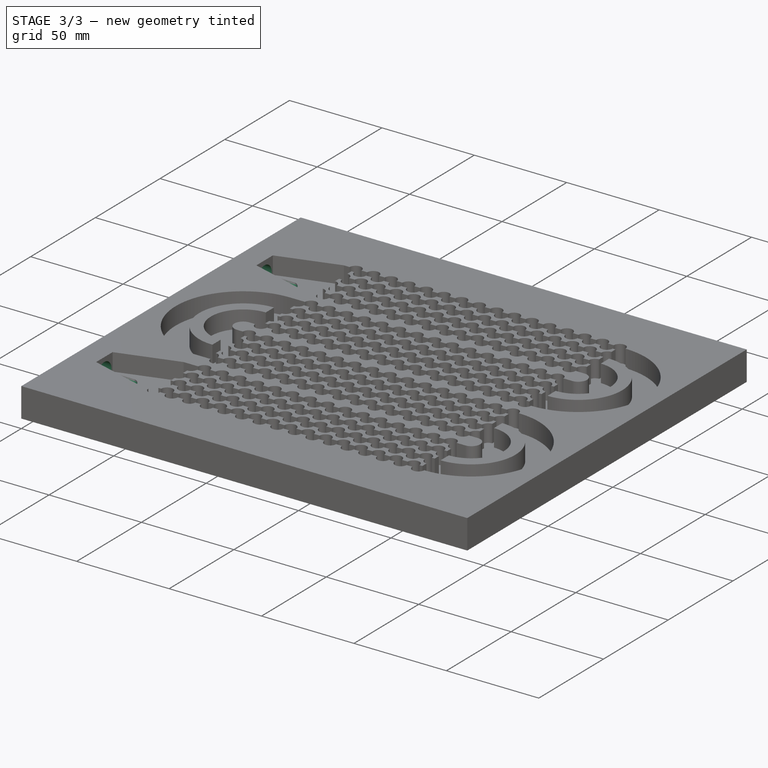
[diagram: stage 3 of 3 — iso view after this stage's code; geometry added in this stage tinted green]
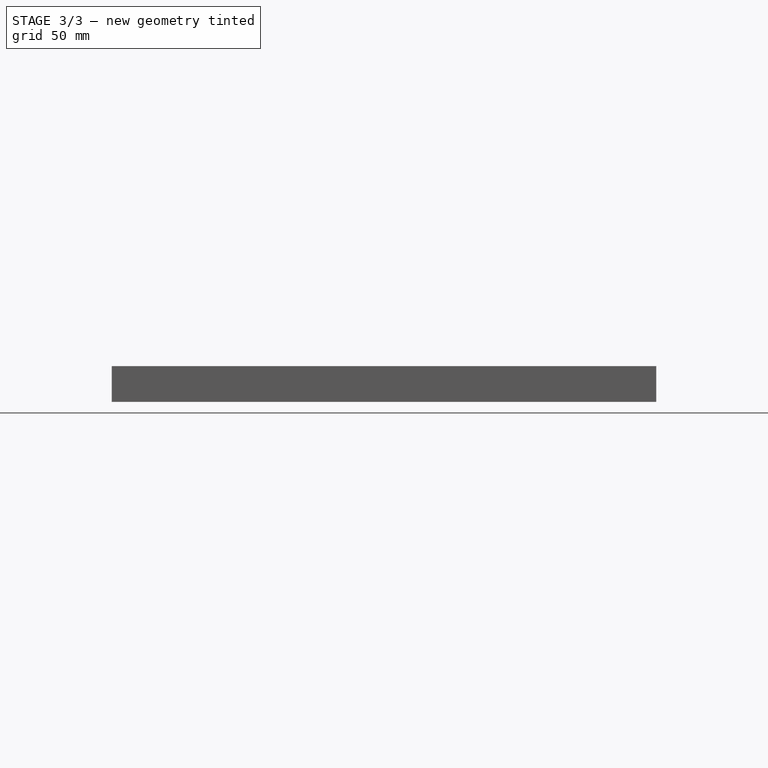
[diagram: stage 3 of 3 — front view after this stage's code; geometry added in this stage tinted green]
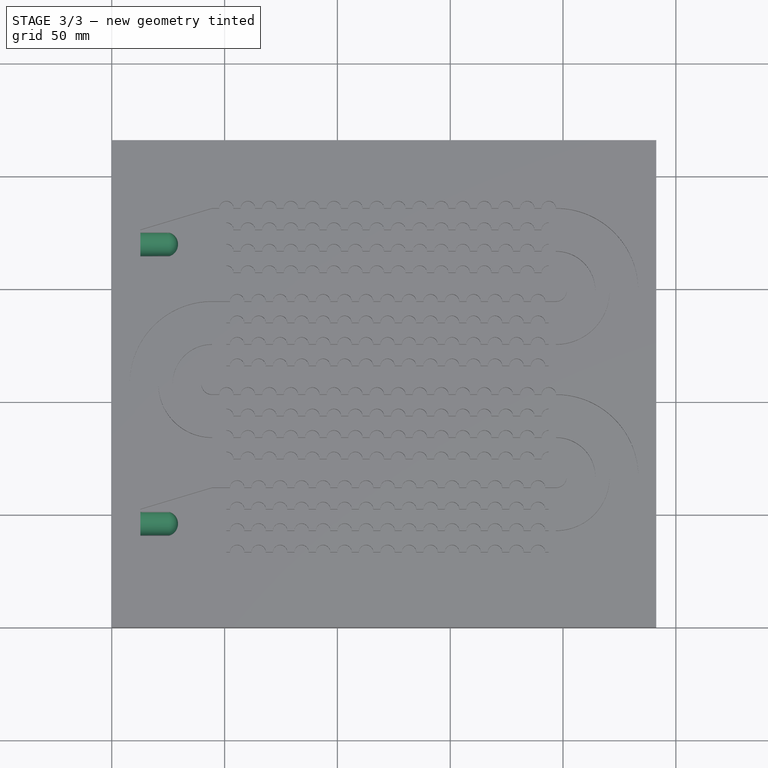
[diagram: stage 3 of 3 — top view after this stage's code; geometry added in this stage tinted green]
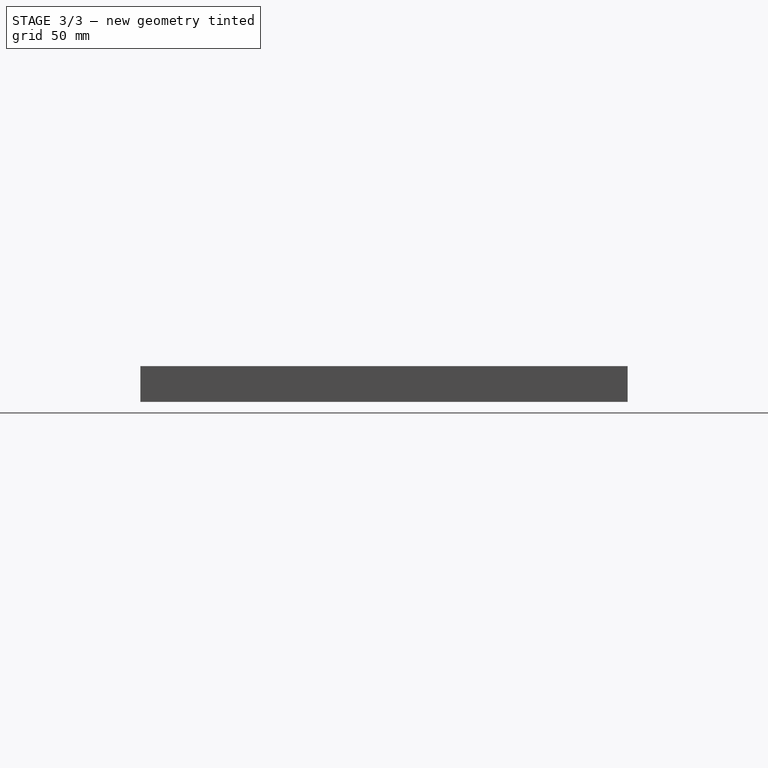
[diagram: stage 3 of 3 — right view after this stage's code; geometry added in this stage tinted green]
FEATURE [Sketcher::SketchObject] Sketch016
  FullyConstrained = true
  MapMode = 5
  Placement = pos=(0,0,0) rot=(0.57735,-0.57735,-0.57735;2.0944rad)
  Support = -> [Pad003]
  sketch-geometry (2):
    g0: Circle CenterX=-46.0375 CenterY=7.9375 CenterZ=0 NormalX=0 NormalY=0 NormalZ=1 AngleXU=0 Radius=5.55625
    g1: Circle CenterX=-169.863 CenterY=7.9375 CenterZ=0 NormalX=0 NormalY=0 NormalZ=1 AngleXU=0 Radius=5.55625
  constraints (6):
    c: DistanceX(g0,g-1) = 46.0375
    c: DistanceX(g1,g-1) = 169.863
    c: DistanceY(g-1,g0) = 7.9375
    c: Horizontal(g0,g1)
    c: Diameter(g0) = 11.1125
    c: Diameter(g1) = 11.1125
FEATURE [PartDesign::Pocket] Pocket001
  BaseFeature = -> Pad003
  Length = 25.4
  Length2 = 99.9998
  Profile = -> Sketch016
  Type = 0
FEATURE [Sketcher::SketchObject] Sketch017
  FullyConstrained = true
  MapMode = 5
  Placement = pos=(0,0,6.35) rot=(0,0,1;0rad)
  Support = -> [Pocket001]
  sketch-geometry (2):
    g0: LineSegment StartX=25.4 StartY=50.8 StartZ=0 EndX=25.4 EndY=41.275 EndZ=0
    g1: LineSegment StartX=25.4 StartY=174.625 StartZ=0 EndX=25.4 EndY=165.1 EndZ=0
  constraints (8):
    c: Vertical(g0)
    c: Vertical(g1)
    c: DistanceY(g1,g1) = 9.525
    c: DistanceY(g0,g0) = 9.525
    c: DistanceY(g-1,g0) = 41.275
    c: DistanceY(g-1,g1) = 165.1
    c: DistanceX(g-1,g0) = 25.4
    c: Vertical(g0,g1)
FEATURE [PartDesign::Groove] Groove
  Angle = 360
  Axis = (0,-1,0)
  Base = (25.4,138.906,6.35)
  BaseFeature = -> Pocket001
  Profile = -> Pocket001 [Face275,Face274]
  ReferenceAxis = -> Pocket001 [Edge821]
FEATURE [PartDesign::Body] Body
  Group = -> [Sketch,Pad,Sketch012,Pocket,Sketch013,Pad001,Sketch014,Pad002,Sketch015,Pad003,Sketch016,Pocket001,Sketch017,Groove]
  Origin = -> Origin
  Tip = -> Groove
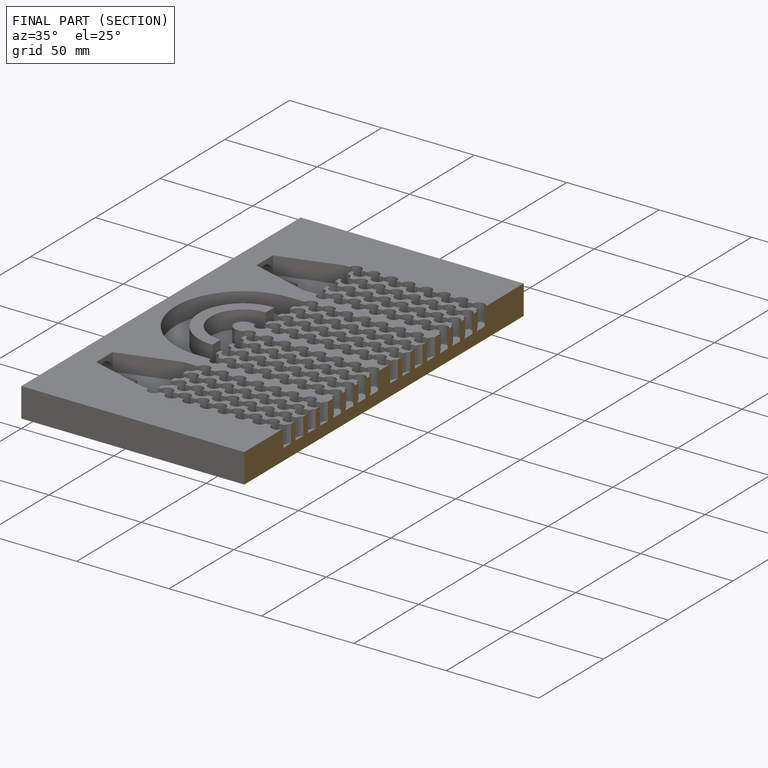
[diagram: finished part — half-section view (interior)]
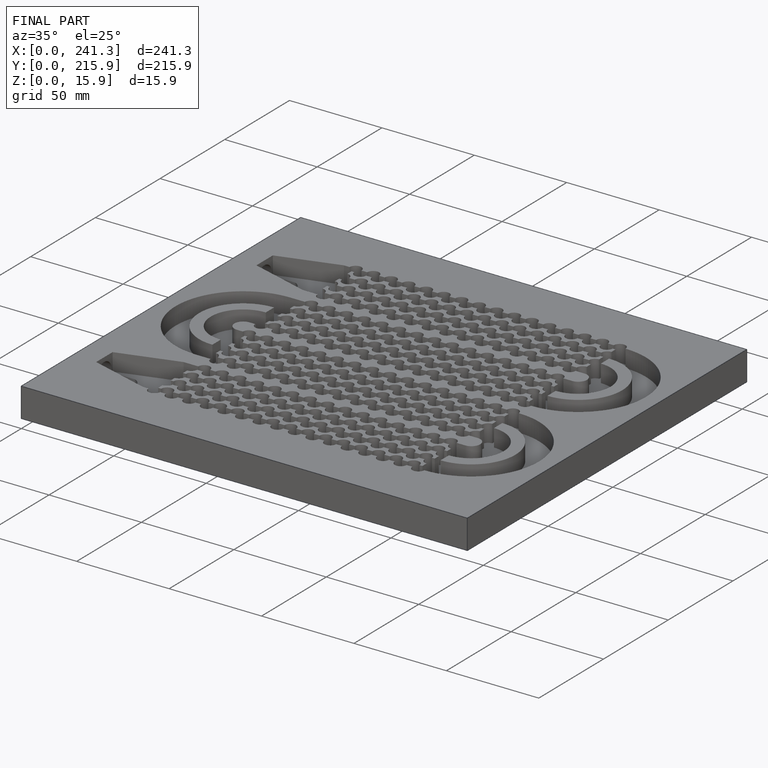
[diagram: finished part — iso view with bounding-box wireframe]
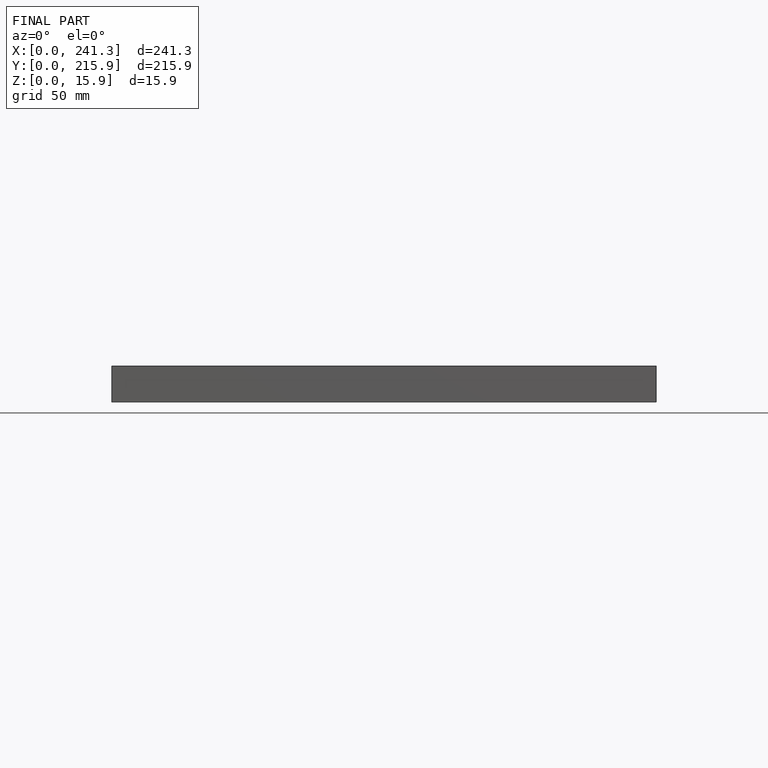
[diagram: finished part — front view with bounding-box wireframe]
